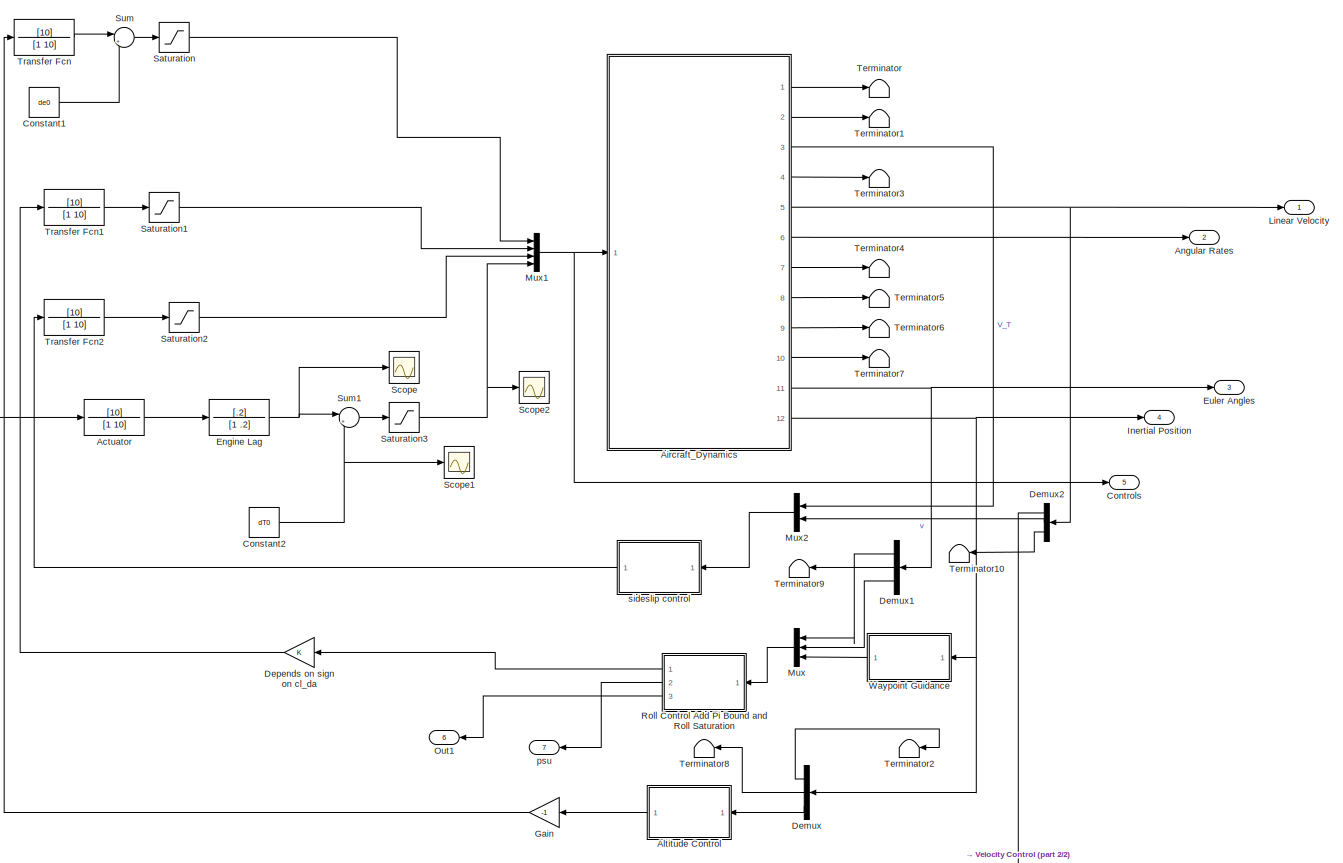
[diagram: root canvas - part 1/2, most of the canvas]
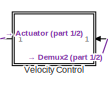
[diagram: root canvas - part 2/2, bottom center region]
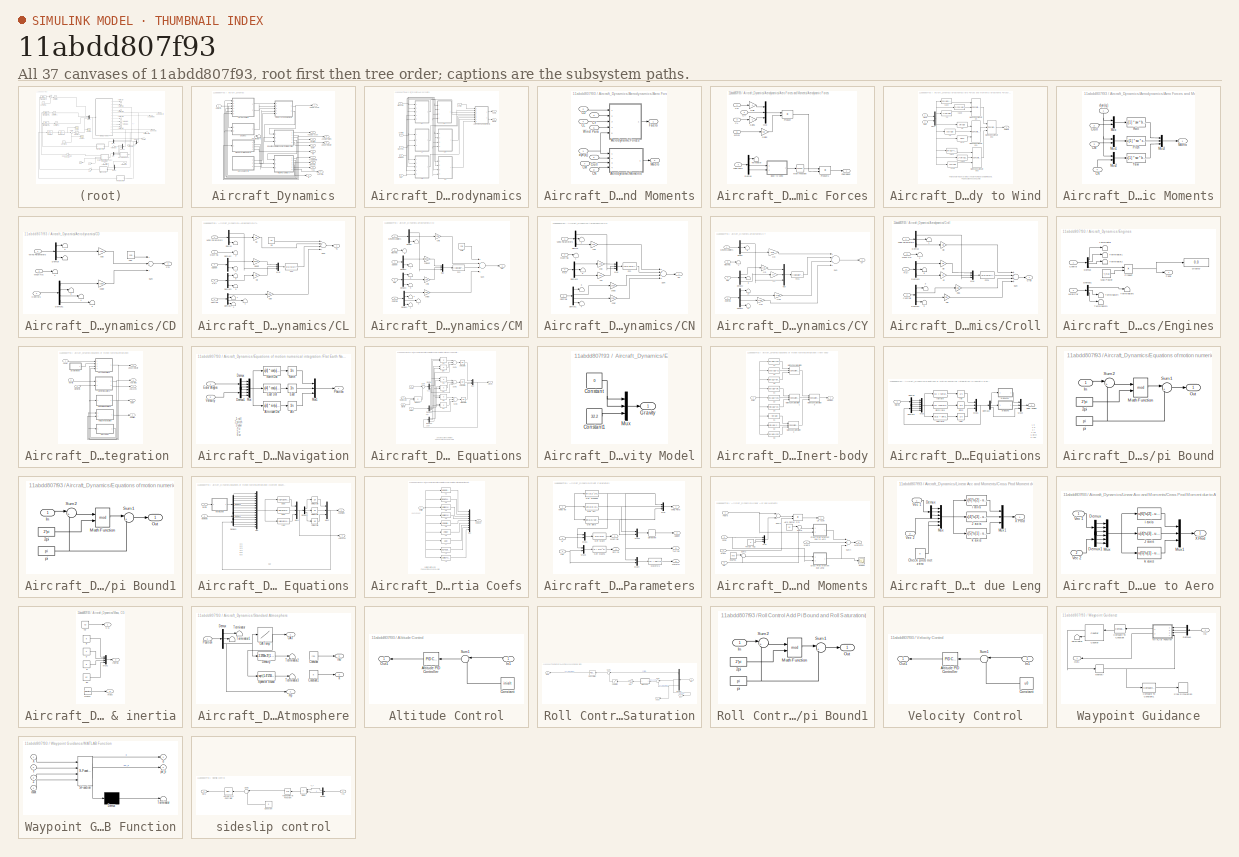
[diagram: thumbnail index - all 37 canvases of the model, root first then tree order]
MODEL slx_11abdd807f93
KIND model
BLOCK [TransferFcn] Actuator
  Denominator = [1 10]
  Numerator = [10]
BLOCK [SubSystem] Aircraft_Dynamics
  FunctionWithSeparateData = off
  MaskHideContents = off
  MinAlgLoopOccurrences = off
  Opaque = off
  Ports = [1, 12]
  PropExecContextOutsideSubsystem = off
  RTWSystemCode = Auto
  RequestExecContextInheritance = off
BLOCK [SubSystem] Aircraft_Dynamics/Aerodynamics
  FunctionWithSeparateData = off
  MaskHideContents = off
  MinAlgLoopOccurrences = off
  Opaque = off
  Ports = [6, 2]
  PropExecContextOutsideSubsystem = off
  RTWSystemCode = Auto
  RequestExecContextInheritance = off
BLOCK [SubSystem] Aircraft_Dynamics/Aerodynamics/Aero Forces and Moments
  FunctionWithSeparateData = off
  MaskHideContents = off
  MinAlgLoopOccurrences = off
  Opaque = off
  Ports = [8, 2]
  PropExecContextOutsideSubsystem = off
  RTWSystemCode = Auto
  RequestExecContextInheritance = off
BLOCK [SubSystem] Aircraft_Dynamics/Aerodynamics/Aero Forces and Moments/Aerodynamic Forces
  FunctionWithSeparateData = off
  MaskHideContents = off
  MinAlgLoopOccurrences = off
  Opaque = off
  Ports = [5, 1]
  PropExecContextOutsideSubsystem = off
  RTWSystemCode = Auto
  RequestExecContextInheritance = off
BLOCK [SubSystem] Aircraft_Dynamics/Aerodynamics/Aero Forces and Moments/Aerodynamic Forces/Body to Wind
  FunctionWithSeparateData = off
  MaskHideContents = off
  MinAlgLoopOccurrences = off
  Opaque = off
  Ports = [2, 1]
  PropExecContextOutsideSubsystem = off
  RTWSystemCode = Auto
  RequestExecContextInheritance = off
BLOCK [Fcn] Aircraft_Dynamics/Aerodynamics/Aero Forces and Moments/Aerodynamic Forces/Body to Wind/-ca sb
  Expr = -1 * cos(u[1]) * sin(u[2])
BLOCK [Fcn] Aircraft_Dynamics/Aerodynamics/Aero Forces and Moments/Aerodynamic Forces/Body to Wind/-sa
  Expr = -1 * sin(u[1])
BLOCK [Fcn] Aircraft_Dynamics/Aerodynamics/Aero Forces and Moments/Aerodynamic Forces/Body to Wind/-sa sb
  Expr = -1 * sin(u[1])  * sin(u[2])
BLOCK [Inport] Aircraft_Dynamics/Aerodynamics/Aero Forces and Moments/Aerodynamic Forces/Body to Wind/Alpha
  IconDisplay = Port number
BLOCK [Inport] Aircraft_Dynamics/Aerodynamics/Aero Forces and Moments/Aerodynamic Forces/Body to Wind/Beta
  IconDisplay = Port number
  Port = 2
BLOCK [Fcn] Aircraft_Dynamics/Aerodynamics/Aero Forces and Moments/Aerodynamic Forces/Body to Wind/Fcn8
  Expr = cos(u[1])
BLOCK [Concatenate] Aircraft_Dynamics/Aerodynamics/Aero Forces and Moments/Aerodynamic Forces/Body to Wind/Matrix Concatenation
  Mode = Multidimensional array
  NumInputs = 3
  Ports = [3, 1]
BLOCK [Concatenate] Aircraft_Dynamics/Aerodynamics/Aero Forces and Moments/Aerodynamic Forces/Body to Wind/Matrix Concatenation1
  Mode = Multidimensional array
  NumInputs = 3
  Ports = [3, 1]
BLOCK [Concatenate] Aircraft_Dynamics/Aerodynamics/Aero Forces and Moments/Aerodynamic Forces/Body to Wind/Matrix Concatenation2
  ConcatenateDimension = 2
  Mode = Multidimensional array
  NumInputs = 3
  Ports = [3, 1]
BLOCK [Concatenate] Aircraft_Dynamics/Aerodynamics/Aero Forces and Moments/Aerodynamic Forces/Body to Wind/Matrix Concatenation3
  Mode = Multidimensional array
  NumInputs = 3
  Ports = [3, 1]
BLOCK [Mux] Aircraft_Dynamics/Aerodynamics/Aero Forces and Moments/Aerodynamic Forces/Body to Wind/Mux1
  DisplayOption = bar
  Inputs = 2
  Ports = [2, 1]
BLOCK [Outport] Aircraft_Dynamics/Aerodynamics/Aero Forces and Moments/Aerodynamic Forces/Body to Wind/Smatrix
  IconDisplay = Port number
BLOCK [Fcn] Aircraft_Dynamics/Aerodynamics/Aero Forces and Moments/Aerodynamic Forces/Body to Wind/ca cb
  Expr = cos(u[1]) *  cos(u[2])
BLOCK [Fcn] Aircraft_Dynamics/Aerodynamics/Aero Forces and Moments/Aerodynamic Forces/Body to Wind/cb
  Expr = cos(u[2])
BLOCK [Fcn] Aircraft_Dynamics/Aerodynamics/Aero Forces and Moments/Aerodynamic Forces/Body to Wind/sa cb
  Expr = sin(u[1]) * cos(u[2])
BLOCK [Fcn] Aircraft_Dynamics/Aerodynamics/Aero Forces and Moments/Aerodynamic Forces/Body to Wind/sb
  Expr = sin(u[2])
BLOCK [Fcn] Aircraft_Dynamics/Aerodynamics/Aero Forces and Moments/Aerodynamic Forces/Body to Wind/zero
  Expr = u[1] * 0
BLOCK [Inport] Aircraft_Dynamics/Aerodynamics/Aero Forces and Moments/Aerodynamic Forces/CD
  IconDisplay = Port number
BLOCK [Inport] Aircraft_Dynamics/Aerodynamics/Aero Forces and Moments/Aerodynamic Forces/CL
  IconDisplay = Port number
  Port = 3
BLOCK [Inport] Aircraft_Dynamics/Aerodynamics/Aero Forces and Moments/Aerodynamic Forces/CY
  IconDisplay = Port number
  Port = 2
BLOCK [Demux] Aircraft_Dynamics/Aerodynamics/Aero Forces and Moments/Aerodynamic Forces/Demux
  Outputs = 3
  Ports = [1, 3]
BLOCK [Outport] Aircraft_Dynamics/Aerodynamics/Aero Forces and Moments/Aerodynamic Forces/FaeroBody
  IconDisplay = Port number
BLOCK [Gain] Aircraft_Dynamics/Aerodynamics/Aero Forces and Moments/Aerodynamic Forces/Gain
  Gain = -1
BLOCK [Gain] Aircraft_Dynamics/Aerodynamics/Aero Forces and Moments/Aerodynamic Forces/Gain1
  Gain = -1
BLOCK [Gain] Aircraft_Dynamics/Aerodynamics/Aero Forces and Moments/Aerodynamic Forces/Gain2
  Gain = sw
BLOCK [Math] Aircraft_Dynamics/Aerodynamics/Aero Forces and Moments/Aerodynamic Forces/Math Function
  Operator = transpose
  Ports = [1, 1]
BLOCK [Mux] Aircraft_Dynamics/Aerodynamics/Aero Forces and Moments/Aerodynamic Forces/Mux
  DisplayOption = bar
  Inputs = 3
  Ports = [3, 1]
BLOCK [Product] Aircraft_Dynamics/Aerodynamics/Aero Forces and Moments/Aerodynamic Forces/Product
  InputSameDT = off
  Ports = [2, 1]
  RndMeth = Floor
BLOCK [Product] Aircraft_Dynamics/Aerodynamics/Aero Forces and Moments/Aerodynamic Forces/Product1
  InputSameDT = off
  Multiplication = Matrix(*)
  Ports = [2, 1]
  RndMeth = Floor
BLOCK [Terminator] Aircraft_Dynamics/Aerodynamics/Aero Forces and Moments/Aerodynamic Forces/Terminator
BLOCK [Inport] Aircraft_Dynamics/Aerodynamics/Aero Forces and Moments/Aerodynamic Forces/Wind Para
  IconDisplay = Port number
  Port = 4
BLOCK [Inport] Aircraft_Dynamics/Aerodynamics/Aero Forces and Moments/Aerodynamic Forces/dyn(q)
  IconDisplay = Port number
  Port = 5
BLOCK [SubSystem] Aircraft_Dynamics/Aerodynamics/Aero Forces and Moments/Aerodynamic Moments
  FunctionWithSeparateData = off
  MaskHideContents = off
  MinAlgLoopOccurrences = off
  Opaque = off
  Ports = [4, 1]
  PropExecContextOutsideSubsystem = off
  RTWSystemCode = Auto
  RequestExecContextInheritance = off
BLOCK [Inport] Aircraft_Dynamics/Aerodynamics/Aero Forces and Moments/Aerodynamic Moments/CM
  IconDisplay = Port number
  Port = 3
BLOCK [Inport] Aircraft_Dynamics/Aerodynamics/Aero Forces and Moments/Aerodynamic Moments/CN
  IconDisplay = Port number
  Port = 4
BLOCK [Inport] Aircraft_Dynamics/Aerodynamics/Aero Forces and Moments/Aerodynamic Moments/Croll
  IconDisplay = Port number
  Port = 2
BLOCK [Outport] Aircraft_Dynamics/Aerodynamics/Aero Forces and Moments/Aerodynamic Moments/Maero
  IconDisplay = Port number
BLOCK [Mux] Aircraft_Dynamics/Aerodynamics/Aero Forces and Moments/Aerodynamic Moments/Mux
  DisplayOption = bar
  Inputs = 2
  Ports = [2, 1]
BLOCK [Mux] Aircraft_Dynamics/Aerodynamics/Aero Forces and Moments/Aerodynamic Moments/Mux1
  DisplayOption = bar
  Inputs = 2
  Ports = [2, 1]
BLOCK [Mux] Aircraft_Dynamics/Aerodynamics/Aero Forces and Moments/Aerodynamic Moments/Mux2
  DisplayOption = bar
  Inputs = 2
  Ports = [2, 1]
BLOCK [Mux] Aircraft_Dynamics/Aerodynamics/Aero Forces and Moments/Aerodynamic Moments/Mux3
  DisplayOption = bar
  Inputs = 3
  Ports = [3, 1]
BLOCK [Fcn] Aircraft_Dynamics/Aerodynamics/Aero Forces and Moments/Aerodynamic Moments/Pitch
  Expr = u[1] * sw * cbar * u[2]
BLOCK [Fcn] Aircraft_Dynamics/Aerodynamics/Aero Forces and Moments/Aerodynamic Moments/Roll
  Expr = u[1] * sw * b * u[2]
BLOCK [Fcn] Aircraft_Dynamics/Aerodynamics/Aero Forces and Moments/Aerodynamic Moments/Yaw
  Expr = u[1] * sw * b * u[2]
BLOCK [Inport] Aircraft_Dynamics/Aerodynamics/Aero Forces and Moments/Aerodynamic Moments/dyn(q)
  IconDisplay = Port number
BLOCK [Inport] Aircraft_Dynamics/Aerodynamics/Aero Forces and Moments/CD
  IconDisplay = Port number
  Port = 2
BLOCK [Inport] Aircraft_Dynamics/Aerodynamics/Aero Forces and Moments/CL
  IconDisplay = Port number
  Port = 4
BLOCK [Inport] Aircraft_Dynamics/Aerodynamics/Aero Forces and Moments/CM
  IconDisplay = Port number
  Port = 7
BLOCK [Inport] Aircraft_Dynamics/Aerodynamics/Aero Forces and Moments/CN
  IconDisplay = Port number
  Port = 8
BLOCK [Inport] Aircraft_Dynamics/Aerodynamics/Aero Forces and Moments/CY
  IconDisplay = Port number
  Port = 3
BLOCK [Inport] Aircraft_Dynamics/Aerodynamics/Aero Forces and Moments/Croll
  IconDisplay = Port number
  Port = 6
BLOCK [Outport] Aircraft_Dynamics/Aerodynamics/Aero Forces and Moments/Faero
  IconDisplay = Port number
BLOCK [Outport] Aircraft_Dynamics/Aerodynamics/Aero Forces and Moments/Maero
  IconDisplay = Port number
  Port = 2
BLOCK [Inport] Aircraft_Dynamics/Aerodynamics/Aero Forces and Moments/Wind Para
  IconDisplay = Port number
  Port = 5
BLOCK [Inport] Aircraft_Dynamics/Aerodynamics/Aero Forces and Moments/dyn(q)
  IconDisplay = Port number
BLOCK [SubSystem] Aircraft_Dynamics/Aerodynamics/CD
  FunctionWithSeparateData = off
  MaskHideContents = off
  MinAlgLoopOccurrences = off
  Opaque = off
  Ports = [3, 1]
  PropExecContextOutsideSubsystem = off
  RTWSystemCode = Auto
  RequestExecContextInheritance = off
BLOCK [Terminator] Aircraft_Dynamics/Aerodynamics/CD/   
BLOCK [Terminator] Aircraft_Dynamics/Aerodynamics/CD/   1
BLOCK [Terminator] Aircraft_Dynamics/Aerodynamics/CD/   2
BLOCK [Terminator] Aircraft_Dynamics/Aerodynamics/CD/   3
BLOCK [Terminator] Aircraft_Dynamics/Aerodynamics/CD/   4
BLOCK [Terminator] Aircraft_Dynamics/Aerodynamics/CD/   5
BLOCK [Outport] Aircraft_Dynamics/Aerodynamics/CD/CD
  IconDisplay = Port number
BLOCK [Inport] Aircraft_Dynamics/Aerodynamics/CD/Controls
  IconDisplay = Port number
  Port = 2
BLOCK [Demux] Aircraft_Dynamics/Aerodynamics/CD/Demux
  Outputs = 3
  Ports = [1, 3]
BLOCK [Demux] Aircraft_Dynamics/Aerodynamics/CD/Demux1
  Ports = [1, 4]
BLOCK [Inport] Aircraft_Dynamics/Aerodynamics/CD/Mach No.
  IconDisplay = Port number
  Port = 3
BLOCK [Sum] Aircraft_Dynamics/Aerodynamics/CD/Sum
  InputSameDT = off
  Inputs = +++
  OutDataTypeStr = Inherit: Inherit via internal rule
  Ports = [3, 1]
BLOCK [Inport] Aircraft_Dynamics/Aerodynamics/CD/Wind Parameters
  IconDisplay = Port number
BLOCK [Gain] Aircraft_Dynamics/Aerodynamics/CD/cda
  Gain = cda
BLOCK [Gain] Aircraft_Dynamics/Aerodynamics/CD/cdde
  Gain = cdde
BLOCK [Constant] Aircraft_Dynamics/Aerodynamics/CD/cdo
  Value = cdo
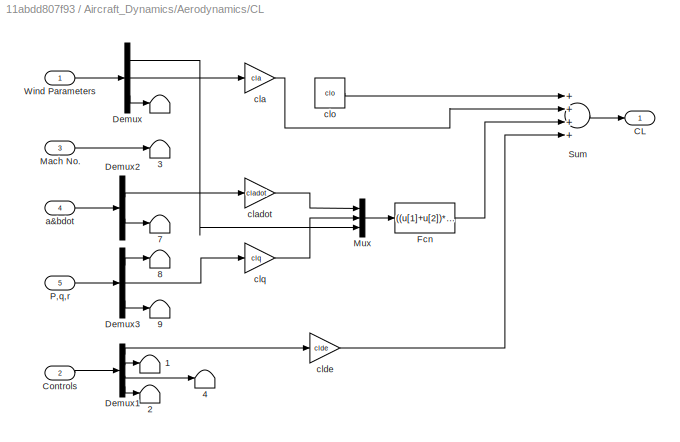
BLOCK [SubSystem] Aircraft_Dynamics/Aerodynamics/CL
  FunctionWithSeparateData = off
  MaskHideContents = off
  MinAlgLoopOccurrences = off
  Opaque = off
  Ports = [5, 1]
  PropExecContextOutsideSubsystem = off
  RTWSystemCode = Auto
  RequestExecContextInheritance = off
BLOCK [Terminator] Aircraft_Dynamics/Aerodynamics/CL/   
BLOCK [Terminator] Aircraft_Dynamics/Aerodynamics/CL/   1
BLOCK [Terminator] Aircraft_Dynamics/Aerodynamics/CL/   2
BLOCK [Terminator] Aircraft_Dynamics/Aerodynamics/CL/   3
BLOCK [Terminator] Aircraft_Dynamics/Aerodynamics/CL/   4
BLOCK [Terminator] Aircraft_Dynamics/Aerodynamics/CL/   7
BLOCK [Terminator] Aircraft_Dynamics/Aerodynamics/CL/   8
BLOCK [Terminator] Aircraft_Dynamics/Aerodynamics/CL/   9
BLOCK [Outport] Aircraft_Dynamics/Aerodynamics/CL/CL
  IconDisplay = Port number
BLOCK [Inport] Aircraft_Dynamics/Aerodynamics/CL/Controls
  IconDisplay = Port number
  Port = 2
BLOCK [Demux] Aircraft_Dynamics/Aerodynamics/CL/Demux
  Outputs = 3
  Ports = [1, 3]
BLOCK [Demux] Aircraft_Dynamics/Aerodynamics/CL/Demux1
  Ports = [1, 4]
BLOCK [Demux] Aircraft_Dynamics/Aerodynamics/CL/Demux2
  Outputs = 2
  Ports = [1, 2]
BLOCK [Demux] Aircraft_Dynamics/Aerodynamics/CL/Demux3
  Outputs = 3
  Ports = [1, 3]
BLOCK [Fcn] Aircraft_Dynamics/Aerodynamics/CL/Fcn
  Expr = ((u[1]+u[2])*cbar)/(2*u[3])
BLOCK [Inport] Aircraft_Dynamics/Aerodynamics/CL/Mach No.
  IconDisplay = Port number
  Port = 3
BLOCK [Mux] Aircraft_Dynamics/Aerodynamics/CL/Mux
  DisplayOption = bar
  Inputs = 3
  Ports = [3, 1]
BLOCK [Inport] Aircraft_Dynamics/Aerodynamics/CL/P,q,r
  IconDisplay = Port number
  Port = 5
BLOCK [Sum] Aircraft_Dynamics/Aerodynamics/CL/Sum
  InputSameDT = off
  Inputs = ++++
  OutDataTypeStr = Inherit: Inherit via internal rule
  Ports = [4, 1]
BLOCK [Inport] Aircraft_Dynamics/Aerodynamics/CL/Wind Parameters
  IconDisplay = Port number
BLOCK [Inport] Aircraft_Dynamics/Aerodynamics/CL/a&bdot
  IconDisplay = Port number
  Port = 4
BLOCK [Gain] Aircraft_Dynamics/Aerodynamics/CL/cla
  Gain = cla
BLOCK [Gain] Aircraft_Dynamics/Aerodynamics/CL/cladot
  Gain = cladot
BLOCK [Gain] Aircraft_Dynamics/Aerodynamics/CL/clde
  Gain = clde
BLOCK [Constant] Aircraft_Dynamics/Aerodynamics/CL/clo
  Value = clo
BLOCK [Gain] Aircraft_Dynamics/Aerodynamics/CL/clq
  Gain = clq
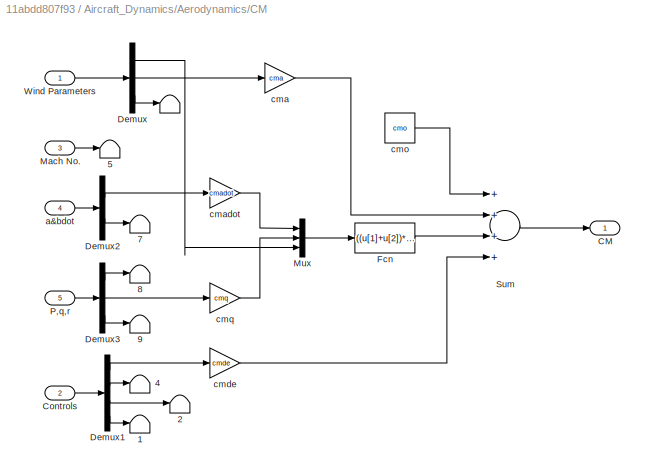
BLOCK [SubSystem] Aircraft_Dynamics/Aerodynamics/CM
  FunctionWithSeparateData = off
  MaskHideContents = off
  MinAlgLoopOccurrences = off
  Opaque = off
  Ports = [5, 1]
  PropExecContextOutsideSubsystem = off
  RTWSystemCode = Auto
  RequestExecContextInheritance = off
BLOCK [Terminator] Aircraft_Dynamics/Aerodynamics/CM/   
BLOCK [Terminator] Aircraft_Dynamics/Aerodynamics/CM/   1
BLOCK [Terminator] Aircraft_Dynamics/Aerodynamics/CM/   2
BLOCK [Terminator] Aircraft_Dynamics/Aerodynamics/CM/   4
BLOCK [Terminator] Aircraft_Dynamics/Aerodynamics/CM/   5
BLOCK [Terminator] Aircraft_Dynamics/Aerodynamics/CM/   7
BLOCK [Terminator] Aircraft_Dynamics/Aerodynamics/CM/   8
BLOCK [Terminator] Aircraft_Dynamics/Aerodynamics/CM/   9
BLOCK [Outport] Aircraft_Dynamics/Aerodynamics/CM/CM
  IconDisplay = Port number
BLOCK [Inport] Aircraft_Dynamics/Aerodynamics/CM/Controls
  IconDisplay = Port number
  Port = 2
BLOCK [Demux] Aircraft_Dynamics/Aerodynamics/CM/Demux
  Outputs = 3
  Ports = [1, 3]
BLOCK [Demux] Aircraft_Dynamics/Aerodynamics/CM/Demux1
  Ports = [1, 4]
BLOCK [Demux] Aircraft_Dynamics/Aerodynamics/CM/Demux2
  Outputs = 2
  Ports = [1, 2]
BLOCK [Demux] Aircraft_Dynamics/Aerodynamics/CM/Demux3
  Outputs = 3
  Ports = [1, 3]
BLOCK [Fcn] Aircraft_Dynamics/Aerodynamics/CM/Fcn
  Expr = ((u[1]+u[2])*cbar)/(2*u[3])
BLOCK [Inport] Aircraft_Dynamics/Aerodynamics/CM/Mach No.
  IconDisplay = Port number
  Port = 3
BLOCK [Mux] Aircraft_Dynamics/Aerodynamics/CM/Mux
  DisplayOption = bar
  Inputs = 3
  Ports = [3, 1]
BLOCK [Inport] Aircraft_Dynamics/Aerodynamics/CM/P,q,r
  IconDisplay = Port number
  Port = 5
BLOCK [Sum] Aircraft_Dynamics/Aerodynamics/CM/Sum
  InputSameDT = off
  Inputs = ++++
  OutDataTypeStr = Inherit: Inherit via internal rule
  Ports = [4, 1]
BLOCK [Inport] Aircraft_Dynamics/Aerodynamics/CM/Wind Parameters
  IconDisplay = Port number
BLOCK [Inport] Aircraft_Dynamics/Aerodynamics/CM/a&bdot
  IconDisplay = Port number
  Port = 4
BLOCK [Gain] Aircraft_Dynamics/Aerodynamics/CM/cma
  Gain = cma
BLOCK [Gain] Aircraft_Dynamics/Aerodynamics/CM/cmadot
  Gain = cmadot
BLOCK [Gain] Aircraft_Dynamics/Aerodynamics/CM/cmde
  Gain = cmde
BLOCK [Constant] Aircraft_Dynamics/Aerodynamics/CM/cmo
  Value = cmo
BLOCK [Gain] Aircraft_Dynamics/Aerodynamics/CM/cmq
  Gain = cmq
BLOCK [SubSystem] Aircraft_Dynamics/Aerodynamics/CN
  FunctionWithSeparateData = off
  MaskHideContents = off
  MinAlgLoopOccurrences = off
  Opaque = off
  Ports = [4, 1]
  PropExecContextOutsideSubsystem = off
  RTWSystemCode = Auto
  RequestExecContextInheritance = off
BLOCK [Terminator] Aircraft_Dynamics/Aerodynamics/CN/   1
BLOCK [Terminator] Aircraft_Dynamics/Aerodynamics/CN/   2
BLOCK [Terminator] Aircraft_Dynamics/Aerodynamics/CN/   3
BLOCK [Terminator] Aircraft_Dynamics/Aerodynamics/CN/   4
BLOCK [Terminator] Aircraft_Dynamics/Aerodynamics/CN/   8
BLOCK [Outport] Aircraft_Dynamics/Aerodynamics/CN/CN
  IconDisplay = Port number
BLOCK [Inport] Aircraft_Dynamics/Aerodynamics/CN/Controls
  IconDisplay = Port number
  Port = 2
BLOCK [Demux] Aircraft_Dynamics/Aerodynamics/CN/Demux
  Outputs = 3
  Ports = [1, 3]
BLOCK [Demux] Aircraft_Dynamics/Aerodynamics/CN/Demux1
  Ports = [1, 4]
BLOCK [Demux] Aircraft_Dynamics/Aerodynamics/CN/Demux3
  Outputs = 3
  Ports = [1, 3]
BLOCK [Fcn] Aircraft_Dynamics/Aerodynamics/CN/Fcn
  Expr = ((u[1]+u[2])*b)/(2*u[3])
BLOCK [Inport] Aircraft_Dynamics/Aerodynamics/CN/Mach No.
  IconDisplay = Port number
  Port = 3
BLOCK [Mux] Aircraft_Dynamics/Aerodynamics/CN/Mux
  DisplayOption = bar
  Inputs = 3
  Ports = [3, 1]
BLOCK [Inport] Aircraft_Dynamics/Aerodynamics/CN/P,q,r
  IconDisplay = Port number
  Port = 4
BLOCK [Sum] Aircraft_Dynamics/Aerodynamics/CN/Sum
  InputSameDT = off
  Inputs = ++++
  OutDataTypeStr = Inherit: Inherit via internal rule
  Ports = [4, 1]
BLOCK [Inport] Aircraft_Dynamics/Aerodynamics/CN/Wind Parameters
  IconDisplay = Port number
BLOCK [Gain] Aircraft_Dynamics/Aerodynamics/CN/cnb
  Gain = cnb
BLOCK [Gain] Aircraft_Dynamics/Aerodynamics/CN/cnda
  Gain = cnda
BLOCK [Gain] Aircraft_Dynamics/Aerodynamics/CN/cndr
  Gain = cndr
BLOCK [Gain] Aircraft_Dynamics/Aerodynamics/CN/cnp
  Gain = cnp
BLOCK [Gain] Aircraft_Dynamics/Aerodynamics/CN/cnr
  Gain = cnr
BLOCK [SubSystem] Aircraft_Dynamics/Aerodynamics/CY
  FunctionWithSeparateData = off
  MaskHideContents = off
  MinAlgLoopOccurrences = off
  Opaque = off
  Ports = [4, 1]
  PropExecContextOutsideSubsystem = off
  RTWSystemCode = Auto
  RequestExecContextInheritance = off
BLOCK [Terminator] Aircraft_Dynamics/Aerodynamics/CY/   10
BLOCK [Terminator] Aircraft_Dynamics/Aerodynamics/CY/   11
BLOCK [Terminator] Aircraft_Dynamics/Aerodynamics/CY/   2
BLOCK [Terminator] Aircraft_Dynamics/Aerodynamics/CY/   8
BLOCK [Terminator] Aircraft_Dynamics/Aerodynamics/CY/   9
BLOCK [Outport] Aircraft_Dynamics/Aerodynamics/CY/CY
  IconDisplay = Port number
BLOCK [Inport] Aircraft_Dynamics/Aerodynamics/CY/Controls
  IconDisplay = Port number
  Port = 2
BLOCK [Demux] Aircraft_Dynamics/Aerodynamics/CY/Demux
  Outputs = 3
  Ports = [1, 3]
BLOCK [Demux] Aircraft_Dynamics/Aerodynamics/CY/Demux1
  Ports = [1, 4]
BLOCK [Demux] Aircraft_Dynamics/Aerodynamics/CY/Demux2
  Outputs = 3
  Ports = [1, 3]
BLOCK [Fcn] Aircraft_Dynamics/Aerodynamics/CY/Fcn1
  Expr = ((u[1]+u[2])*b)/(2*u[3])
BLOCK [Inport] Aircraft_Dynamics/Aerodynamics/CY/Mach No.
  IconDisplay = Port number
  Port = 3
BLOCK [Mux] Aircraft_Dynamics/Aerodynamics/CY/Mux
  DisplayOption = bar
  Inputs = 3
  Ports = [3, 1]
BLOCK [Inport] Aircraft_Dynamics/Aerodynamics/CY/P,q,r
  IconDisplay = Port number
  Port = 4
BLOCK [Sum] Aircraft_Dynamics/Aerodynamics/CY/Sum
  InputSameDT = off
  Inputs = ++++
  OutDataTypeStr = Inherit: Inherit via internal rule
  Ports = [4, 1]
BLOCK [Inport] Aircraft_Dynamics/Aerodynamics/CY/Wind Parameters
  IconDisplay = Port number
BLOCK [Gain] Aircraft_Dynamics/Aerodynamics/CY/cyb
  Gain = cyb
BLOCK [Gain] Aircraft_Dynamics/Aerodynamics/CY/cyda
  Gain = cyda
BLOCK [Gain] Aircraft_Dynamics/Aerodynamics/CY/cydr
  Gain = cydr
BLOCK [Gain] Aircraft_Dynamics/Aerodynamics/CY/cyp
  Gain = cyp
BLOCK [Gain] Aircraft_Dynamics/Aerodynamics/CY/cyr
  Gain = cyr
BLOCK [Inport] Aircraft_Dynamics/Aerodynamics/Controls
  IconDisplay = Port number
  Port = 3
BLOCK [SubSystem] Aircraft_Dynamics/Aerodynamics/Croll
  FunctionWithSeparateData = off
  MaskHideContents = off
  MinAlgLoopOccurrences = off
  Opaque = off
  Ports = [4, 1]
  PropExecContextOutsideSubsystem = off
  RTWSystemCode = Auto
  RequestExecContextInheritance = off
BLOCK [Terminator] Aircraft_Dynamics/Aerodynamics/Croll/   1
BLOCK [Terminator] Aircraft_Dynamics/Aerodynamics/Croll/   2
BLOCK [Terminator] Aircraft_Dynamics/Aerodynamics/Croll/   3
BLOCK [Terminator] Aircraft_Dynamics/Aerodynamics/Croll/   6
BLOCK [Terminator] Aircraft_Dynamics/Aerodynamics/Croll/   8
BLOCK [Inport] Aircraft_Dynamics/Aerodynamics/Croll/Controls
  IconDisplay = Port number
  Port = 2
BLOCK [Outport] Aircraft_Dynamics/Aerodynamics/Croll/Croll
  IconDisplay = Port number
BLOCK [Demux] Aircraft_Dynamics/Aerodynamics/Croll/Demux
  Outputs = 3
  Ports = [1, 3]
BLOCK [Demux] Aircraft_Dynamics/Aerodynamics/Croll/Demux1
  Ports = [1, 4]
BLOCK [Demux] Aircraft_Dynamics/Aerodynamics/Croll/Demux3
  Outputs = 3
  Ports = [1, 3]
BLOCK [Fcn] Aircraft_Dynamics/Aerodynamics/Croll/Fcn1
  Expr = ((u[1]+u[2])*b)/(2*u[3])
BLOCK [Inport] Aircraft_Dynamics/Aerodynamics/Croll/Mach No.
  IconDisplay = Port number
  Port = 3
BLOCK [Mux] Aircraft_Dynamics/Aerodynamics/Croll/Mux
  DisplayOption = bar
  Inputs = 3
  Ports = [3, 1]
BLOCK [Inport] Aircraft_Dynamics/Aerodynamics/Croll/P,q,r
  IconDisplay = Port number
  Port = 4
BLOCK [Sum] Aircraft_Dynamics/Aerodynamics/Croll/Sum
  InputSameDT = off
  Inputs = ++++
  OutDataTypeStr = Inherit: Inherit via internal rule
  Ports = [4, 1]
BLOCK [Inport] Aircraft_Dynamics/Aerodynamics/Croll/Wind Parameters
  IconDisplay = Port number
BLOCK [Gain] Aircraft_Dynamics/Aerodynamics/Croll/clb
  Gain = clb
BLOCK [Gain] Aircraft_Dynamics/Aerodynamics/Croll/clda
  Gain = clda
BLOCK [Gain] Aircraft_Dynamics/Aerodynamics/Croll/cldr
  Gain = cldr
BLOCK [Gain] Aircraft_Dynamics/Aerodynamics/Croll/clp
  Gain = clp
BLOCK [Gain] Aircraft_Dynamics/Aerodynamics/Croll/clr
  Gain = clr
BLOCK [Outport] Aircraft_Dynamics/Aerodynamics/Faero
  IconDisplay = Port number
BLOCK [Inport] Aircraft_Dynamics/Aerodynamics/Mach No.
  IconDisplay = Port number
  Port = 4
BLOCK [Outport] Aircraft_Dynamics/Aerodynamics/Maero
  IconDisplay = Port number
  Port = 2
BLOCK [Inport] Aircraft_Dynamics/Aerodynamics/Wind Para
  IconDisplay = Port number
BLOCK [Inport] Aircraft_Dynamics/Aerodynamics/a&bdot
  IconDisplay = Port number
  Port = 5
BLOCK [Inport] Aircraft_Dynamics/Aerodynamics/dyn(q)
  IconDisplay = Port number
  Port = 2
BLOCK [Inport] Aircraft_Dynamics/Aerodynamics/p,q,r
  IconDisplay = Port number
  Port = 6
BLOCK [Outport] Aircraft_Dynamics/Angular Accel
  IconDisplay = Port number
BLOCK [Outport] Aircraft_Dynamics/Angular Rates
  IconDisplay = Port number
  Port = 6
BLOCK [Outport] Aircraft_Dynamics/CAS (Kts)
  IconDisplay = Port number
  Port = 10
BLOCK [Inport] Aircraft_Dynamics/Control
  IconDisplay = Port number
BLOCK [SubSystem] Aircraft_Dynamics/Engines
  FunctionWithSeparateData = off
  MaskHideContents = off
  MinAlgLoopOccurrences = off
  Opaque = off
  Ports = [2, 1]
  PropExecContextOutsideSubsystem = off
  RTWSystemCode = Auto
  RequestExecContextInheritance = off
BLOCK [Inport] Aircraft_Dynamics/Engines/Control
  IconDisplay = Port number
BLOCK [Demux] Aircraft_Dynamics/Engines/Demux
  DisplayOption = bar
  Ports = [1, 4]
BLOCK [Demux] Aircraft_Dynamics/Engines/Demux1
  DisplayOption = bar
  Outputs = 3
  Ports = [1, 3]
BLOCK [Display] Aircraft_Dynamics/Engines/Display
  Decimation = 1
  Ports = [1]
BLOCK [Outport] Aircraft_Dynamics/Engines/Feng
  IconDisplay = Port number
BLOCK [Constant] Aircraft_Dynamics/Engines/Max Power
  Value = T_max
BLOCK [Product] Aircraft_Dynamics/Engines/Product
  InputSameDT = off
  OutDataTypeStr = Inherit: Inherit via internal rule
  Ports = [2, 1]
  SaturateOnIntegerOverflow = off
BLOCK [Terminator] Aircraft_Dynamics/Engines/Terminator
BLOCK [Terminator] Aircraft_Dynamics/Engines/Terminator1
BLOCK [Terminator] Aircraft_Dynamics/Engines/Terminator2
BLOCK [Terminator] Aircraft_Dynamics/Engines/Terminator3
BLOCK [Terminator] Aircraft_Dynamics/Engines/Terminator4
BLOCK [Terminator] Aircraft_Dynamics/Engines/Terminator5
BLOCK [Inport] Aircraft_Dynamics/Engines/Wind Par
  IconDisplay = Port number
  Port = 2
BLOCK [SubSystem] Aircraft_Dynamics/Equations of motion numerical integration 
  FunctionWithSeparateData = off
  MaskHideContents = off
  MinAlgLoopOccurrences = off
  Opaque = off
  Ports = [3, 5]
  PropExecContextOutsideSubsystem = off
  RTWSystemCode = Auto
  RequestExecContextInheritance = off
BLOCK [Inport] Aircraft_Dynamics/Equations of motion numerical integration /Accel
  IconDisplay = Port number
BLOCK [Outport] Aircraft_Dynamics/Equations of motion numerical integration /Ang Accel
  IconDisplay = Port number
BLOCK [Outport] Aircraft_Dynamics/Equations of motion numerical integration /Ang rates
  IconDisplay = Port number
  Port = 3
BLOCK [Outport] Aircraft_Dynamics/Equations of motion numerical integration /Euler
  IconDisplay = Port number
  Port = 5
BLOCK [SubSystem] Aircraft_Dynamics/Equations of motion numerical integration /Flat Earth Navigation
  FunctionWithSeparateData = off
  MaskHideContents = off
  MinAlgLoopOccurrences = off
  Opaque = off
  Ports = [2, 1]
  PropExecContextOutsideSubsystem = off
  RTWSystemCode = Auto
  RequestExecContextInheritance = off
BLOCK [Integrator] Aircraft_Dynamics/Equations of motion numerical integration /Flat Earth Navigation/Alt
  InitialCondition = initalt
  Ports = [1, 1]
BLOCK [Fcn] Aircraft_Dynamics/Equations of motion numerical integration /Flat Earth Navigation/Alttitude Dot
  Expr = u[4] * sin(u[2]) - u[5] * sin(u[1]) * cos(u[2]) - u[6] * cos(u[1]) * cos(u[2])
BLOCK [Demux] Aircraft_Dynamics/Equations of motion numerical integration /Flat Earth Navigation/Demux
  Outputs = 3
  Ports = [1, 3]
BLOCK [Demux] Aircraft_Dynamics/Equations of motion numerical integration /Flat Earth Navigation/Demux1
  Outputs = 3
  Ports = [1, 3]
BLOCK [Integrator] Aircraft_Dynamics/Equations of motion numerical integration /Flat Earth Navigation/East
  InitialCondition = initeast
  Ports = [1, 1]
BLOCK [Fcn] Aircraft_Dynamics/Equations of motion numerical integration /Flat Earth Navigation/East Dot
  Expr = u[4] * cos(u[2])* sin(u[3]) + u[5] * (cos(u[1])*cos(u[3]) + sin(u[1])*sin(u[2])*sin(u[3])) + u[6] * (-sin(u[1])*cos(u[3])+cos(u[1])*sin(u[2])*sin(u[3]))
BLOCK [Inport] Aircraft_Dynamics/Equations of motion numerical integration /Flat Earth Navigation/Euler Angles
  IconDisplay = Port number
BLOCK [Mux] Aircraft_Dynamics/Equations of motion numerical integration /Flat Earth Navigation/Mux
  DisplayOption = bar
  Inputs = 6
  Ports = [6, 1]
BLOCK [Mux] Aircraft_Dynamics/Equations of motion numerical integration /Flat Earth Navigation/Mux1
  DisplayOption = bar
  Inputs = 3
  Ports = [3, 1]
BLOCK [Integrator] Aircraft_Dynamics/Equations of motion numerical integration /Flat Earth Navigation/North
  InitialCondition = initnorth
  Ports = [1, 1]
BLOCK [Fcn] Aircraft_Dynamics/Equations of motion numerical integration /Flat Earth Navigation/North Dot
  Expr = u[4] * cos(u[2]) * cos(u[3]) + u[5]*(-cos(u[1])*sin(u[3])+sin(u[1])*sin(u[2])*sin(u[3]))+u[6]*(sin(u[1])*sin(u[3])+cos(u[1])*sin(u[2])*cos(u[3]))
BLOCK [Outport] Aircraft_Dynamics/Equations of motion numerical integration /Flat Earth Navigation/Position
  IconDisplay = Port number
BLOCK [Inport] Aircraft_Dynamics/Equations of motion numerical integration /Flat Earth Navigation/Velocity
  IconDisplay = Port number
  Port = 2
BLOCK [SubSystem] Aircraft_Dynamics/Equations of motion numerical integration /Force Equations
  FunctionWithSeparateData = off
  MaskHideContents = off
  MinAlgLoopOccurrences = off
  Opaque = off
  Ports = [4, 1]
  PropExecContextOutsideSubsystem = off
  RTWSystemCode = Auto
  RequestExecContextInheritance = off
BLOCK [Inport] Aircraft_Dynamics/Equations of motion numerical integration /Force Equations/Accel
  IconDisplay = Port number
BLOCK [Demux] Aircraft_Dynamics/Equations of motion numerical integration /Force Equations/Demux
  Outputs = 3
  Ports = [1, 3]
BLOCK [Demux] Aircraft_Dynamics/Equations of motion numerical integration /Force Equations/Demux1
  Outputs = 3
  Ports = [1, 3]
BLOCK [Demux] Aircraft_Dynamics/Equations of motion numerical integration /Force Equations/Demux2
  Outputs = 3
  Ports = [1, 3]
BLOCK [Inport] Aircraft_Dynamics/Equations of motion numerical integration /Force Equations/Gravity
  IconDisplay = Port number
  Port = 2
BLOCK [Outport] Aircraft_Dynamics/Equations of motion numerical integration /Force Equations/Lin Vel
  IconDisplay = Port number
BLOCK [Mux] Aircraft_Dynamics/Equations of motion numerical integration /Force Equations/Mux
  DisplayOption = bar
  Inputs = 3
  Ports = [3, 1]
BLOCK [Inport] Aircraft_Dynamics/Equations of motion numerical integration /Force Equations/NEDtoABC
  IconDisplay = Port number
  Port = 4
BLOCK [Product] Aircraft_Dynamics/Equations of motion numerical integration /Force Equations/PV
  InputSameDT = off
  Ports = [2, 1]
  RndMeth = Floor
BLOCK [Product] Aircraft_Dynamics/Equations of motion numerical integration /Force Equations/PW
  InputSameDT = off
  Ports = [2, 1]
  RndMeth = Floor
BLOCK [Product] Aircraft_Dynamics/Equations of motion numerical integration /Force Equations/Product
  InputSameDT = off
  Multiplication = Matrix(*)
  Ports = [2, 1]
  RndMeth = Floor
BLOCK [Product] Aircraft_Dynamics/Equations of motion numerical integration /Force Equations/QU
  InputSameDT = off
  Ports = [2, 1]
  RndMeth = Floor
BLOCK [Product] Aircraft_Dynamics/Equations of motion numerical integration /Force Equations/QW
  InputSameDT = off
  Ports = [2, 1]
  RndMeth = Floor
BLOCK [Product] Aircraft_Dynamics/Equations of motion numerical integration /Force Equations/RU
  InputSameDT = off
  Ports = [2, 1]
  RndMeth = Floor
BLOCK [Product] Aircraft_Dynamics/Equations of motion numerical integration /Force Equations/RV
  InputSameDT = off
  Ports = [2, 1]
  RndMeth = Floor
BLOCK [Inport] Aircraft_Dynamics/Equations of motion numerical integration /Force Equations/Rates
  IconDisplay = Port number
  Port = 3
BLOCK [Sum] Aircraft_Dynamics/Equations of motion numerical integration /Force Equations/Sum
  IconShape = round
  InputSameDT = off
  Inputs = |++
  OutDataTypeStr = Inherit: Inherit via internal rule
  Ports = [2, 1]
BLOCK [Sum] Aircraft_Dynamics/Equations of motion numerical integration /Force Equations/Sum1
  InputSameDT = off
  Inputs = +-+
  OutDataTypeStr = Inherit: Inherit via internal rule
  Ports = [3, 1]
BLOCK [Sum] Aircraft_Dynamics/Equations of motion numerical integration /Force Equations/Sum2
  InputSameDT = off
  Inputs = -++
  OutDataTypeStr = Inherit: Inherit via internal rule
  Ports = [3, 1]
BLOCK [Sum] Aircraft_Dynamics/Equations of motion numerical integration /Force Equations/Sum3
  InputSameDT = off
  Inputs = +-+
  OutDataTypeStr = Inherit: Inherit via internal rule
  Ports = [3, 1]
BLOCK [Integrator] Aircraft_Dynamics/Equations of motion numerical integration /Force Equations/u integrate
  InitialCondition = initu
  Ports = [1, 1]
BLOCK [Integrator] Aircraft_Dynamics/Equations of motion numerical integration /Force Equations/v integrate
  InitialCondition = initv
  Ports = [1, 1]
BLOCK [Integrator] Aircraft_Dynamics/Equations of motion numerical integration /Force Equations/w integrate
  InitialCondition = initw
  Ports = [1, 1]
BLOCK [SubSystem] Aircraft_Dynamics/Equations of motion numerical integration /Gravity Model
  FunctionWithSeparateData = off
  MaskHideContents = off
  MinAlgLoopOccurrences = off
  Opaque = off
  Ports = [0, 1]
  PropExecContextOutsideSubsystem = off
  RTWSystemCode = Auto
  RequestExecContextInheritance = off
BLOCK [Constant] Aircraft_Dynamics/Equations of motion numerical integration /Gravity Model/Constant
  Value = 0
BLOCK [Constant] Aircraft_Dynamics/Equations of motion numerical integration /Gravity Model/Constant1
  Value = 32.2
BLOCK [Outport] Aircraft_Dynamics/Equations of motion numerical integration /Gravity Model/Gravity
  IconDisplay = Port number
BLOCK [Mux] Aircraft_Dynamics/Equations of motion numerical integration /Gravity Model/Mux
  DisplayOption = bar
  Inputs = 3
  Ports = [3, 1]
BLOCK [SubSystem] Aircraft_Dynamics/Equations of motion numerical integration /Inert-body
  FunctionWithSeparateData = off
  MaskHideContents = off
  MinAlgLoopOccurrences = off
  Opaque = off
  Ports = [1, 1]
  PropExecContextOutsideSubsystem = off
  RTWSystemCode = Auto
  RequestExecContextInheritance = off
BLOCK [Fcn] Aircraft_Dynamics/Equations of motion numerical integration /Inert-body/11
  Expr = cos(u[2])*cos(u[3])
BLOCK [Fcn] Aircraft_Dynamics/Equations of motion numerical integration /Inert-body/12
  Expr = -cos(u[1])*sin(u[3])+sin(u[1])*sin(u[2])*cos(u[3])
BLOCK [Fcn] Aircraft_Dynamics/Equations of motion numerical integration /Inert-body/13
  Expr = sin(u[1])*sin(u[3])+cos(u[1])*sin(u[2])*cos(u[3])
BLOCK [Fcn] Aircraft_Dynamics/Equations of motion numerical integration /Inert-body/21
  Expr = cos(u[2])*sin(u[3])
BLOCK [Fcn] Aircraft_Dynamics/Equations of motion numerical integration /Inert-body/22
  Expr = cos(u[1])*cos(u[3]) + sin(u[1])*sin(u[2])*sin(u[3])
BLOCK [Fcn] Aircraft_Dynamics/Equations of motion numerical integration /Inert-body/23
  Expr = -sin(u[1])*cos(u[3])+cos(u[1])*sin(u[2])*sin(u[3])
BLOCK [Fcn] Aircraft_Dynamics/Equations of motion numerical integration /Inert-body/31
  Expr = -sin(u[2])
BLOCK [Fcn] Aircraft_Dynamics/Equations of motion numerical integration /Inert-body/32
  Expr = sin(u[1]) * cos(u[2])
BLOCK [Fcn] Aircraft_Dynamics/Equations of motion numerical integration /Inert-body/33
  Expr = cos(u[1])*cos(u[2])
BLOCK [Inport] Aircraft_Dynamics/Equations of motion numerical integration /Inert-body/Euler
  IconDisplay = Port number
BLOCK [Concatenate] Aircraft_Dynamics/Equations of motion numerical integration /Inert-body/Matrix Concatenation
  Mode = Multidimensional array
  NumInputs = 3
  Ports = [3, 1]
BLOCK [Concatenate] Aircraft_Dynamics/Equations of motion numerical integration /Inert-body/Matrix Concatenation1
  Mode = Multidimensional array
  NumInputs = 3
  Ports = [3, 1]
BLOCK [Concatenate] Aircraft_Dynamics/Equations of motion numerical integration /Inert-body/Matrix Concatenation2
  Mode = Multidimensional array
  NumInputs = 3
  Ports = [3, 1]
BLOCK [Concatenate] Aircraft_Dynamics/Equations of motion numerical integration /Inert-body/Matrix Concatenation3
  ConcatenateDimension = 2
  Mode = Multidimensional array
  NumInputs = 3
  Ports = [3, 1]
BLOCK [Outport] Aircraft_Dynamics/Equations of motion numerical integration /Inert-body/NEDtoBC
  IconDisplay = Port number
BLOCK [Inport] Aircraft_Dynamics/Equations of motion numerical integration /Inertia
  IconDisplay = Port number
  Port = 2
BLOCK [SubSystem] Aircraft_Dynamics/Equations of motion numerical integration /Kinematic Equiations
  FunctionWithSeparateData = off
  MaskHideContents = off
  MinAlgLoopOccurrences = off
  Opaque = off
  Ports = [1, 1]
  PropExecContextOutsideSubsystem = off
  RTWSystemCode = Auto
  RequestExecContextInheritance = off
BLOCK [Demux] Aircraft_Dynamics/Equations of motion numerical integration /Kinematic Equiations/Demux
  Outputs = 3
  Ports = [1, 3]
BLOCK [Demux] Aircraft_Dynamics/Equations of motion numerical integration /Kinematic Equiations/Demux1
  Outputs = 3
  Ports = [1, 3]
BLOCK [Demux] Aircraft_Dynamics/Equations of motion numerical integration /Kinematic Equiations/Demux2
  Outputs = 3
  Ports = [1, 3]
BLOCK [Outport] Aircraft_Dynamics/Equations of motion numerical integration /Kinematic Equiations/Euler angles
  IconDisplay = Port number
BLOCK [Mux] Aircraft_Dynamics/Equations of motion numerical integration /Kinematic Equiations/Mux
  DisplayOption = bar
  Inputs = 6
  Ports = [6, 1]
BLOCK [Mux] Aircraft_Dynamics/Equations of motion numerical integration /Kinematic Equiations/Mux1
  DisplayOption = bar
  Inputs = 3
  Ports = [3, 1]
BLOCK [Mux] Aircraft_Dynamics/Equations of motion numerical integration /Kinematic Equiations/Mux2
  DisplayOption = bar
  Inputs = 3
  Ports = [3, 1]
BLOCK [Inport] Aircraft_Dynamics/Equations of motion numerical integration /Kinematic Equiations/Rates
  IconDisplay = Port number
BLOCK [Fcn] Aircraft_Dynamics/Equations of motion numerical integration /Kinematic Equiations/Yaw rate
  Expr = (u[2] * sin(u[4]) + u[3] * cos(u[4]))/cos(u[5])
BLOCK [SubSystem] Aircraft_Dynamics/Equations of motion numerical integration /Kinematic Equiations/pi Bound
  FunctionWithSeparateData = off
  MaskHideContents = off
  MinAlgLoopOccurrences = off
  Opaque = off
  Ports = [1, 1]
  PropExecContextOutsideSubsystem = off
  RTWSystemCode = Auto
  RequestExecContextInheritance = off
BLOCK [Constant] Aircraft_Dynamics/Equations of motion numerical integration /Kinematic Equiations/pi Bound/2pi
  Value = 2*pi
BLOCK [Inport] Aircraft_Dynamics/Equations of motion numerical integration /Kinematic Equiations/pi Bound/In
  IconDisplay = Port number
BLOCK [Math] Aircraft_Dynamics/Equations of motion numerical integration /Kinematic Equiations/pi Bound/Math Function
  Operator = mod
  Ports = [2, 1]
BLOCK [Outport] Aircraft_Dynamics/Equations of motion numerical integration /Kinematic Equiations/pi Bound/Out
  IconDisplay = Port number
BLOCK [Sum] Aircraft_Dynamics/Equations of motion numerical integration /Kinematic Equiations/pi Bound/Sum1
  IconShape = round
  Inputs = |+-
  Ports = [2, 1]
BLOCK [Sum] Aircraft_Dynamics/Equations of motion numerical integration /Kinematic Equiations/pi Bound/Sum2
  IconShape = round
  Inputs = |++
  Ports = [2, 1]
BLOCK [Constant] Aircraft_Dynamics/Equations of motion numerical integration /Kinematic Equiations/pi Bound/pi
  Value = pi
BLOCK [SubSystem] Aircraft_Dynamics/Equations of motion numerical integration /Kinematic Equiations/pi Bound1
  FunctionWithSeparateData = off
  MaskHideContents = off
  MinAlgLoopOccurrences = off
  Opaque = off
  Ports = [1, 1]
  PropExecContextOutsideSubsystem = off
  RTWSystemCode = Auto
  RequestExecContextInheritance = off
BLOCK [Constant] Aircraft_Dynamics/Equations of motion numerical integration /Kinematic Equiations/pi Bound1/2pi
  Value = 2*pi
BLOCK [Inport] Aircraft_Dynamics/Equations of motion numerical integration /Kinematic Equiations/pi Bound1/In
  IconDisplay = Port number
BLOCK [Math] Aircraft_Dynamics/Equations of motion numerical integration /Kinematic Equiations/pi Bound1/Math Function
  Operator = mod
  Ports = [2, 1]
BLOCK [Outport] Aircraft_Dynamics/Equations of motion numerical integration /Kinematic Equiations/pi Bound1/Out
  IconDisplay = Port number
BLOCK [Sum] Aircraft_Dynamics/Equations of motion numerical integration /Kinematic Equiations/pi Bound1/Sum1
  IconShape = round
  Inputs = |+-
  Ports = [2, 1]
BLOCK [Sum] Aircraft_Dynamics/Equations of motion numerical integration /Kinematic Equiations/pi Bound1/Sum2
  IconShape = round
  Inputs = |++
  Ports = [2, 1]
BLOCK [Constant] Aircraft_Dynamics/Equations of motion numerical integration /Kinematic Equiations/pi Bound1/pi
  Value = pi
BLOCK [Integrator] Aircraft_Dynamics/Equations of motion numerical integration /Kinematic Equiations/pitch
  InitialCondition = initpitch
  Ports = [1, 1]
BLOCK [Fcn] Aircraft_Dynamics/Equations of motion numerical integration /Kinematic Equiations/pitch rate
  Expr = u[2] *cos(u[4]) - u[3] * sin(u[4])
BLOCK [Integrator] Aircraft_Dynamics/Equations of motion numerical integration /Kinematic Equiations/roll
  InitialCondition = initroll
  Ports = [1, 1]
BLOCK [Fcn] Aircraft_Dynamics/Equations of motion numerical integration /Kinematic Equiations/roll rate
  Expr = u[1] + tan(u[5])*(u[2]*sin(u[4])+u[3]*cos(u[4]))
BLOCK [Integrator] Aircraft_Dynamics/Equations of motion numerical integration /Kinematic Equiations/yaw
  InitialCondition = inityaw
  Ports = [1, 1]
BLOCK [Outport] Aircraft_Dynamics/Equations of motion numerical integration /Linear Velocity
  IconDisplay = Port number
  Port = 4
BLOCK [SubSystem] Aircraft_Dynamics/Equations of motion numerical integration /Moment Equations
  FunctionWithSeparateData = off
  MaskHideContents = off
  MinAlgLoopOccurrences = off
  Opaque = off
  Ports = [2, 2]
  PropExecContextOutsideSubsystem = off
  RTWSystemCode = Auto
  RequestExecContextInheritance = off
BLOCK [Outport] Aircraft_Dynamics/Equations of motion numerical integration /Moment Equations/Ang Accel
  IconDisplay = Port number
  Port = 2
BLOCK [Outport] Aircraft_Dynamics/Equations of motion numerical integration /Moment Equations/Ang Rates
  IconDisplay = Port number
BLOCK [Demux] Aircraft_Dynamics/Equations of motion numerical integration /Moment Equations/Demux1
  Outputs = 3
  Ports = [1, 3]
BLOCK [Demux] Aircraft_Dynamics/Equations of motion numerical integration /Moment Equations/Demux2
  Outputs = 9
  Ports = [1, 9]
BLOCK [Demux] Aircraft_Dynamics/Equations of motion numerical integration /Moment Equations/Demux3
  Outputs = 3
  Ports = [1, 3]
BLOCK [Demux] Aircraft_Dynamics/Equations of motion numerical integration /Moment Equations/Demux4
  Outputs = 3
  Ports = [1, 3]
BLOCK [Inport] Aircraft_Dynamics/Equations of motion numerical integration /Moment Equations/Inertia
  IconDisplay = Port number
BLOCK [SubSystem] Aircraft_Dynamics/Equations of motion numerical integration /Moment Equations/Inertia Coefs
  FunctionWithSeparateData = off
  MaskHideContents = off
  MinAlgLoopOccurrences = off
  Opaque = off
  Ports = [1, 1]
  PropExecContextOutsideSubsystem = off
  RTWSystemCode = Auto
  RequestExecContextInheritance = off
BLOCK [Outport] Aircraft_Dynamics/Equations of motion numerical integration /Moment Equations/Inertia Coefs/Iner Coef
  IconDisplay = Port number
BLOCK [Inport] Aircraft_Dynamics/Equations of motion numerical integration /Moment Equations/Inertia Coefs/Inertia
  IconDisplay = Port number
BLOCK [Mux] Aircraft_Dynamics/Equations of motion numerical integration /Moment Equations/Inertia Coefs/Mux
  DisplayOption = bar
  Inputs = 9
  Ports = [9, 1]
BLOCK [Fcn] Aircraft_Dynamics/Equations of motion numerical integration /Moment Equations/Inertia Coefs/c1
  Expr = ((u[2]-u[3])*u[3] - u[4]^2)/(u[1]*u[3]-u[4]^2)
BLOCK [Fcn] Aircraft_Dynamics/Equations of motion numerical integration /Moment Equations/Inertia Coefs/c2
  Expr = ((u[1]-u[2]+u[3])*u[4])/(u[1]*u[3]-u[4]^2)
BLOCK [Fcn] Aircraft_Dynamics/Equations of motion numerical integration /Moment Equations/Inertia Coefs/c3
  Expr = u[3]/(u[1]*u[3]-u[4]^2)
BLOCK [Fcn] Aircraft_Dynamics/Equations of motion numerical integration /Moment Equations/Inertia Coefs/c4
  Expr = u[4]/(u[1]*u[3]-u[4]^2)
BLOCK [Fcn] Aircraft_Dynamics/Equations of motion numerical integration /Moment Equations/Inertia Coefs/c5
  Expr = (u[3]-u[1])/u[2]
BLOCK [Fcn] Aircraft_Dynamics/Equations of motion numerical integration /Moment Equations/Inertia Coefs/c6
  Expr = u[4]/u[2]
BLOCK [Fcn] Aircraft_Dynamics/Equations of motion numerical integration /Moment Equations/Inertia Coefs/c7
  Expr = 1/u[2]
BLOCK [Fcn] Aircraft_Dynamics/Equations of motion numerical integration /Moment Equations/Inertia Coefs/c8
  Expr = (u[1]*(u[1]-u[2])+u[4]^2)/(u[1]*u[3]-u[4]^2)
BLOCK [Fcn] Aircraft_Dynamics/Equations of motion numerical integration /Moment Equations/Inertia Coefs/c9
  Expr = u[1]/(u[1]*u[3]-u[4]^2)
BLOCK [Inport] Aircraft_Dynamics/Equations of motion numerical integration /Moment Equations/Moments
  IconDisplay = Port number
  Port = 2
BLOCK [Mux] Aircraft_Dynamics/Equations of motion numerical integration /Moment Equations/Mux
  DisplayOption = bar
  Inputs = 15
  Ports = [15, 1]
BLOCK [Mux] Aircraft_Dynamics/Equations of motion numerical integration /Moment Equations/Mux1
  DisplayOption = bar
  Inputs = 3
  Ports = [3, 1]
BLOCK [Mux] Aircraft_Dynamics/Equations of motion numerical integration /Moment Equations/Mux2
  DisplayOption = bar
  Inputs = 3
  Ports = [3, 1]
BLOCK [Integrator] Aircraft_Dynamics/Equations of motion numerical integration /Moment Equations/p integrate
  InitialCondition = initp
  Ports = [1, 1]
BLOCK [Fcn] Aircraft_Dynamics/Equations of motion numerical integration /Moment Equations/pdot
  Expr = (u[1]*u[15]+u[2]*u[13])*u[14] + u[3]*u[10] + u[4]*u[12]
BLOCK [Integrator] Aircraft_Dynamics/Equations of motion numerical integration /Moment Equations/q integrate
  InitialCondition = initq
  Ports = [1, 1]
BLOCK [Fcn] Aircraft_Dynamics/Equations of motion numerical integration /Moment Equations/qdot
  Expr = u[5]*u[13]*u[15] - u[6]*(u[13]^2-u[15]^2) + u[7] * u[11]
BLOCK [Integrator] Aircraft_Dynamics/Equations of motion numerical integration /Moment Equations/r integrate
  InitialCondition = initr
  Ports = [1, 1]
BLOCK [Fcn] Aircraft_Dynamics/Equations of motion numerical integration /Moment Equations/rdot
  Expr = (u[8]*u[13]-u[2]*u[15]) * u[14] + u[4] * u[10] + u[9] * u[12]
BLOCK [Inport] Aircraft_Dynamics/Equations of motion numerical integration /Moments
  IconDisplay = Port number
  Port = 3
BLOCK [Outport] Aircraft_Dynamics/Equations of motion numerical integration /Position
  IconDisplay = Port number
  Port = 2
BLOCK [Outport] Aircraft_Dynamics/Euler
  IconDisplay = Port number
  Port = 11
BLOCK [SubSystem] Aircraft_Dynamics/Flight Parameters
  FunctionWithSeparateData = off
  MaskHideContents = off
  MinAlgLoopOccurrences = off
  Opaque = off
  Ports = [3, 6]
  PropExecContextOutsideSubsystem = off
  RTWSystemCode = Auto
  RequestExecContextInheritance = off
BLOCK [Outport] Aircraft_Dynamics/Flight Parameters/A&Bdot
  IconDisplay = Port number
  Port = 2
BLOCK [Outport] Aircraft_Dynamics/Flight Parameters/CAS(kts)
  IconDisplay = Port number
  Port = 6
BLOCK [Fcn] Aircraft_Dynamics/Flight Parameters/CAS(kts)1
  Expr = u[1] * sqrt(u[2]/2.3769e-3) /1.69
BLOCK [Derivative] Aircraft_Dynamics/Flight Parameters/Derivative
BLOCK [Outport] Aircraft_Dynamics/Flight Parameters/Dyn (q)
  IconDisplay = Port number
  Port = 4
BLOCK [Fcn] Aircraft_Dynamics/Flight Parameters/Get Airspeed
  Expr = sqrt(u[1]^2+u[2]^2+u[3]^2)
BLOCK [Fcn] Aircraft_Dynamics/Flight Parameters/Get AoA
  Expr = atan(u[3]/u[1])
BLOCK [Fcn] Aircraft_Dynamics/Flight Parameters/Get Beta
  Expr = asin(u[2]/sqrt(u[1]^2+u[2]^2+u[3]^2))
BLOCK [Fcn] Aircraft_Dynamics/Flight Parameters/Get Mach
  Expr = u[1]/u[2]
BLOCK [Fcn] Aircraft_Dynamics/Flight Parameters/Get Mach1
  Expr = 0.5 * u[1]^2* u[2]
BLOCK [Outport] Aircraft_Dynamics/Flight Parameters/Mach No.
  IconDisplay = Port number
  Port = 3
BLOCK [Mux] Aircraft_Dynamics/Flight Parameters/Mux
  DisplayOption = bar
  Inputs = 3
  Ports = [3, 1]
BLOCK [Mux] Aircraft_Dynamics/Flight Parameters/Mux1
  DisplayOption = bar
  Inputs = 2
  Ports = [2, 1]
BLOCK [Mux] Aircraft_Dynamics/Flight Parameters/Mux2
  DisplayOption = bar
  Inputs = 2
  Ports = [2, 1]
BLOCK [Mux] Aircraft_Dynamics/Flight Parameters/Mux3
  DisplayOption = bar
  Inputs = 2
  Ports = [2, 1]
BLOCK [Mux] Aircraft_Dynamics/Flight Parameters/Mux4
  DisplayOption = bar
  Inputs = 2
  Ports = [2, 1]
BLOCK [Outport] Aircraft_Dynamics/Flight Parameters/TAS fps
  IconDisplay = Port number
  Port = 5
BLOCK [Inport] Aircraft_Dynamics/Flight Parameters/Wind Vel
  IconDisplay = Port number
BLOCK [Outport] Aircraft_Dynamics/Flight Parameters/Wing Para
  IconDisplay = Port number
BLOCK [Inport] Aircraft_Dynamics/Flight Parameters/a
  IconDisplay = Port number
  Port = 2
BLOCK [Inport] Aircraft_Dynamics/Flight Parameters/rho
  IconDisplay = Port number
  Port = 3
BLOCK [Outport] Aircraft_Dynamics/Hp
  IconDisplay = Port number
  Port = 2
BLOCK [SubSystem] Aircraft_Dynamics/Linear Acc and Moments
  FunctionWithSeparateData = off
  MaskHideContents = off
  MinAlgLoopOccurrences = off
  Opaque = off
  Ports = [5, 2]
  PropExecContextOutsideSubsystem = off
  RTWSystemCode = Auto
  RequestExecContextInheritance = off
BLOCK [Constant] Aircraft_Dynamics/Linear Acc and Moments/Aero Center
  Value = ac
BLOCK [Inport] Aircraft_Dynamics/Linear Acc and Moments/CG
  IconDisplay = Port number
  Port = 5
BLOCK [SubSystem] Aircraft_Dynamics/Linear Acc and Moments/Cross Prod Moment due Leng
  FunctionWithSeparateData = off
  MaskHideContents = off
  MinAlgLoopOccurrences = off
  Opaque = off
  Ports = [2, 1]
  PropExecContextOutsideSubsystem = off
  RTWSystemCode = Auto
  RequestExecContextInheritance = off
BLOCK [Constant] Aircraft_Dynamics/Linear Acc and Moments/Cross Prod Moment due Leng/Check prob not zero
  Value = 0
BLOCK [Demux] Aircraft_Dynamics/Linear Acc and Moments/Cross Prod Moment due Leng/Demux
  Outputs = 3
  Ports = [1, 3]
BLOCK [Fcn] Aircraft_Dynamics/Linear Acc and Moments/Cross Prod Moment due Leng/J axis
  Expr = u[4]*u[3] - u[6]*u[1]
BLOCK [Mux] Aircraft_Dynamics/Linear Acc and Moments/Cross Prod Moment due Leng/Mux
  DisplayOption = bar
  Inputs = 6
  Ports = [6, 1]
BLOCK [Mux] Aircraft_Dynamics/Linear Acc and Moments/Cross Prod Moment due Leng/Mux1
  DisplayOption = bar
  Inputs = 3
  Ports = [3, 1]
BLOCK [Inport] Aircraft_Dynamics/Linear Acc and Moments/Cross Prod Moment due Leng/Vec 1
  IconDisplay = Port number
BLOCK [Inport] Aircraft_Dynamics/Linear Acc and Moments/Cross Prod Moment due Leng/Vec 2
  IconDisplay = Port number
  Port = 2
BLOCK [Outport] Aircraft_Dynamics/Linear Acc and Moments/Cross Prod Moment due Leng/X Prod
  IconDisplay = Port number
BLOCK [Fcn] Aircraft_Dynamics/Linear Acc and Moments/Cross Prod Moment due Leng/i axis
  Expr = u[6]*u[2] - u[5]*u[3]
BLOCK [Fcn] Aircraft_Dynamics/Linear Acc and Moments/Cross Prod Moment due Leng/k axis
  Expr = u[5]*u[1] - u[4]*u[2]
BLOCK [SubSystem] Aircraft_Dynamics/Linear Acc and Moments/Cross Prod Moment due to Aero
  FunctionWithSeparateData = off
  MaskHideContents = off
  MinAlgLoopOccurrences = off
  Opaque = off
  Ports = [2, 1]
  PropExecContextOutsideSubsystem = off
  RTWSystemCode = Auto
  RequestExecContextInheritance = off
BLOCK [Demux] Aircraft_Dynamics/Linear Acc and Moments/Cross Prod Moment due to Aero/Demux
  Outputs = 3
  Ports = [1, 3]
BLOCK [Demux] Aircraft_Dynamics/Linear Acc and Moments/Cross Prod Moment due to Aero/Demux1
  Outputs = 3
  Ports = [1, 3]
BLOCK [Fcn] Aircraft_Dynamics/Linear Acc and Moments/Cross Prod Moment due to Aero/J axis
  Expr = u[4]*u[3] - u[6]*u[1]
BLOCK [Mux] Aircraft_Dynamics/Linear Acc and Moments/Cross Prod Moment due to Aero/Mux
  DisplayOption = bar
  Inputs = 6
  Ports = [6, 1]
BLOCK [Mux] Aircraft_Dynamics/Linear Acc and Moments/Cross Prod Moment due to Aero/Mux1
  DisplayOption = bar
  Inputs = 3
  Ports = [3, 1]
BLOCK [Inport] Aircraft_Dynamics/Linear Acc and Moments/Cross Prod Moment due to Aero/Vec 1
  IconDisplay = Port number
BLOCK [Inport] Aircraft_Dynamics/Linear Acc and Moments/Cross Prod Moment due to Aero/Vec 2
  IconDisplay = Port number
  Port = 2
BLOCK [Outport] Aircraft_Dynamics/Linear Acc and Moments/Cross Prod Moment due to Aero/X Prod
  IconDisplay = Port number
BLOCK [Fcn] Aircraft_Dynamics/Linear Acc and Moments/Cross Prod Moment due to Aero/i axis
  Expr = u[6]*u[2] - u[5]*u[3]
BLOCK [Fcn] Aircraft_Dynamics/Linear Acc and Moments/Cross Prod Moment due to Aero/k axis
  Expr = u[5]*u[1] - u[4]*u[2]
BLOCK [Constant] Aircraft_Dynamics/Linear Acc and Moments/DngPOS
  Value = eng
BLOCK [Product] Aircraft_Dynamics/Linear Acc and Moments/F//m
  InputSameDT = off
  Inputs = */
  Ports = [2, 1]
  RndMeth = Floor
BLOCK [Inport] Aircraft_Dynamics/Linear Acc and Moments/Faero
  IconDisplay = Port number
BLOCK [Inport] Aircraft_Dynamics/Linear Acc and Moments/Feng
  IconDisplay = Port number
  Port = 3
BLOCK [Outport] Aircraft_Dynamics/Linear Acc and Moments/Lin Accel
  IconDisplay = Port number
BLOCK [Inport] Aircraft_Dynamics/Linear Acc and Moments/Maero
  IconDisplay = Port number
  Port = 2
BLOCK [Inport] Aircraft_Dynamics/Linear Acc and Moments/Mass
  IconDisplay = Port number
  Port = 4
BLOCK [Outport] Aircraft_Dynamics/Linear Acc and Moments/Moments
  IconDisplay = Port number
  Port = 2
BLOCK [Mux] Aircraft_Dynamics/Linear Acc and Moments/Mux
  DisplayOption = bar
  Inputs = 3
  Ports = [3, 1]
BLOCK [Scope] Aircraft_Dynamics/Linear Acc and Moments/Scope1
  DataFormat = StructureWithTime
  Floating = off
  LimitDataPoints = off
  NumInputPorts = 1
  Ports = [1]
  SampleTime = 0
  SaveName = ScopeData3
  ShowLegends = off
  YMax = 0.8
  YMin = -0.2
BLOCK [Sum] Aircraft_Dynamics/Linear Acc and Moments/Sum1
  InputSameDT = off
  OutDataTypeStr = Inherit: Inherit via internal rule
  Ports = [2, 1]
BLOCK [Sum] Aircraft_Dynamics/Linear Acc and Moments/Sum2
  IconShape = round
  InputSameDT = off
  Inputs = |+-
  OutDataTypeStr = Inherit: Inherit via internal rule
  Ports = [2, 1]
BLOCK [Sum] Aircraft_Dynamics/Linear Acc and Moments/Sum4
  InputSameDT = off
  Inputs = +++
  OutDataTypeStr = Inherit: Inherit via internal rule
  Ports = [3, 1]
BLOCK [Sum] Aircraft_Dynamics/Linear Acc and Moments/Sum5
  IconShape = round
  InputSameDT = off
  Inputs = |+-
  OutDataTypeStr = Inherit: Inherit via internal rule
  Ports = [2, 1]
BLOCK [Constant] Aircraft_Dynamics/Linear Acc and Moments/Thrust Y&Z
  Value = 0
BLOCK [Outport] Aircraft_Dynamics/Linear Accel
  IconDisplay = Port number
  Port = 4
BLOCK [Outport] Aircraft_Dynamics/Linear Velocity
  IconDisplay = Port number
  Port = 5
BLOCK [Outport] Aircraft_Dynamics/Mach No.
  IconDisplay = Port number
  Port = 8
BLOCK [SubSystem] Aircraft_Dynamics/Mass, CG & inertia
  FunctionWithSeparateData = off
  MaskHideContents = off
  MinAlgLoopOccurrences = off
  Opaque = off
  Ports = [0, 3]
  PropExecContextOutsideSubsystem = off
  RTWSystemCode = Auto
  RequestExecContextInheritance = off
BLOCK [Outport] Aircraft_Dynamics/Mass, CG & inertia/CG
  IconDisplay = Port number
BLOCK [Outport] Aircraft_Dynamics/Mass, CG & inertia/Inertia
  IconDisplay = Port number
  Port = 2
BLOCK [Mux] Aircraft_Dynamics/Mass, CG & inertia/Mux1
  DisplayOption = bar
  Ports = [4, 1]
BLOCK [Constant] Aircraft_Dynamics/Mass, CG & inertia/cg
  Value = cg
BLOCK [Constant] Aircraft_Dynamics/Mass, CG & inertia/jx
  Value = Ix
BLOCK [Constant] Aircraft_Dynamics/Mass, CG & inertia/jxz
  Value = Ixz
BLOCK [Constant] Aircraft_Dynamics/Mass, CG & inertia/jy
  Value = Iy
BLOCK [Constant] Aircraft_Dynamics/Mass, CG & inertia/jz
  Value = Iz
BLOCK [Outport] Aircraft_Dynamics/Mass, CG & inertia/mass
  IconDisplay = Port number
  Port = 3
BLOCK [Constant] Aircraft_Dynamics/Mass, CG & inertia/mass2
  Value = weight/32.2
BLOCK [Outport] Aircraft_Dynamics/Postion
  IconDisplay = Port number
  Port = 12
BLOCK [SubSystem] Aircraft_Dynamics/Standard Atmosphere
  FunctionWithSeparateData = off
  MaskHideContents = off
  MinAlgLoopOccurrences = off
  Opaque = off
  Ports = [1, 4]
  PropExecContextOutsideSubsystem = off
  RTWSystemCode = Auto
  RequestExecContextInheritance = off
BLOCK [Constant] Aircraft_Dynamics/Standard Atmosphere/Constant
  Value = rho
BLOCK [Constant] Aircraft_Dynamics/Standard Atmosphere/Constant1
  Value = a
BLOCK [Demux] Aircraft_Dynamics/Standard Atmosphere/Demux
  Outputs = 3
  Ports = [1, 3]
BLOCK [Fcn] Aircraft_Dynamics/Standard Atmosphere/Density
  Expr = 2.3769e-3*(1 - 0.703e-5 * u[1])^4.14
BLOCK [Outport] Aircraft_Dynamics/Standard Atmosphere/Hp
  IconDisplay = Port number
  Port = 4
BLOCK [Outport] Aircraft_Dynamics/Standard Atmosphere/OAT
  IconDisplay = Port number
BLOCK [Lookup] Aircraft_Dynamics/Standard Atmosphere/OATemp
  InputValues = [0 35000 60000]
  Table = [519 390 390]
BLOCK [Inport] Aircraft_Dynamics/Standard Atmosphere/Position
  IconDisplay = Port number
BLOCK [Fcn] Aircraft_Dynamics/Standard Atmosphere/Speed of Sound
  Expr = sqrt(1.4*1716.3*u[1])
BLOCK [Terminator] Aircraft_Dynamics/Standard Atmosphere/Terminator
BLOCK [Terminator] Aircraft_Dynamics/Standard Atmosphere/Terminator1
BLOCK [Terminator] Aircraft_Dynamics/Standard Atmosphere/Terminator2
BLOCK [Terminator] Aircraft_Dynamics/Standard Atmosphere/Terminator3
BLOCK [Outport] Aircraft_Dynamics/Standard Atmosphere/a
  IconDisplay = Port number
  Port = 3
BLOCK [Outport] Aircraft_Dynamics/Standard Atmosphere/rho
  IconDisplay = Port number
  Port = 2
BLOCK [Outport] Aircraft_Dynamics/TAS
  IconDisplay = Port number
  Port = 3
BLOCK [Outport] Aircraft_Dynamics/TAS,alp,beta
  IconDisplay = Port number
  Port = 7
BLOCK [Terminator] Aircraft_Dynamics/Terminator5
BLOCK [Outport] Aircraft_Dynamics/q
  IconDisplay = Port number
  Port = 9
BLOCK [SubSystem] Altitude Control
  FunctionWithSeparateData = off
  MaskHideContents = off
  MinAlgLoopOccurrences = off
  Opaque = off
  Ports = [1, 1]
  PropExecContextOutsideSubsystem = off
  RTWSystemCode = Auto
  RequestExecContextInheritance = off
BLOCK [Reference] Altitude Control/Altitude PID Controller  REF=simulink/Continuous/PID Controller
  AntiWindupMode = none
  Controller = PID
  D = 0.00194166371372168
  DOutDataTypeStr = Inherit: Inherit via internal rule
  DOutMax = []
  DOutMin = []
  DParamDataTypeStr = Inherit: Inherit via internal rule
  DParamMax = []
  DParamMin = []
  ExternalReset = none
  FilterContinuousStateAttributes = ''
  FilterMethod = Forward Euler
  FilterOutDataTypeStr = Inherit: Inherit via internal rule
  FilterOutMax = []
  FilterOutMin = []
  FilterRTWStateStorageClass = Auto
  FilterStateMustResolveToSignalObject = off
  Form = Parallel
  I = 1.87875420337088e-07
  IOutDataTypeStr = Inherit: Inherit via internal rule
  IOutMax = []
  IOutMin = []
  IParamDataTypeStr = Inherit: Inherit via internal rule
  IParamMax = []
  IParamMin = []
  IgnoreLimit = off
  InitialConditionForFilter = 0
  InitialConditionForIntegrator = 0
  InitialConditionSource = internal
  IntegratorContinuousStateAttributes = ''
  IntegratorMethod = Forward Euler
  IntegratorOutDataTypeStr = Inherit: Inherit via internal rule
  IntegratorOutMax = []
  IntegratorOutMin = []
  IntegratorRTWStateStorageClass = Auto
  IntegratorStateMustResolveToSignalObject = off
  Kb = 1
  KbOutDataTypeStr = Inherit: Inherit via internal rule
  KbOutMax = []
  KbOutMin = []
  KbParamDataTypeStr = Inherit: Inherit via internal rule
  KbParamMax = []
  KbParamMin = []
  Kt = 1
  KtOutDataTypeStr = Inherit: Inherit via internal rule
  KtOutMax = []
  KtOutMin = []
  KtParamDataTypeStr = Inherit: Inherit via internal rule
  KtParamMax = []
  KtParamMin = []
  LimitOutput = off
  LinearizeAsGain = on
  LockScale = off
  LowerSaturationLimit = -inf
  N = 0.684337429388764
  NOutDataTypeStr = Inherit: Inherit via internal rule
  NOutMax = []
  NOutMin = []
  NParamDataTypeStr = Inherit: Inherit via internal rule
  NParamMax = []
  NParamMin = []
  P = 5.28484698542776e-05
  POutDataTypeStr = Inherit: Inherit via internal rule
  POutMax = []
  POutMin = []
  PParamDataTypeStr = Inherit: Inherit via internal rule
  PParamMax = []
  PParamMin = []
  Ports = [1, 1]
  RndMeth = Floor
  SampleTime = 1
  SaturateOnIntegerOverflow = off
  SaturationOutDataTypeStr = Inherit: Same as input
  SaturationOutMax = []
  SaturationOutMin = []
  SourceBlock = simulink/Continuous/PID Controller
  SourceType = PID 1dof
  SumAccumDataTypeStr = Inherit: Inherit via internal rule
  SumDAccumDataTypeStr = Inherit: Inherit via internal rule
  SumDOutDataTypeStr = Inherit: Inherit via internal rule
  SumDOutMax = []
  SumDOutMin = []
  SumI1AccumDataTypeStr = Inherit: Inherit via internal rule
  SumI1OutDataTypeStr = Inherit: Inherit via internal rule
  SumI1OutMax = []
  SumI1OutMin = []
  SumI2AccumDataTypeStr = Inherit: Inherit via internal rule
  SumI2OutDataTypeStr = Inherit: Inherit via internal rule
  SumI2OutMax = []
  SumI2OutMin = []
  SumI3AccumDataTypeStr = Inherit: Inherit via internal rule
  SumI3OutDataTypeStr = Inherit: Inherit via internal rule
  SumI3OutMax = []
  SumI3OutMin = []
  SumOutDataTypeStr = Inherit: Inherit via internal rule
  SumOutMax = []
  SumOutMin = []
  TimeDomain = Continuous-time
  TrackingMode = off
  UpperSaturationLimit = inf
  ZeroCross = on
BLOCK [Constant] Altitude Control/Constant
  Value = inialt
BLOCK [Inport] Altitude Control/In1
  IconDisplay = Port number
BLOCK [Outport] Altitude Control/Out1
  IconDisplay = Port number
BLOCK [Sum] Altitude Control/Sum1
  IconShape = round
  InputSameDT = off
  Inputs = |-+
  OutDataTypeStr = Inherit: Inherit via internal rule
  Ports = [2, 1]
  SaturateOnIntegerOverflow = off
BLOCK [Outport] Angular Rates
  IconDisplay = Port number
  Port = 2
BLOCK [Constant] Constant1
  Value = de0
BLOCK [Constant] Constant2
  Value = dT0
BLOCK [Outport] Controls
  IconDisplay = Port number
  Port = 5
BLOCK [Demux] Demux
  DisplayOption = bar
  Outputs = 3
  Ports = [1, 3]
BLOCK [Demux] Demux1
  DisplayOption = bar
  Outputs = 3
  Ports = [1, 3]
BLOCK [Demux] Demux2
  DisplayOption = bar
  Outputs = 3
  Ports = [1, 3]
BLOCK [Gain] Depends on sign on cl_da
  OutDataTypeStr = Inherit: Inherit via internal rule
  ParamDataTypeStr = Inherit: Inherit via internal rule
  SaturateOnIntegerOverflow = off
BLOCK [TransferFcn] Engine Lag
  Denominator = [1 .2]
  Numerator = [.2]
BLOCK [Outport] Euler Angles
  IconDisplay = Port number
  Port = 3
BLOCK [Gain] Gain
  Gain = -1
  OutDataTypeStr = Inherit: Inherit via internal rule
  ParamDataTypeStr = Inherit: Inherit via internal rule
  SaturateOnIntegerOverflow = off
BLOCK [Outport] Inertial Position
  IconDisplay = Port number
  Port = 4
BLOCK [Outport] Linear Velocity
  IconDisplay = Port number
BLOCK [Mux] Mux
  DisplayOption = bar
  Inputs = 3
  Ports = [3, 1]
BLOCK [Mux] Mux1
  DisplayOption = bar
  Ports = [4, 1]
BLOCK [Mux] Mux2
  DisplayOption = bar
  Inputs = 2
  Ports = [2, 1]
BLOCK [Outport] Out1
  IconDisplay = Port number
  Port = 6
BLOCK [SubSystem] Roll Control Add Pi Bound and Roll Saturation
  FunctionWithSeparateData = off
  MaskHideContents = off
  MinAlgLoopOccurrences = off
  Opaque = off
  Ports = [1, 3]
  PropExecContextOutsideSubsystem = off
  RTWSystemCode = Auto
  RequestExecContextInheritance = off
BLOCK [Demux] Roll Control Add Pi Bound and Roll Saturation/Demux
  DisplayOption = bar
  Outputs = 3
  Ports = [1, 3]
BLOCK [Gain] Roll Control Add Pi Bound and Roll Saturation/Gain
  Gain = K_phi
  OutDataTypeStr = Inherit: Inherit via internal rule
  ParamDataTypeStr = Inherit: Inherit via internal rule
  SaturateOnIntegerOverflow = off
BLOCK [Inport] Roll Control Add Pi Bound and Roll Saturation/In1
  IconDisplay = Port number
BLOCK [Outport] Roll Control Add Pi Bound and Roll Saturation/Out1
  IconDisplay = Port number
BLOCK [Reference] Roll Control Add Pi Bound and Roll Saturation/PID Controller  REF=simulink/Continuous/PID Controller
  AntiWindupMode = none
  Controller = PID
  D = 0.0522613184684565
  DOutDataTypeStr = Inherit: Inherit via internal rule
  DOutMax = []
  DOutMin = []
  DParamDataTypeStr = Inherit: Inherit via internal rule
  DParamMax = []
  DParamMin = []
  ExternalReset = none
  FilterContinuousStateAttributes = ''
  FilterMethod = Forward Euler
  FilterOutDataTypeStr = Inherit: Inherit via internal rule
  FilterOutMax = []
  FilterOutMin = []
  FilterRTWStateStorageClass = Auto
  FilterStateMustResolveToSignalObject = off
  Form = Parallel
  I = 0.000453455739705604
  IOutDataTypeStr = Inherit: Inherit via internal rule
  IOutMax = []
  IOutMin = []
  IParamDataTypeStr = Inherit: Inherit via internal rule
  IParamMax = []
  IParamMin = []
  IgnoreLimit = off
  InitialConditionForFilter = 0
  InitialConditionForIntegrator = 0
  InitialConditionSource = internal
  IntegratorContinuousStateAttributes = ''
  IntegratorMethod = Forward Euler
  IntegratorOutDataTypeStr = Inherit: Inherit via internal rule
  IntegratorOutMax = []
  IntegratorOutMin = []
  IntegratorRTWStateStorageClass = Auto
  IntegratorStateMustResolveToSignalObject = off
  Kb = 1
  KbOutDataTypeStr = Inherit: Inherit via internal rule
  KbOutMax = []
  KbOutMin = []
  KbParamDataTypeStr = Inherit: Inherit via internal rule
  KbParamMax = []
  KbParamMin = []
  Kt = 1
  KtOutDataTypeStr = Inherit: Inherit via internal rule
  KtOutMax = []
  KtOutMin = []
  KtParamDataTypeStr = Inherit: Inherit via internal rule
  KtParamMax = []
  KtParamMin = []
  LimitOutput = off
  LinearizeAsGain = on
  LockScale = off
  LowerSaturationLimit = -inf
  N = 1.14124341327547
  NOutDataTypeStr = Inherit: Inherit via internal rule
  NOutMax = []
  NOutMin = []
  NParamDataTypeStr = Inherit: Inherit via internal rule
  NParamMax = []
  NParamMin = []
  P = 0.0237928230779275
  POutDataTypeStr = Inherit: Inherit via internal rule
  POutMax = []
  POutMin = []
  PParamDataTypeStr = Inherit: Inherit via internal rule
  PParamMax = []
  PParamMin = []
  Ports = [1, 1]
  RndMeth = Floor
  SampleTime = 1
  SaturateOnIntegerOverflow = off
  SaturationOutDataTypeStr = Inherit: Same as input
  SaturationOutMax = []
  SaturationOutMin = []
  SourceBlock = simulink/Continuous/PID Controller
  SourceType = PID 1dof
  SumAccumDataTypeStr = Inherit: Inherit via internal rule
  SumDAccumDataTypeStr = Inherit: Inherit via internal rule
  SumDOutDataTypeStr = Inherit: Inherit via internal rule
  SumDOutMax = []
  SumDOutMin = []
  SumI1AccumDataTypeStr = Inherit: Inherit via internal rule
  SumI1OutDataTypeStr = Inherit: Inherit via internal rule
  SumI1OutMax = []
  SumI1OutMin = []
  SumI2AccumDataTypeStr = Inherit: Inherit via internal rule
  SumI2OutDataTypeStr = Inherit: Inherit via internal rule
  SumI2OutMax = []
  SumI2OutMin = []
  SumI3AccumDataTypeStr = Inherit: Inherit via internal rule
  SumI3OutDataTypeStr = Inherit: Inherit via internal rule
  SumI3OutMax = []
  SumI3OutMin = []
  SumOutDataTypeStr = Inherit: Inherit via internal rule
  SumOutMax = []
  SumOutMin = []
  TimeDomain = Continuous-time
  TrackingMode = off
  UpperSaturationLimit = inf
  ZeroCross = on
BLOCK [Saturate] Roll Control Add Pi Bound and Roll Saturation/Saturation
  InputPortMap = u0
  LowerLimit = -40*(pi/180)
  Ports = [1, 1]
  UpperLimit = 40*(pi/180)
BLOCK [Sum] Roll Control Add Pi Bound and Roll Saturation/Sum
  IconShape = round
  InputSameDT = off
  Inputs = |-+
  OutDataTypeStr = Inherit: Inherit via internal rule
  Ports = [2, 1]
  SaturateOnIntegerOverflow = off
BLOCK [Sum] Roll Control Add Pi Bound and Roll Saturation/Sum1
  IconShape = round
  InputSameDT = off
  Inputs = |-+
  OutDataTypeStr = Inherit: Inherit via internal rule
  Ports = [2, 1]
  SaturateOnIntegerOverflow = off
BLOCK [SubSystem] Roll Control Add Pi Bound and Roll Saturation/pi Bound1
  FunctionWithSeparateData = off
  MaskHideContents = off
  MinAlgLoopOccurrences = off
  Opaque = off
  Ports = [1, 1]
  PropExecContextOutsideSubsystem = off
  RTWSystemCode = Auto
  RequestExecContextInheritance = off
BLOCK [Constant] Roll Control Add Pi Bound and Roll Saturation/pi Bound1/2pi
  Value = 2*pi
BLOCK [Inport] Roll Control Add Pi Bound and Roll Saturation/pi Bound1/In
  IconDisplay = Port number
BLOCK [Math] Roll Control Add Pi Bound and Roll Saturation/pi Bound1/Math Function
  Operator = mod
  Ports = [2, 1]
BLOCK [Outport] Roll Control Add Pi Bound and Roll Saturation/pi Bound1/Out
  IconDisplay = Port number
BLOCK [Sum] Roll Control Add Pi Bound and Roll Saturation/pi Bound1/Sum1
  IconShape = round
  Inputs = |+-
  Ports = [2, 1]
BLOCK [Sum] Roll Control Add Pi Bound and Roll Saturation/pi Bound1/Sum2
  IconShape = round
  Inputs = |++
  Ports = [2, 1]
BLOCK [Constant] Roll Control Add Pi Bound and Roll Saturation/pi Bound1/pi
  Value = pi
BLOCK [Outport] Roll Control Add Pi Bound and Roll Saturation/psi
  IconDisplay = Port number
  Port = 2
BLOCK [Outport] Roll Control Add Pi Bound and Roll Saturation/psi_b
  IconDisplay = Port number
  Port = 3
BLOCK [Saturate] Saturation
  InputPortMap = u0
  LowerLimit = -30*pi/180
  Ports = [1, 1]
  UpperLimit = 30*pi/180
BLOCK [Saturate] Saturation1
  InputPortMap = u0
  LowerLimit = -40*pi/180
  Ports = [1, 1]
  UpperLimit = 40*pi/180
BLOCK [Saturate] Saturation2
  InputPortMap = u0
  LowerLimit = -30*pi/180
  Ports = [1, 1]
  UpperLimit = 30*pi/180
BLOCK [Saturate] Saturation3
  InputPortMap = u0
  LowerLimit = 0
  Ports = [1, 1]
  UpperLimit = 1
BLOCK [Scope] Scope
  DataFormat = StructureWithTime
  Floating = off
  NumInputPorts = 1
  Ports = [1]
  SampleTime = 0
  ShowLegends = off
  YMax = 0.025
  YMin = 0
BLOCK [Scope] Scope1
  DataFormat = StructureWithTime
  Floating = off
  NumInputPorts = 1
  Ports = [1]
  SampleTime = 0
  SaveName = ScopeData1
  ShowLegends = off
  YMax = 0.4868
  YMin = 0.4868
BLOCK [Scope] Scope2
  DataFormat = StructureWithTime
  Floating = off
  NumInputPorts = 1
  Ports = [1]
  SampleTime = 0
  SaveName = ScopeData2
  ShowLegends = off
  YMax = 0.5125
  YMin = 0.485
BLOCK [Sum] Sum
  IconShape = round
  InputSameDT = off
  Inputs = |++
  OutDataTypeStr = Inherit: Inherit via internal rule
  Ports = [2, 1]
  SaturateOnIntegerOverflow = off
BLOCK [Sum] Sum1
  IconShape = round
  InputSameDT = off
  Inputs = |++
  OutDataTypeStr = Inherit: Inherit via internal rule
  Ports = [2, 1]
  SaturateOnIntegerOverflow = off
BLOCK [Terminator] Terminator
BLOCK [Terminator] Terminator1
BLOCK [Terminator] Terminator10
BLOCK [Terminator] Terminator2
BLOCK [Terminator] Terminator3
BLOCK [Terminator] Terminator4
BLOCK [Terminator] Terminator5
BLOCK [Terminator] Terminator6
BLOCK [Terminator] Terminator7
BLOCK [Terminator] Terminator8
BLOCK [Terminator] Terminator9
BLOCK [TransferFcn] Transfer Fcn
  Denominator = [1 10]
  Numerator = [10]
BLOCK [TransferFcn] Transfer Fcn1
  Denominator = [1 10]
  Numerator = [10]
BLOCK [TransferFcn] Transfer Fcn2
  Denominator = [1 10]
  Numerator = [10]
BLOCK [SubSystem] Velocity Control
  FunctionWithSeparateData = off
  MaskHideContents = off
  MinAlgLoopOccurrences = off
  Opaque = off
  Ports = [1, 1]
  PropExecContextOutsideSubsystem = off
  RTWSystemCode = Auto
  RequestExecContextInheritance = off
BLOCK [Reference] Velocity Control/Altitude PID Controller  REF=simulink/Continuous/PID Controller
  AntiWindupMode = none
  Controller = PID
  D = 0
  DOutDataTypeStr = Inherit: Inherit via internal rule
  DOutMax = []
  DOutMin = []
  DParamDataTypeStr = Inherit: Inherit via internal rule
  DParamMax = []
  DParamMin = []
  ExternalReset = none
  FilterContinuousStateAttributes = ''
  FilterMethod = Forward Euler
  FilterOutDataTypeStr = Inherit: Inherit via internal rule
  FilterOutMax = []
  FilterOutMin = []
  FilterRTWStateStorageClass = Auto
  FilterStateMustResolveToSignalObject = off
  Form = Parallel
  I = 6.07478695378791e-07
  IOutDataTypeStr = Inherit: Inherit via internal rule
  IOutMax = []
  IOutMin = []
  IParamDataTypeStr = Inherit: Inherit via internal rule
  IParamMax = []
  IParamMin = []
  IgnoreLimit = off
  InitialConditionForFilter = 0
  InitialConditionForIntegrator = 0
  InitialConditionSource = internal
  IntegratorContinuousStateAttributes = ''
  IntegratorMethod = Forward Euler
  IntegratorOutDataTypeStr = Inherit: Inherit via internal rule
  IntegratorOutMax = []
  IntegratorOutMin = []
  IntegratorRTWStateStorageClass = Auto
  IntegratorStateMustResolveToSignalObject = off
  Kb = 1
  KbOutDataTypeStr = Inherit: Inherit via internal rule
  KbOutMax = []
  KbOutMin = []
  KbParamDataTypeStr = Inherit: Inherit via internal rule
  KbParamMax = []
  KbParamMin = []
  Kt = 1
  KtOutDataTypeStr = Inherit: Inherit via internal rule
  KtOutMax = []
  KtOutMin = []
  KtParamDataTypeStr = Inherit: Inherit via internal rule
  KtParamMax = []
  KtParamMin = []
  LimitOutput = off
  LinearizeAsGain = on
  LockScale = off
  LowerSaturationLimit = -inf
  N = 100
  NOutDataTypeStr = Inherit: Inherit via internal rule
  NOutMax = []
  NOutMin = []
  NParamDataTypeStr = Inherit: Inherit via internal rule
  NParamMax = []
  NParamMin = []
  P = 6.68504925199233e-05
  POutDataTypeStr = Inherit: Inherit via internal rule
  POutMax = []
  POutMin = []
  PParamDataTypeStr = Inherit: Inherit via internal rule
  PParamMax = []
  PParamMin = []
  Ports = [1, 1]
  RndMeth = Floor
  SampleTime = 1
  SaturateOnIntegerOverflow = off
  SaturationOutDataTypeStr = Inherit: Same as input
  SaturationOutMax = []
  SaturationOutMin = []
  SourceBlock = simulink/Continuous/PID Controller
  SourceType = PID 1dof
  SumAccumDataTypeStr = Inherit: Inherit via internal rule
  SumDAccumDataTypeStr = Inherit: Inherit via internal rule
  SumDOutDataTypeStr = Inherit: Inherit via internal rule
  SumDOutMax = []
  SumDOutMin = []
  SumI1AccumDataTypeStr = Inherit: Inherit via internal rule
  SumI1OutDataTypeStr = Inherit: Inherit via internal rule
  SumI1OutMax = []
  SumI1OutMin = []
  SumI2AccumDataTypeStr = Inherit: Inherit via internal rule
  SumI2OutDataTypeStr = Inherit: Inherit via internal rule
  SumI2OutMax = []
  SumI2OutMin = []
  SumI3AccumDataTypeStr = Inherit: Inherit via internal rule
  SumI3OutDataTypeStr = Inherit: Inherit via internal rule
  SumI3OutMax = []
  SumI3OutMin = []
  SumOutDataTypeStr = Inherit: Inherit via internal rule
  SumOutMax = []
  SumOutMin = []
  TimeDomain = Continuous-time
  TrackingMode = off
  UpperSaturationLimit = inf
  ZeroCross = on
BLOCK [Constant] Velocity Control/Constant
  Value = u0
BLOCK [Inport] Velocity Control/In1
  IconDisplay = Port number
BLOCK [Outport] Velocity Control/Out1
  IconDisplay = Port number
BLOCK [Sum] Velocity Control/Sum1
  IconShape = round
  InputSameDT = off
  Inputs = |-+
  OutDataTypeStr = Inherit: Inherit via internal rule
  Ports = [2, 1]
  SaturateOnIntegerOverflow = off
BLOCK [SubSystem] Waypoint Guidance
  FunctionWithSeparateData = off
  MaskHideContents = off
  MinAlgLoopOccurrences = off
  Opaque = off
  Ports = [1, 1]
  PropExecContextOutsideSubsystem = off
  RTWSystemCode = Auto
  RequestExecContextInheritance = off
BLOCK [Reference] Waypoint Guidance/Compare To Constant  REF=simulink/Logic and Bit
Operations/Compare
To Constant
  OutDataTypeStr = boolean
  Ports = [1, 1]
  SourceBlock = simulink/Logic and Bit\nOperations/Compare\nTo Constant
  SourceType = Compare To Constant
  ZeroCross = on
  const = 3*Vt0
  relop = <=
BLOCK [Reference] Waypoint Guidance/Compare To Constant1  REF=simulink/Logic and Bit
Operations/Compare
To Constant
  OutDataTypeStr = boolean
  Ports = [1, 1]
  SourceBlock = simulink/Logic and Bit\nOperations/Compare\nTo Constant
  SourceType = Compare To Constant
  ZeroCross = on
  const = length(Xw)
  relop = >
BLOCK [Reference] Waypoint Guidance/Counter  REF=dspswit3/Counter
  CntDtype = double
  CountEvent = Rising edge
  CounterSize = User defined
  Direction = Up
  HitDtype = Logical
  HitValue = 32
  InitialCount = 1
  MaxCount = 6
  Output = Count and Hit
  Ports = [2, 2]
  ResetInput = on
  SamplesPerFrame = 1
  SourceBlock = dspswit3/Counter
  SourceType = Counter
  Ts = 1
BLOCK [Demux] Waypoint Guidance/Demux1
  DisplayOption = bar
  Outputs = 3
  Ports = [1, 3]
BLOCK [Inport] Waypoint Guidance/In1
  IconDisplay = Port number
BLOCK [SubSystem] Waypoint Guidance/MATLAB Function
  ErrorFcn = Stateflow.Translate.translate
  FunctionWithSeparateData = off
  MaskHideContents = off
  MinAlgLoopOccurrences = off
  Opaque = off
  PermitHierarchicalResolution = ExplicitOnly
  Ports = [4, 2]
  PropExecContextOutsideSubsystem = off
  RTWSystemCode = Auto
  RequestExecContextInheritance = off
  SFBlockType = MATLAB Function
  TreatAsAtomicUnit = on
BLOCK [Demux] Waypoint Guidance/MATLAB Function/ Demux 
  Outputs = 1
  Ports = [1, 1]
BLOCK [S-Function] Waypoint Guidance/MATLAB Function/ SFunction 
  EnableBusSupport = on
  FunctionName = sf_sfun
  PortCounts = [4 3]
  Ports = [4, 3]
  Tag = Stateflow S-Function Starfighter_6DoF_runsim_waypoint 2
BLOCK [Terminator] Waypoint Guidance/MATLAB Function/ Terminator 
BLOCK [Inport] Waypoint Guidance/MATLAB Function/X
  IconDisplay = Port number
BLOCK [Inport] Waypoint Guidance/MATLAB Function/Y
  IconDisplay = Port number
  Port = 2
BLOCK [Inport] Waypoint Guidance/MATLAB Function/Z
  IconDisplay = Port number
  Port = 3
BLOCK [Inport] Waypoint Guidance/MATLAB Function/count
  IconDisplay = Port number
  Port = 4
BLOCK [Outport] Waypoint Guidance/MATLAB Function/d
  IconDisplay = Port number
BLOCK [Outport] Waypoint Guidance/MATLAB Function/psi_b
  IconDisplay = Port number
  Port = 2
BLOCK [Memory] Waypoint Guidance/Memory
  X0 = 1
BLOCK [Outport] Waypoint Guidance/Out1
  IconDisplay = Port number
BLOCK [Stop] Waypoint Guidance/Stop Simulation
BLOCK [Terminator] Waypoint Guidance/Terminator
BLOCK [Outport] psu
  IconDisplay = Port number
  Port = 7
BLOCK [SubSystem] sideslip control
  FunctionWithSeparateData = off
  MaskHideContents = off
  MinAlgLoopOccurrences = off
  Opaque = off
  Ports = [1, 1]
  PropExecContextOutsideSubsystem = off
  RTWSystemCode = Auto
  RequestExecContextInheritance = off
BLOCK [Reference] sideslip control/Altitude PID Controller  REF=simulink/Continuous/PID Controller
  AntiWindupMode = none
  Controller = PID
  D = 0
  DOutDataTypeStr = Inherit: Inherit via internal rule
  DOutMax = []
  DOutMin = []
  DParamDataTypeStr = Inherit: Inherit via internal rule
  DParamMax = []
  DParamMin = []
  ExternalReset = none
  FilterContinuousStateAttributes = ''
  FilterMethod = Forward Euler
  FilterOutDataTypeStr = Inherit: Inherit via internal rule
  FilterOutMax = []
  FilterOutMin = []
  FilterRTWStateStorageClass = Auto
  FilterStateMustResolveToSignalObject = off
  Form = Parallel
  I = 0.130392267161925
  IOutDataTypeStr = Inherit: Inherit via internal rule
  IOutMax = []
  IOutMin = []
  IParamDataTypeStr = Inherit: Inherit via internal rule
  IParamMax = []
  IParamMin = []
  IgnoreLimit = off
  InitialConditionForFilter = 0
  InitialConditionForIntegrator = 0
  InitialConditionSource = internal
  IntegratorContinuousStateAttributes = ''
  IntegratorMethod = Forward Euler
  IntegratorOutDataTypeStr = Inherit: Inherit via internal rule
  IntegratorOutMax = []
  IntegratorOutMin = []
  IntegratorRTWStateStorageClass = Auto
  IntegratorStateMustResolveToSignalObject = off
  Kb = 1
  KbOutDataTypeStr = Inherit: Inherit via internal rule
  KbOutMax = []
  KbOutMin = []
  KbParamDataTypeStr = Inherit: Inherit via internal rule
  KbParamMax = []
  KbParamMin = []
  Kt = 1
  KtOutDataTypeStr = Inherit: Inherit via internal rule
  KtOutMax = []
  KtOutMin = []
  KtParamDataTypeStr = Inherit: Inherit via internal rule
  KtParamMax = []
  KtParamMin = []
  LimitOutput = off
  LinearizeAsGain = on
  LockScale = off
  LowerSaturationLimit = -inf
  N = 100
  NOutDataTypeStr = Inherit: Inherit via internal rule
  NOutMax = []
  NOutMin = []
  NParamDataTypeStr = Inherit: Inherit via internal rule
  NParamMax = []
  NParamMin = []
  P = 0
  POutDataTypeStr = Inherit: Inherit via internal rule
  POutMax = []
  POutMin = []
  PParamDataTypeStr = Inherit: Inherit via internal rule
  PParamMax = []
  PParamMin = []
  Ports = [1, 1]
  RndMeth = Floor
  SampleTime = 1
  SaturateOnIntegerOverflow = off
  SaturationOutDataTypeStr = Inherit: Same as input
  SaturationOutMax = []
  SaturationOutMin = []
  SourceBlock = simulink/Continuous/PID Controller
  SourceType = PID 1dof
  SumAccumDataTypeStr = Inherit: Inherit via internal rule
  SumDAccumDataTypeStr = Inherit: Inherit via internal rule
  SumDOutDataTypeStr = Inherit: Inherit via internal rule
  SumDOutMax = []
  SumDOutMin = []
  SumI1AccumDataTypeStr = Inherit: Inherit via internal rule
  SumI1OutDataTypeStr = Inherit: Inherit via internal rule
  SumI1OutMax = []
  SumI1OutMin = []
  SumI2AccumDataTypeStr = Inherit: Inherit via internal rule
  SumI2OutDataTypeStr = Inherit: Inherit via internal rule
  SumI2OutMax = []
  SumI2OutMin = []
  SumI3AccumDataTypeStr = Inherit: Inherit via internal rule
  SumI3OutDataTypeStr = Inherit: Inherit via internal rule
  SumI3OutMax = []
  SumI3OutMin = []
  SumOutDataTypeStr = Inherit: Inherit via internal rule
  SumOutMax = []
  SumOutMin = []
  TimeDomain = Continuous-time
  TrackingMode = off
  UpperSaturationLimit = inf
  ZeroCross = on
BLOCK [Constant] sideslip control/Constant
  Value = 0
BLOCK [Demux] sideslip control/Demux
  DisplayOption = bar
  Outputs = 2
  Ports = [1, 2]
BLOCK [Product] sideslip control/Divide
  InputSameDT = off
  Inputs = /*
  OutDataTypeStr = Inherit: Inherit via internal rule
  Ports = [2, 1]
  RndMeth = Floor
  SaturateOnIntegerOverflow = off
BLOCK [Inport] sideslip control/In1
  IconDisplay = Port number
BLOCK [Outport] sideslip control/Out1
  IconDisplay = Port number
BLOCK [Sum] sideslip control/Sum1
  IconShape = round
  InputSameDT = off
  Inputs = |-+
  OutDataTypeStr = Inherit: Inherit via internal rule
  Ports = [2, 1]
  SaturateOnIntegerOverflow = off
BLOCK [Trigonometry] sideslip control/Trigonometric Function
  Operator = asin
  Ports = [1, 1]
ANNOTATION Aircraft_Dynamics/Aerodynamics/Aero Forces and Moments/Aerodynamic Forces/Body to Wind: This transforms any arbitrary vector from body axis to wind axis. Page 63 Stevens and Lewis
ANNOTATION Aircraft_Dynamics/Equations of motion numerical integration /Flat Earth Navigation: 1 roll 2 pitch 3 yaw 4 u 5 v 6 w
ANNOTATION Aircraft_Dynamics/Equations of motion numerical integration /Force Equations: Linear equations of motion Page 81 Stevens and Lewis
ANNOTATION Aircraft_Dynamics/Equations of motion numerical integration /Force Equations: U,V,W
ANNOTATION Aircraft_Dynamics/Equations of motion numerical integration /Force Equations: p,q,r
ANNOTATION Aircraft_Dynamics/Equations of motion numerical integration /Force Equations: x,y,z
ANNOTATION Aircraft_Dynamics/Equations of motion numerical integration /Kinematic Equiations: 1 p 2 q 3 r 4 roll 5 pitch 6 yaw
ANNOTATION Aircraft_Dynamics/Equations of motion numerical integration /Moment Equations: 1 c1 2 c2 3 c3 4 c4 5 c5 6 c6 7 c7 8 c8 9 c9 10 Croll 11 M 12 N 13 p 14 q 15 r
ANNOTATION Aircraft_Dynamics/Equations of motion numerical integration /Moment Equations: p,q.r
ANNOTATION Aircraft_Dynamics/Equations of motion numerical integration /Moment Equations/Inertia Coefs: Inertia Coefficeents Page 80 Stevens and Lewis
ANNOTATION Aircraft_Dynamics/Equations of motion numerical integration /Moment Equations/Inertia Coefs: Jx,Jy,Jz,Jxz
ANNOTATION sideslip control: V_T
LINE Actuator:1 -> Engine Lag:1
LINE Aircraft_Dynamics/Aerodynamics/Aero Forces and Moments/Aerodynamic Forces/Body to Wind/-ca sb:1 -> Aircraft_Dynamics/Aerodynamics/Aero Forces and Moments/Aerodynamic Forces/Body to Wind/Matrix Concatenation:2
LINE Aircraft_Dynamics/Aerodynamics/Aero Forces and Moments/Aerodynamic Forces/Body to Wind/-sa sb:1 -> Aircraft_Dynamics/Aerodynamics/Aero Forces and Moments/Aerodynamic Forces/Body to Wind/Matrix Concatenation3:2
LINE Aircraft_Dynamics/Aerodynamics/Aero Forces and Moments/Aerodynamic Forces/Body to Wind/-sa:1 -> Aircraft_Dynamics/Aerodynamics/Aero Forces and Moments/Aerodynamic Forces/Body to Wind/Matrix Concatenation:3
LINE Aircraft_Dynamics/Aerodynamics/Aero Forces and Moments/Aerodynamic Forces/Body to Wind/Alpha:1 -> Aircraft_Dynamics/Aerodynamics/Aero Forces and Moments/Aerodynamic Forces/Body to Wind/Mux1:1
LINE Aircraft_Dynamics/Aerodynamics/Aero Forces and Moments/Aerodynamic Forces/Body to Wind/Beta:1 -> Aircraft_Dynamics/Aerodynamics/Aero Forces and Moments/Aerodynamic Forces/Body to Wind/Mux1:2
LINE Aircraft_Dynamics/Aerodynamics/Aero Forces and Moments/Aerodynamic Forces/Body to Wind/Fcn8:1 -> Aircraft_Dynamics/Aerodynamics/Aero Forces and Moments/Aerodynamic Forces/Body to Wind/Matrix Concatenation3:3
LINE Aircraft_Dynamics/Aerodynamics/Aero Forces and Moments/Aerodynamic Forces/Body to Wind/Matrix Concatenation1:1 -> Aircraft_Dynamics/Aerodynamics/Aero Forces and Moments/Aerodynamic Forces/Body to Wind/Matrix Concatenation2:2
LINE Aircraft_Dynamics/Aerodynamics/Aero Forces and Moments/Aerodynamic Forces/Body to Wind/Matrix Concatenation2:1 -> Aircraft_Dynamics/Aerodynamics/Aero Forces and Moments/Aerodynamic Forces/Body to Wind/Smatrix:1
LINE Aircraft_Dynamics/Aerodynamics/Aero Forces and Moments/Aerodynamic Forces/Body to Wind/Matrix Concatenation3:1 -> Aircraft_Dynamics/Aerodynamics/Aero Forces and Moments/Aerodynamic Forces/Body to Wind/Matrix Concatenation2:3
LINE Aircraft_Dynamics/Aerodynamics/Aero Forces and Moments/Aerodynamic Forces/Body to Wind/Matrix Concatenation:1 -> Aircraft_Dynamics/Aerodynamics/Aero Forces and Moments/Aerodynamic Forces/Body to Wind/Matrix Concatenation2:1
NET Aircraft_Dynamics/Aerodynamics/Aero Forces and Moments/Aerodynamic Forces/Body to Wind/Mux1:1 -> Aircraft_Dynamics/Aerodynamics/Aero Forces and Moments/Aerodynamic Forces/Body to Wind/-ca sb:1, Aircraft_Dynamics/Aerodynamics/Aero Forces and Moments/Aerodynamic Forces/Body to Wind/-sa sb:1, Aircraft_Dynamics/Aerodynamics/Aero Forces and Moments/Aerodynamic Forces/Body to Wind/-sa:1, Aircraft_Dynamics/Aerodynamics/Aero Forces and Moments/Aerodynamic Forces/Body to Wind/Fcn8:1, Aircraft_Dynamics/Aerodynamics/Aero Forces and Moments/Aerodynamic Forces/Body to Wind/ca cb:1, Aircraft_Dynamics/Aerodynamics/Aero Forces and Moments/Aerodynamic Forces/Body to Wind/cb:1, Aircraft_Dynamics/Aerodynamics/Aero Forces and Moments/Aerodynamic Forces/Body to Wind/sa cb:1, Aircraft_Dynamics/Aerodynamics/Aero Forces and Moments/Aerodynamic Forces/Body to Wind/sb:1, Aircraft_Dynamics/Aerodynamics/Aero Forces and Moments/Aerodynamic Forces/Body to Wind/zero:1
LINE Aircraft_Dynamics/Aerodynamics/Aero Forces and Moments/Aerodynamic Forces/Body to Wind/ca cb:1 -> Aircraft_Dynamics/Aerodynamics/Aero Forces and Moments/Aerodynamic Forces/Body to Wind/Matrix Concatenation:1
LINE Aircraft_Dynamics/Aerodynamics/Aero Forces and Moments/Aerodynamic Forces/Body to Wind/cb:1 -> Aircraft_Dynamics/Aerodynamics/Aero Forces and Moments/Aerodynamic Forces/Body to Wind/Matrix Concatenation1:2
LINE Aircraft_Dynamics/Aerodynamics/Aero Forces and Moments/Aerodynamic Forces/Body to Wind/sa cb:1 -> Aircraft_Dynamics/Aerodynamics/Aero Forces and Moments/Aerodynamic Forces/Body to Wind/Matrix Concatenation3:1
LINE Aircraft_Dynamics/Aerodynamics/Aero Forces and Moments/Aerodynamic Forces/Body to Wind/sb:1 -> Aircraft_Dynamics/Aerodynamics/Aero Forces and Moments/Aerodynamic Forces/Body to Wind/Matrix Concatenation1:1
LINE Aircraft_Dynamics/Aerodynamics/Aero Forces and Moments/Aerodynamic Forces/Body to Wind/zero:1 -> Aircraft_Dynamics/Aerodynamics/Aero Forces and Moments/Aerodynamic Forces/Body to Wind/Matrix Concatenation1:3
LINE Aircraft_Dynamics/Aerodynamics/Aero Forces and Moments/Aerodynamic Forces/Body to Wind:1 -> Aircraft_Dynamics/Aerodynamics/Aero Forces and Moments/Aerodynamic Forces/Math Function:1
LINE Aircraft_Dynamics/Aerodynamics/Aero Forces and Moments/Aerodynamic Forces/CD:1 -> Aircraft_Dynamics/Aerodynamics/Aero Forces and Moments/Aerodynamic Forces/Gain:1
LINE Aircraft_Dynamics/Aerodynamics/Aero Forces and Moments/Aerodynamic Forces/CL:1 -> Aircraft_Dynamics/Aerodynamics/Aero Forces and Moments/Aerodynamic Forces/Gain1:1
LINE Aircraft_Dynamics/Aerodynamics/Aero Forces and Moments/Aerodynamic Forces/CY:1 -> Aircraft_Dynamics/Aerodynamics/Aero Forces and Moments/Aerodynamic Forces/Mux:2
LINE Aircraft_Dynamics/Aerodynamics/Aero Forces and Moments/Aerodynamic Forces/Demux:1 -> Aircraft_Dynamics/Aerodynamics/Aero Forces and Moments/Aerodynamic Forces/Terminator:1
LINE Aircraft_Dynamics/Aerodynamics/Aero Forces and Moments/Aerodynamic Forces/Demux:2 -> Aircraft_Dynamics/Aerodynamics/Aero Forces and Moments/Aerodynamic Forces/Body to Wind:1
LINE Aircraft_Dynamics/Aerodynamics/Aero Forces and Moments/Aerodynamic Forces/Demux:3 -> Aircraft_Dynamics/Aerodynamics/Aero Forces and Moments/Aerodynamic Forces/Body to Wind:2
LINE Aircraft_Dynamics/Aerodynamics/Aero Forces and Moments/Aerodynamic Forces/Gain1:1 -> Aircraft_Dynamics/Aerodynamics/Aero Forces and Moments/Aerodynamic Forces/Mux:3
LINE Aircraft_Dynamics/Aerodynamics/Aero Forces and Moments/Aerodynamic Forces/Gain2:1 -> Aircraft_Dynamics/Aerodynamics/Aero Forces and Moments/Aerodynamic Forces/Product:2
LINE Aircraft_Dynamics/Aerodynamics/Aero Forces and Moments/Aerodynamic Forces/Gain:1 -> Aircraft_Dynamics/Aerodynamics/Aero Forces and Moments/Aerodynamic Forces/Mux:1
LINE Aircraft_Dynamics/Aerodynamics/Aero Forces and Moments/Aerodynamic Forces/Math Function:1 -> Aircraft_Dynamics/Aerodynamics/Aero Forces and Moments/Aerodynamic Forces/Product1:1
LINE Aircraft_Dynamics/Aerodynamics/Aero Forces and Moments/Aerodynamic Forces/Mux:1 -> Aircraft_Dynamics/Aerodynamics/Aero Forces and Moments/Aerodynamic Forces/Product:1
LINE Aircraft_Dynamics/Aerodynamics/Aero Forces and Moments/Aerodynamic Forces/Product1:1 -> Aircraft_Dynamics/Aerodynamics/Aero Forces and Moments/Aerodynamic Forces/FaeroBody:1
LINE Aircraft_Dynamics/Aerodynamics/Aero Forces and Moments/Aerodynamic Forces/Product:1 -> Aircraft_Dynamics/Aerodynamics/Aero Forces and Moments/Aerodynamic Forces/Product1:2
LINE Aircraft_Dynamics/Aerodynamics/Aero Forces and Moments/Aerodynamic Forces/Wind Para:1 -> Aircraft_Dynamics/Aerodynamics/Aero Forces and Moments/Aerodynamic Forces/Demux:1
LINE Aircraft_Dynamics/Aerodynamics/Aero Forces and Moments/Aerodynamic Forces/dyn(q):1 -> Aircraft_Dynamics/Aerodynamics/Aero Forces and Moments/Aerodynamic Forces/Gain2:1
LINE Aircraft_Dynamics/Aerodynamics/Aero Forces and Moments/Aerodynamic Forces:1 -> Aircraft_Dynamics/Aerodynamics/Aero Forces and Moments/Faero:1
LINE Aircraft_Dynamics/Aerodynamics/Aero Forces and Moments/Aerodynamic Moments/CM:1 -> Aircraft_Dynamics/Aerodynamics/Aero Forces and Moments/Aerodynamic Moments/Mux1:2
LINE Aircraft_Dynamics/Aerodynamics/Aero Forces and Moments/Aerodynamic Moments/CN:1 -> Aircraft_Dynamics/Aerodynamics/Aero Forces and Moments/Aerodynamic Moments/Mux2:2
LINE Aircraft_Dynamics/Aerodynamics/Aero Forces and Moments/Aerodynamic Moments/Croll:1 -> Aircraft_Dynamics/Aerodynamics/Aero Forces and Moments/Aerodynamic Moments/Mux:2
LINE Aircraft_Dynamics/Aerodynamics/Aero Forces and Moments/Aerodynamic Moments/Mux1:1 -> Aircraft_Dynamics/Aerodynamics/Aero Forces and Moments/Aerodynamic Moments/Pitch:1
LINE Aircraft_Dynamics/Aerodynamics/Aero Forces and Moments/Aerodynamic Moments/Mux2:1 -> Aircraft_Dynamics/Aerodynamics/Aero Forces and Moments/Aerodynamic Moments/Yaw:1
LINE Aircraft_Dynamics/Aerodynamics/Aero Forces and Moments/Aerodynamic Moments/Mux3:1 -> Aircraft_Dynamics/Aerodynamics/Aero Forces and Moments/Aerodynamic Moments/Maero:1
LINE Aircraft_Dynamics/Aerodynamics/Aero Forces and Moments/Aerodynamic Moments/Mux:1 -> Aircraft_Dynamics/Aerodynamics/Aero Forces and Moments/Aerodynamic Moments/Roll:1
LINE Aircraft_Dynamics/Aerodynamics/Aero Forces and Moments/Aerodynamic Moments/Pitch:1 -> Aircraft_Dynamics/Aerodynamics/Aero Forces and Moments/Aerodynamic Moments/Mux3:2
LINE Aircraft_Dynamics/Aerodynamics/Aero Forces and Moments/Aerodynamic Moments/Roll:1 -> Aircraft_Dynamics/Aerodynamics/Aero Forces and Moments/Aerodynamic Moments/Mux3:1
LINE Aircraft_Dynamics/Aerodynamics/Aero Forces and Moments/Aerodynamic Moments/Yaw:1 -> Aircraft_Dynamics/Aerodynamics/Aero Forces and Moments/Aerodynamic Moments/Mux3:3
NET Aircraft_Dynamics/Aerodynamics/Aero Forces and Moments/Aerodynamic Moments/dyn(q):1 -> Aircraft_Dynamics/Aerodynamics/Aero Forces and Moments/Aerodynamic Moments/Mux1:1, Aircraft_Dynamics/Aerodynamics/Aero Forces and Moments/Aerodynamic Moments/Mux2:1, Aircraft_Dynamics/Aerodynamics/Aero Forces and Moments/Aerodynamic Moments/Mux:1
LINE Aircraft_Dynamics/Aerodynamics/Aero Forces and Moments/Aerodynamic Moments:1 -> Aircraft_Dynamics/Aerodynamics/Aero Forces and Moments/Maero:1
LINE Aircraft_Dynamics/Aerodynamics/Aero Forces and Moments/CD:1 -> Aircraft_Dynamics/Aerodynamics/Aero Forces and Moments/Aerodynamic Forces:1
LINE Aircraft_Dynamics/Aerodynamics/Aero Forces and Moments/CL:1 -> Aircraft_Dynamics/Aerodynamics/Aero Forces and Moments/Aerodynamic Forces:3
LINE Aircraft_Dynamics/Aerodynamics/Aero Forces and Moments/CM:1 -> Aircraft_Dynamics/Aerodynamics/Aero Forces and Moments/Aerodynamic Moments:3
LINE Aircraft_Dynamics/Aerodynamics/Aero Forces and Moments/CN:1 -> Aircraft_Dynamics/Aerodynamics/Aero Forces and Moments/Aerodynamic Moments:4
LINE Aircraft_Dynamics/Aerodynamics/Aero Forces and Moments/CY:1 -> Aircraft_Dynamics/Aerodynamics/Aero Forces and Moments/Aerodynamic Forces:2
LINE Aircraft_Dynamics/Aerodynamics/Aero Forces and Moments/Croll:1 -> Aircraft_Dynamics/Aerodynamics/Aero Forces and Moments/Aerodynamic Moments:2
LINE Aircraft_Dynamics/Aerodynamics/Aero Forces and Moments/Wind Para:1 -> Aircraft_Dynamics/Aerodynamics/Aero Forces and Moments/Aerodynamic Forces:4
NET Aircraft_Dynamics/Aerodynamics/Aero Forces and Moments/dyn(q):1 -> Aircraft_Dynamics/Aerodynamics/Aero Forces and Moments/Aerodynamic Forces:5, Aircraft_Dynamics/Aerodynamics/Aero Forces and Moments/Aerodynamic Moments:1
LINE Aircraft_Dynamics/Aerodynamics/Aero Forces and Moments:1 -> Aircraft_Dynamics/Aerodynamics/Faero:1
LINE Aircraft_Dynamics/Aerodynamics/Aero Forces and Moments:2 -> Aircraft_Dynamics/Aerodynamics/Maero:1
LINE Aircraft_Dynamics/Aerodynamics/CD/Controls:1 -> Aircraft_Dynamics/Aerodynamics/CD/Demux1:1
LINE Aircraft_Dynamics/Aerodynamics/CD/Demux1:1 -> Aircraft_Dynamics/Aerodynamics/CD/cdde:1
LINE Aircraft_Dynamics/Aerodynamics/CD/Demux1:2 -> Aircraft_Dynamics/Aerodynamics/CD/   3:1
LINE Aircraft_Dynamics/Aerodynamics/CD/Demux1:3 -> Aircraft_Dynamics/Aerodynamics/CD/   4:1
LINE Aircraft_Dynamics/Aerodynamics/CD/Demux1:4 -> Aircraft_Dynamics/Aerodynamics/CD/   5:1
LINE Aircraft_Dynamics/Aerodynamics/CD/Demux:1 -> Aircraft_Dynamics/Aerodynamics/CD/   2:1
LINE Aircraft_Dynamics/Aerodynamics/CD/Demux:2 -> Aircraft_Dynamics/Aerodynamics/CD/cda:1
LINE Aircraft_Dynamics/Aerodynamics/CD/Demux:3 -> Aircraft_Dynamics/Aerodynamics/CD/   :1
LINE Aircraft_Dynamics/Aerodynamics/CD/Mach No.:1 -> Aircraft_Dynamics/Aerodynamics/CD/   1:1
LINE Aircraft_Dynamics/Aerodynamics/CD/Sum:1 -> Aircraft_Dynamics/Aerodynamics/CD/CD:1
LINE Aircraft_Dynamics/Aerodynamics/CD/Wind Parameters:1 -> Aircraft_Dynamics/Aerodynamics/CD/Demux:1
LINE Aircraft_Dynamics/Aerodynamics/CD/cda:1 -> Aircraft_Dynamics/Aerodynamics/CD/Sum:2
LINE Aircraft_Dynamics/Aerodynamics/CD/cdde:1 -> Aircraft_Dynamics/Aerodynamics/CD/Sum:3
LINE Aircraft_Dynamics/Aerodynamics/CD/cdo:1 -> Aircraft_Dynamics/Aerodynamics/CD/Sum:1
LINE Aircraft_Dynamics/Aerodynamics/CD:1 -> Aircraft_Dynamics/Aerodynamics/Aero Forces and Moments:2
LINE Aircraft_Dynamics/Aerodynamics/CL/Controls:1 -> Aircraft_Dynamics/Aerodynamics/CL/Demux1:1
LINE Aircraft_Dynamics/Aerodynamics/CL/Demux1:1 -> Aircraft_Dynamics/Aerodynamics/CL/clde:1
LINE Aircraft_Dynamics/Aerodynamics/CL/Demux1:2 -> Aircraft_Dynamics/Aerodynamics/CL/   1:1
LINE Aircraft_Dynamics/Aerodynamics/CL/Demux1:3 -> Aircraft_Dynamics/Aerodynamics/CL/   4:1
LINE Aircraft_Dynamics/Aerodynamics/CL/Demux1:4 -> Aircraft_Dynamics/Aerodynamics/CL/   2:1
LINE Aircraft_Dynamics/Aerodynamics/CL/Demux2:1 -> Aircraft_Dynamics/Aerodynamics/CL/cladot:1
LINE Aircraft_Dynamics/Aerodynamics/CL/Demux2:2 -> Aircraft_Dynamics/Aerodynamics/CL/   7:1
LINE Aircraft_Dynamics/Aerodynamics/CL/Demux3:1 -> Aircraft_Dynamics/Aerodynamics/CL/   8:1
LINE Aircraft_Dynamics/Aerodynamics/CL/Demux3:2 -> Aircraft_Dynamics/Aerodynamics/CL/clq:1
LINE Aircraft_Dynamics/Aerodynamics/CL/Demux3:3 -> Aircraft_Dynamics/Aerodynamics/CL/   9:1
LINE Aircraft_Dynamics/Aerodynamics/CL/Demux:1 -> Aircraft_Dynamics/Aerodynamics/CL/Mux:3
LINE Aircraft_Dynamics/Aerodynamics/CL/Demux:2 -> Aircraft_Dynamics/Aerodynamics/CL/cla:1
LINE Aircraft_Dynamics/Aerodynamics/CL/Demux:3 -> Aircraft_Dynamics/Aerodynamics/CL/   :1
LINE Aircraft_Dynamics/Aerodynamics/CL/Fcn:1 -> Aircraft_Dynamics/Aerodynamics/CL/Sum:3
LINE Aircraft_Dynamics/Aerodynamics/CL/Mach No.:1 -> Aircraft_Dynamics/Aerodynamics/CL/   3:1
LINE Aircraft_Dynamics/Aerodynamics/CL/Mux:1 -> Aircraft_Dynamics/Aerodynamics/CL/Fcn:1
LINE Aircraft_Dynamics/Aerodynamics/CL/P,q,r:1 -> Aircraft_Dynamics/Aerodynamics/CL/Demux3:1
LINE Aircraft_Dynamics/Aerodynamics/CL/Sum:1 -> Aircraft_Dynamics/Aerodynamics/CL/CL:1
LINE Aircraft_Dynamics/Aerodynamics/CL/Wind Parameters:1 -> Aircraft_Dynamics/Aerodynamics/CL/Demux:1
LINE Aircraft_Dynamics/Aerodynamics/CL/a&bdot:1 -> Aircraft_Dynamics/Aerodynamics/CL/Demux2:1
LINE Aircraft_Dynamics/Aerodynamics/CL/cla:1 -> Aircraft_Dynamics/Aerodynamics/CL/Sum:2
LINE Aircraft_Dynamics/Aerodynamics/CL/cladot:1 -> Aircraft_Dynamics/Aerodynamics/CL/Mux:1
LINE Aircraft_Dynamics/Aerodynamics/CL/clde:1 -> Aircraft_Dynamics/Aerodynamics/CL/Sum:4
LINE Aircraft_Dynamics/Aerodynamics/CL/clo:1 -> Aircraft_Dynamics/Aerodynamics/CL/Sum:1
LINE Aircraft_Dynamics/Aerodynamics/CL/clq:1 -> Aircraft_Dynamics/Aerodynamics/CL/Mux:2
LINE Aircraft_Dynamics/Aerodynamics/CL:1 -> Aircraft_Dynamics/Aerodynamics/Aero Forces and Moments:4
LINE Aircraft_Dynamics/Aerodynamics/CM/Controls:1 -> Aircraft_Dynamics/Aerodynamics/CM/Demux1:1
LINE Aircraft_Dynamics/Aerodynamics/CM/Demux1:1 -> Aircraft_Dynamics/Aerodynamics/CM/cmde:1
LINE Aircraft_Dynamics/Aerodynamics/CM/Demux1:2 -> Aircraft_Dynamics/Aerodynamics/CM/   4:1
LINE Aircraft_Dynamics/Aerodynamics/CM/Demux1:3 -> Aircraft_Dynamics/Aerodynamics/CM/   2:1
LINE Aircraft_Dynamics/Aerodynamics/CM/Demux1:4 -> Aircraft_Dynamics/Aerodynamics/CM/   1:1
LINE Aircraft_Dynamics/Aerodynamics/CM/Demux2:1 -> Aircraft_Dynamics/Aerodynamics/CM/cmadot:1
LINE Aircraft_Dynamics/Aerodynamics/CM/Demux2:2 -> Aircraft_Dynamics/Aerodynamics/CM/   7:1
LINE Aircraft_Dynamics/Aerodynamics/CM/Demux3:1 -> Aircraft_Dynamics/Aerodynamics/CM/   8:1
LINE Aircraft_Dynamics/Aerodynamics/CM/Demux3:2 -> Aircraft_Dynamics/Aerodynamics/CM/cmq:1
LINE Aircraft_Dynamics/Aerodynamics/CM/Demux3:3 -> Aircraft_Dynamics/Aerodynamics/CM/   9:1
LINE Aircraft_Dynamics/Aerodynamics/CM/Demux:1 -> Aircraft_Dynamics/Aerodynamics/CM/Mux:3
LINE Aircraft_Dynamics/Aerodynamics/CM/Demux:2 -> Aircraft_Dynamics/Aerodynamics/CM/cma:1
LINE Aircraft_Dynamics/Aerodynamics/CM/Demux:3 -> Aircraft_Dynamics/Aerodynamics/CM/   :1
LINE Aircraft_Dynamics/Aerodynamics/CM/Fcn:1 -> Aircraft_Dynamics/Aerodynamics/CM/Sum:3
LINE Aircraft_Dynamics/Aerodynamics/CM/Mach No.:1 -> Aircraft_Dynamics/Aerodynamics/CM/   5:1
LINE Aircraft_Dynamics/Aerodynamics/CM/Mux:1 -> Aircraft_Dynamics/Aerodynamics/CM/Fcn:1
LINE Aircraft_Dynamics/Aerodynamics/CM/P,q,r:1 -> Aircraft_Dynamics/Aerodynamics/CM/Demux3:1
LINE Aircraft_Dynamics/Aerodynamics/CM/Sum:1 -> Aircraft_Dynamics/Aerodynamics/CM/CM:1
LINE Aircraft_Dynamics/Aerodynamics/CM/Wind Parameters:1 -> Aircraft_Dynamics/Aerodynamics/CM/Demux:1
LINE Aircraft_Dynamics/Aerodynamics/CM/a&bdot:1 -> Aircraft_Dynamics/Aerodynamics/CM/Demux2:1
LINE Aircraft_Dynamics/Aerodynamics/CM/cma:1 -> Aircraft_Dynamics/Aerodynamics/CM/Sum:2
LINE Aircraft_Dynamics/Aerodynamics/CM/cmadot:1 -> Aircraft_Dynamics/Aerodynamics/CM/Mux:1
LINE Aircraft_Dynamics/Aerodynamics/CM/cmde:1 -> Aircraft_Dynamics/Aerodynamics/CM/Sum:4
LINE Aircraft_Dynamics/Aerodynamics/CM/cmo:1 -> Aircraft_Dynamics/Aerodynamics/CM/Sum:1
LINE Aircraft_Dynamics/Aerodynamics/CM/cmq:1 -> Aircraft_Dynamics/Aerodynamics/CM/Mux:2
LINE Aircraft_Dynamics/Aerodynamics/CM:1 -> Aircraft_Dynamics/Aerodynamics/Aero Forces and Moments:7
LINE Aircraft_Dynamics/Aerodynamics/CN/Controls:1 -> Aircraft_Dynamics/Aerodynamics/CN/Demux1:1
LINE Aircraft_Dynamics/Aerodynamics/CN/Demux1:1 -> Aircraft_Dynamics/Aerodynamics/CN/   3:1
LINE Aircraft_Dynamics/Aerodynamics/CN/Demux1:2 -> Aircraft_Dynamics/Aerodynamics/CN/cnda:1
LINE Aircraft_Dynamics/Aerodynamics/CN/Demux1:3 -> Aircraft_Dynamics/Aerodynamics/CN/cndr:1
LINE Aircraft_Dynamics/Aerodynamics/CN/Demux1:4 -> Aircraft_Dynamics/Aerodynamics/CN/   4:1
LINE Aircraft_Dynamics/Aerodynamics/CN/Demux3:1 -> Aircraft_Dynamics/Aerodynamics/CN/cnp:1
LINE Aircraft_Dynamics/Aerodynamics/CN/Demux3:2 -> Aircraft_Dynamics/Aerodynamics/CN/   8:1
LINE Aircraft_Dynamics/Aerodynamics/CN/Demux3:3 -> Aircraft_Dynamics/Aerodynamics/CN/cnr:1
LINE Aircraft_Dynamics/Aerodynamics/CN/Demux:1 -> Aircraft_Dynamics/Aerodynamics/CN/Mux:3
LINE Aircraft_Dynamics/Aerodynamics/CN/Demux:2 -> Aircraft_Dynamics/Aerodynamics/CN/   2:1
LINE Aircraft_Dynamics/Aerodynamics/CN/Demux:3 -> Aircraft_Dynamics/Aerodynamics/CN/cnb:1
LINE Aircraft_Dynamics/Aerodynamics/CN/Fcn:1 -> Aircraft_Dynamics/Aerodynamics/CN/Sum:2
LINE Aircraft_Dynamics/Aerodynamics/CN/Mach No.:1 -> Aircraft_Dynamics/Aerodynamics/CN/   1:1
LINE Aircraft_Dynamics/Aerodynamics/CN/Mux:1 -> Aircraft_Dynamics/Aerodynamics/CN/Fcn:1
LINE Aircraft_Dynamics/Aerodynamics/CN/P,q,r:1 -> Aircraft_Dynamics/Aerodynamics/CN/Demux3:1
LINE Aircraft_Dynamics/Aerodynamics/CN/Sum:1 -> Aircraft_Dynamics/Aerodynamics/CN/CN:1
LINE Aircraft_Dynamics/Aerodynamics/CN/Wind Parameters:1 -> Aircraft_Dynamics/Aerodynamics/CN/Demux:1
LINE Aircraft_Dynamics/Aerodynamics/CN/cnb:1 -> Aircraft_Dynamics/Aerodynamics/CN/Sum:1
LINE Aircraft_Dynamics/Aerodynamics/CN/cnda:1 -> Aircraft_Dynamics/Aerodynamics/CN/Sum:3
LINE Aircraft_Dynamics/Aerodynamics/CN/cndr:1 -> Aircraft_Dynamics/Aerodynamics/CN/Sum:4
LINE Aircraft_Dynamics/Aerodynamics/CN/cnp:1 -> Aircraft_Dynamics/Aerodynamics/CN/Mux:1
LINE Aircraft_Dynamics/Aerodynamics/CN/cnr:1 -> Aircraft_Dynamics/Aerodynamics/CN/Mux:2
LINE Aircraft_Dynamics/Aerodynamics/CN:1 -> Aircraft_Dynamics/Aerodynamics/Aero Forces and Moments:8
LINE Aircraft_Dynamics/Aerodynamics/CY/Controls:1 -> Aircraft_Dynamics/Aerodynamics/CY/Demux1:1
LINE Aircraft_Dynamics/Aerodynamics/CY/Demux1:1 -> Aircraft_Dynamics/Aerodynamics/CY/   10:1
LINE Aircraft_Dynamics/Aerodynamics/CY/Demux1:2 -> Aircraft_Dynamics/Aerodynamics/CY/cyda:1
LINE Aircraft_Dynamics/Aerodynamics/CY/Demux1:3 -> Aircraft_Dynamics/Aerodynamics/CY/cydr:1
LINE Aircraft_Dynamics/Aerodynamics/CY/Demux1:4 -> Aircraft_Dynamics/Aerodynamics/CY/   11:1
LINE Aircraft_Dynamics/Aerodynamics/CY/Demux2:1 -> Aircraft_Dynamics/Aerodynamics/CY/cyp:1
LINE Aircraft_Dynamics/Aerodynamics/CY/Demux2:2 -> Aircraft_Dynamics/Aerodynamics/CY/   8:1
LINE Aircraft_Dynamics/Aerodynamics/CY/Demux2:3 -> Aircraft_Dynamics/Aerodynamics/CY/cyr:1
LINE Aircraft_Dynamics/Aerodynamics/CY/Demux:1 -> Aircraft_Dynamics/Aerodynamics/CY/Mux:3
LINE Aircraft_Dynamics/Aerodynamics/CY/Demux:2 -> Aircraft_Dynamics/Aerodynamics/CY/   9:1
LINE Aircraft_Dynamics/Aerodynamics/CY/Demux:3 -> Aircraft_Dynamics/Aerodynamics/CY/cyb:1
LINE Aircraft_Dynamics/Aerodynamics/CY/Fcn1:1 -> Aircraft_Dynamics/Aerodynamics/CY/Sum:2
LINE Aircraft_Dynamics/Aerodynamics/CY/Mach No.:1 -> Aircraft_Dynamics/Aerodynamics/CY/   2:1
LINE Aircraft_Dynamics/Aerodynamics/CY/Mux:1 -> Aircraft_Dynamics/Aerodynamics/CY/Fcn1:1
LINE Aircraft_Dynamics/Aerodynamics/CY/P,q,r:1 -> Aircraft_Dynamics/Aerodynamics/CY/Demux2:1
LINE Aircraft_Dynamics/Aerodynamics/CY/Sum:1 -> Aircraft_Dynamics/Aerodynamics/CY/CY:1
LINE Aircraft_Dynamics/Aerodynamics/CY/Wind Parameters:1 -> Aircraft_Dynamics/Aerodynamics/CY/Demux:1
LINE Aircraft_Dynamics/Aerodynamics/CY/cyb:1 -> Aircraft_Dynamics/Aerodynamics/CY/Sum:1
LINE Aircraft_Dynamics/Aerodynamics/CY/cyda:1 -> Aircraft_Dynamics/Aerodynamics/CY/Sum:3
LINE Aircraft_Dynamics/Aerodynamics/CY/cydr:1 -> Aircraft_Dynamics/Aerodynamics/CY/Sum:4
LINE Aircraft_Dynamics/Aerodynamics/CY/cyp:1 -> Aircraft_Dynamics/Aerodynamics/CY/Mux:1
LINE Aircraft_Dynamics/Aerodynamics/CY/cyr:1 -> Aircraft_Dynamics/Aerodynamics/CY/Mux:2
LINE Aircraft_Dynamics/Aerodynamics/CY:1 -> Aircraft_Dynamics/Aerodynamics/Aero Forces and Moments:3
NET Aircraft_Dynamics/Aerodynamics/Controls:1 -> Aircraft_Dynamics/Aerodynamics/CD:2, Aircraft_Dynamics/Aerodynamics/CL:2, Aircraft_Dynamics/Aerodynamics/CM:2, Aircraft_Dynamics/Aerodynamics/CN:2, Aircraft_Dynamics/Aerodynamics/CY:2, Aircraft_Dynamics/Aerodynamics/Croll:2
LINE Aircraft_Dynamics/Aerodynamics/Croll/Controls:1 -> Aircraft_Dynamics/Aerodynamics/Croll/Demux1:1
LINE Aircraft_Dynamics/Aerodynamics/Croll/Demux1:1 -> Aircraft_Dynamics/Aerodynamics/Croll/   3:1
LINE Aircraft_Dynamics/Aerodynamics/Croll/Demux1:2 -> Aircraft_Dynamics/Aerodynamics/Croll/clda:1
LINE Aircraft_Dynamics/Aerodynamics/Croll/Demux1:3 -> Aircraft_Dynamics/Aerodynamics/Croll/cldr:1
LINE Aircraft_Dynamics/Aerodynamics/Croll/Demux1:4 -> Aircraft_Dynamics/Aerodynamics/Croll/   6:1
LINE Aircraft_Dynamics/Aerodynamics/Croll/Demux3:1 -> Aircraft_Dynamics/Aerodynamics/Croll/clp:1
LINE Aircraft_Dynamics/Aerodynamics/Croll/Demux3:2 -> Aircraft_Dynamics/Aerodynamics/Croll/   8:1
LINE Aircraft_Dynamics/Aerodynamics/Croll/Demux3:3 -> Aircraft_Dynamics/Aerodynamics/Croll/clr:1
LINE Aircraft_Dynamics/Aerodynamics/Croll/Demux:1 -> Aircraft_Dynamics/Aerodynamics/Croll/Mux:3
LINE Aircraft_Dynamics/Aerodynamics/Croll/Demux:2 -> Aircraft_Dynamics/Aerodynamics/Croll/   1:1
LINE Aircraft_Dynamics/Aerodynamics/Croll/Demux:3 -> Aircraft_Dynamics/Aerodynamics/Croll/clb:1
LINE Aircraft_Dynamics/Aerodynamics/Croll/Fcn1:1 -> Aircraft_Dynamics/Aerodynamics/Croll/Sum:2
LINE Aircraft_Dynamics/Aerodynamics/Croll/Mach No.:1 -> Aircraft_Dynamics/Aerodynamics/Croll/   2:1
LINE Aircraft_Dynamics/Aerodynamics/Croll/Mux:1 -> Aircraft_Dynamics/Aerodynamics/Croll/Fcn1:1
LINE Aircraft_Dynamics/Aerodynamics/Croll/P,q,r:1 -> Aircraft_Dynamics/Aerodynamics/Croll/Demux3:1
LINE Aircraft_Dynamics/Aerodynamics/Croll/Sum:1 -> Aircraft_Dynamics/Aerodynamics/Croll/Croll:1
LINE Aircraft_Dynamics/Aerodynamics/Croll/Wind Parameters:1 -> Aircraft_Dynamics/Aerodynamics/Croll/Demux:1
LINE Aircraft_Dynamics/Aerodynamics/Croll/clb:1 -> Aircraft_Dynamics/Aerodynamics/Croll/Sum:1
LINE Aircraft_Dynamics/Aerodynamics/Croll/clda:1 -> Aircraft_Dynamics/Aerodynamics/Croll/Sum:3
LINE Aircraft_Dynamics/Aerodynamics/Croll/cldr:1 -> Aircraft_Dynamics/Aerodynamics/Croll/Sum:4
LINE Aircraft_Dynamics/Aerodynamics/Croll/clp:1 -> Aircraft_Dynamics/Aerodynamics/Croll/Mux:1
LINE Aircraft_Dynamics/Aerodynamics/Croll/clr:1 -> Aircraft_Dynamics/Aerodynamics/Croll/Mux:2
LINE Aircraft_Dynamics/Aerodynamics/Croll:1 -> Aircraft_Dynamics/Aerodynamics/Aero Forces and Moments:6
NET Aircraft_Dynamics/Aerodynamics/Mach No.:1 -> Aircraft_Dynamics/Aerodynamics/CD:3, Aircraft_Dynamics/Aerodynamics/CL:3, Aircraft_Dynamics/Aerodynamics/CM:3, Aircraft_Dynamics/Aerodynamics/CN:3, Aircraft_Dynamics/Aerodynamics/CY:3, Aircraft_Dynamics/Aerodynamics/Croll:3
NET Aircraft_Dynamics/Aerodynamics/Wind Para:1 -> Aircraft_Dynamics/Aerodynamics/Aero Forces and Moments:5, Aircraft_Dynamics/Aerodynamics/CD:1, Aircraft_Dynamics/Aerodynamics/CL:1, Aircraft_Dynamics/Aerodynamics/CM:1, Aircraft_Dynamics/Aerodynamics/CN:1, Aircraft_Dynamics/Aerodynamics/CY:1, Aircraft_Dynamics/Aerodynamics/Croll:1
NET Aircraft_Dynamics/Aerodynamics/a&bdot:1 -> Aircraft_Dynamics/Aerodynamics/CL:4, Aircraft_Dynamics/Aerodynamics/CM:4
LINE Aircraft_Dynamics/Aerodynamics/dyn(q):1 -> Aircraft_Dynamics/Aerodynamics/Aero Forces and Moments:1
NET Aircraft_Dynamics/Aerodynamics/p,q,r:1 -> Aircraft_Dynamics/Aerodynamics/CL:5, Aircraft_Dynamics/Aerodynamics/CM:5, Aircraft_Dynamics/Aerodynamics/CN:4, Aircraft_Dynamics/Aerodynamics/CY:4, Aircraft_Dynamics/Aerodynamics/Croll:4
LINE Aircraft_Dynamics/Aerodynamics:1 -> Aircraft_Dynamics/Linear Acc and Moments:1
LINE Aircraft_Dynamics/Aerodynamics:2 -> Aircraft_Dynamics/Linear Acc and Moments:2
NET Aircraft_Dynamics/Control:1 -> Aircraft_Dynamics/Aerodynamics:3, Aircraft_Dynamics/Engines:1
LINE Aircraft_Dynamics/Engines/Control:1 -> Aircraft_Dynamics/Engines/Demux:1
LINE Aircraft_Dynamics/Engines/Demux1:1 -> Aircraft_Dynamics/Engines/Terminator5:1
LINE Aircraft_Dynamics/Engines/Demux1:2 -> Aircraft_Dynamics/Engines/Terminator4:1
LINE Aircraft_Dynamics/Engines/Demux1:3 -> Aircraft_Dynamics/Engines/Terminator3:1
LINE Aircraft_Dynamics/Engines/Demux:1 -> Aircraft_Dynamics/Engines/Terminator:1
LINE Aircraft_Dynamics/Engines/Demux:2 -> Aircraft_Dynamics/Engines/Terminator1:1
LINE Aircraft_Dynamics/Engines/Demux:3 -> Aircraft_Dynamics/Engines/Terminator2:1
LINE Aircraft_Dynamics/Engines/Demux:4 -> Aircraft_Dynamics/Engines/Product:1
LINE Aircraft_Dynamics/Engines/Max Power:1 -> Aircraft_Dynamics/Engines/Product:2
NET Aircraft_Dynamics/Engines/Product:1 -> Aircraft_Dynamics/Engines/Display:1, Aircraft_Dynamics/Engines/Feng:1
LINE Aircraft_Dynamics/Engines/Wind Par:1 -> Aircraft_Dynamics/Engines/Demux1:1
LINE Aircraft_Dynamics/Engines:1 -> Aircraft_Dynamics/Linear Acc and Moments:3
LINE Aircraft_Dynamics/Equations of motion numerical integration /Accel:1 -> Aircraft_Dynamics/Equations of motion numerical integration /Force Equations:1
LINE Aircraft_Dynamics/Equations of motion numerical integration /Flat Earth Navigation/Alt:1 -> Aircraft_Dynamics/Equations of motion numerical integration /Flat Earth Navigation/Mux1:3
LINE Aircraft_Dynamics/Equations of motion numerical integration /Flat Earth Navigation/Alttitude Dot:1 -> Aircraft_Dynamics/Equations of motion numerical integration /Flat Earth Navigation/Alt:1
LINE Aircraft_Dynamics/Equations of motion numerical integration /Flat Earth Navigation/Demux1:1 -> Aircraft_Dynamics/Equations of motion numerical integration /Flat Earth Navigation/Mux:4
LINE Aircraft_Dynamics/Equations of motion numerical integration /Flat Earth Navigation/Demux1:2 -> Aircraft_Dynamics/Equations of motion numerical integration /Flat Earth Navigation/Mux:5
LINE Aircraft_Dynamics/Equations of motion numerical integration /Flat Earth Navigation/Demux1:3 -> Aircraft_Dynamics/Equations of motion numerical integration /Flat Earth Navigation/Mux:6
LINE Aircraft_Dynamics/Equations of motion numerical integration /Flat Earth Navigation/Demux:1 -> Aircraft_Dynamics/Equations of motion numerical integration /Flat Earth Navigation/Mux:1
LINE Aircraft_Dynamics/Equations of motion numerical integration /Flat Earth Navigation/Demux:2 -> Aircraft_Dynamics/Equations of motion numerical integration /Flat Earth Navigation/Mux:2
LINE Aircraft_Dynamics/Equations of motion numerical integration /Flat Earth Navigation/Demux:3 -> Aircraft_Dynamics/Equations of motion numerical integration /Flat Earth Navigation/Mux:3
LINE Aircraft_Dynamics/Equations of motion numerical integration /Flat Earth Navigation/East Dot:1 -> Aircraft_Dynamics/Equations of motion numerical integration /Flat Earth Navigation/East:1
LINE Aircraft_Dynamics/Equations of motion numerical integration /Flat Earth Navigation/East:1 -> Aircraft_Dynamics/Equations of motion numerical integration /Flat Earth Navigation/Mux1:2
LINE Aircraft_Dynamics/Equations of motion numerical integration /Flat Earth Navigation/Euler Angles:1 -> Aircraft_Dynamics/Equations of motion numerical integration /Flat Earth Navigation/Demux:1
LINE Aircraft_Dynamics/Equations of motion numerical integration /Flat Earth Navigation/Mux1:1 -> Aircraft_Dynamics/Equations of motion numerical integration /Flat Earth Navigation/Position:1
NET Aircraft_Dynamics/Equations of motion numerical integration /Flat Earth Navigation/Mux:1 -> Aircraft_Dynamics/Equations of motion numerical integration /Flat Earth Navigation/Alttitude Dot:1, Aircraft_Dynamics/Equations of motion numerical integration /Flat Earth Navigation/East Dot:1, Aircraft_Dynamics/Equations of motion numerical integration /Flat Earth Navigation/North Dot:1
LINE Aircraft_Dynamics/Equations of motion numerical integration /Flat Earth Navigation/North Dot:1 -> Aircraft_Dynamics/Equations of motion numerical integration /Flat Earth Navigation/North:1
LINE Aircraft_Dynamics/Equations of motion numerical integration /Flat Earth Navigation/North:1 -> Aircraft_Dynamics/Equations of motion numerical integration /Flat Earth Navigation/Mux1:1
LINE Aircraft_Dynamics/Equations of motion numerical integration /Flat Earth Navigation/Velocity:1 -> Aircraft_Dynamics/Equations of motion numerical integration /Flat Earth Navigation/Demux1:1
LINE Aircraft_Dynamics/Equations of motion numerical integration /Flat Earth Navigation:1 -> Aircraft_Dynamics/Equations of motion numerical integration /Position:1
LINE Aircraft_Dynamics/Equations of motion numerical integration /Force Equations/Accel:1 -> Aircraft_Dynamics/Equations of motion numerical integration /Force Equations/Sum:1
NET Aircraft_Dynamics/Equations of motion numerical integration /Force Equations/Demux1:1 -> Aircraft_Dynamics/Equations of motion numerical integration /Force Equations/PV:1, Aircraft_Dynamics/Equations of motion numerical integration /Force Equations/PW:1
NET Aircraft_Dynamics/Equations of motion numerical integration /Force Equations/Demux1:2 -> Aircraft_Dynamics/Equations of motion numerical integration /Force Equations/QU:1, Aircraft_Dynamics/Equations of motion numerical integration /Force Equations/QW:1
NET Aircraft_Dynamics/Equations of motion numerical integration /Force Equations/Demux1:3 -> Aircraft_Dynamics/Equations of motion numerical integration /Force Equations/RU:1, Aircraft_Dynamics/Equations of motion numerical integration /Force Equations/RV:1
NET Aircraft_Dynamics/Equations of motion numerical integration /Force Equations/Demux2:1 -> Aircraft_Dynamics/Equations of motion numerical integration /Force Equations/QU:2, Aircraft_Dynamics/Equations of motion numerical integration /Force Equations/RU:2
NET Aircraft_Dynamics/Equations of motion numerical integration /Force Equations/Demux2:2 -> Aircraft_Dynamics/Equations of motion numerical integration /Force Equations/PV:2, Aircraft_Dynamics/Equations of motion numerical integration /Force Equations/RV:2
NET Aircraft_Dynamics/Equations of motion numerical integration /Force Equations/Demux2:3 -> Aircraft_Dynamics/Equations of motion numerical integration /Force Equations/PW:2, Aircraft_Dynamics/Equations of motion numerical integration /Force Equations/QW:2
LINE Aircraft_Dynamics/Equations of motion numerical integration /Force Equations/Demux:1 -> Aircraft_Dynamics/Equations of motion numerical integration /Force Equations/Sum1:3
LINE Aircraft_Dynamics/Equations of motion numerical integration /Force Equations/Demux:2 -> Aircraft_Dynamics/Equations of motion numerical integration /Force Equations/Sum2:3
LINE Aircraft_Dynamics/Equations of motion numerical integration /Force Equations/Demux:3 -> Aircraft_Dynamics/Equations of motion numerical integration /Force Equations/Sum3:3
LINE Aircraft_Dynamics/Equations of motion numerical integration /Force Equations/Gravity:1 -> Aircraft_Dynamics/Equations of motion numerical integration /Force Equations/Product:2
NET Aircraft_Dynamics/Equations of motion numerical integration /Force Equations/Mux:1 -> Aircraft_Dynamics/Equations of motion numerical integration /Force Equations/Demux2:1, Aircraft_Dynamics/Equations of motion numerical integration /Force Equations/Lin Vel:1
LINE Aircraft_Dynamics/Equations of motion numerical integration /Force Equations/NEDtoABC:1 -> Aircraft_Dynamics/Equations of motion numerical integration /Force Equations/Product:1
LINE Aircraft_Dynamics/Equations of motion numerical integration /Force Equations/PV:1 -> Aircraft_Dynamics/Equations of motion numerical integration /Force Equations/Sum3:2
LINE Aircraft_Dynamics/Equations of motion numerical integration /Force Equations/PW:1 -> Aircraft_Dynamics/Equations of motion numerical integration /Force Equations/Sum2:2
LINE Aircraft_Dynamics/Equations of motion numerical integration /Force Equations/Product:1 -> Aircraft_Dynamics/Equations of motion numerical integration /Force Equations/Sum:2
LINE Aircraft_Dynamics/Equations of motion numerical integration /Force Equations/QU:1 -> Aircraft_Dynamics/Equations of motion numerical integration /Force Equations/Sum3:1
LINE Aircraft_Dynamics/Equations of motion numerical integration /Force Equations/QW:1 -> Aircraft_Dynamics/Equations of motion numerical integration /Force Equations/Sum1:2
LINE Aircraft_Dynamics/Equations of motion numerical integration /Force Equations/RU:1 -> Aircraft_Dynamics/Equations of motion numerical integration /Force Equations/Sum2:1
LINE Aircraft_Dynamics/Equations of motion numerical integration /Force Equations/RV:1 -> Aircraft_Dynamics/Equations of motion numerical integration /Force Equations/Sum1:1
LINE Aircraft_Dynamics/Equations of motion numerical integration /Force Equations/Rates:1 -> Aircraft_Dynamics/Equations of motion numerical integration /Force Equations/Demux1:1
LINE Aircraft_Dynamics/Equations of motion numerical integration /Force Equations/Sum1:1 -> Aircraft_Dynamics/Equations of motion numerical integration /Force Equations/u integrate:1
LINE Aircraft_Dynamics/Equations of motion numerical integration /Force Equations/Sum2:1 -> Aircraft_Dynamics/Equations of motion numerical integration /Force Equations/v integrate:1
LINE Aircraft_Dynamics/Equations of motion numerical integration /Force Equations/Sum3:1 -> Aircraft_Dynamics/Equations of motion numerical integration /Force Equations/w integrate:1
LINE Aircraft_Dynamics/Equations of motion numerical integration /Force Equations/Sum:1 -> Aircraft_Dynamics/Equations of motion numerical integration /Force Equations/Demux:1
LINE Aircraft_Dynamics/Equations of motion numerical integration /Force Equations/u integrate:1 -> Aircraft_Dynamics/Equations of motion numerical integration /Force Equations/Mux:1
LINE Aircraft_Dynamics/Equations of motion numerical integration /Force Equations/v integrate:1 -> Aircraft_Dynamics/Equations of motion numerical integration /Force Equations/Mux:2
LINE Aircraft_Dynamics/Equations of motion numerical integration /Force Equations/w integrate:1 -> Aircraft_Dynamics/Equations of motion numerical integration /Force Equations/Mux:3
NET Aircraft_Dynamics/Equations of motion numerical integration /Force Equations:1 -> Aircraft_Dynamics/Equations of motion numerical integration /Flat Earth Navigation:2, Aircraft_Dynamics/Equations of motion numerical integration /Linear Velocity:1
LINE Aircraft_Dynamics/Equations of motion numerical integration /Gravity Model/Constant1:1 -> Aircraft_Dynamics/Equations of motion numerical integration /Gravity Model/Mux:3
NET Aircraft_Dynamics/Equations of motion numerical integration /Gravity Model/Constant:1 -> Aircraft_Dynamics/Equations of motion numerical integration /Gravity Model/Mux:1, Aircraft_Dynamics/Equations of motion numerical integration /Gravity Model/Mux:2
LINE Aircraft_Dynamics/Equations of motion numerical integration /Gravity Model/Mux:1 -> Aircraft_Dynamics/Equations of motion numerical integration /Gravity Model/Gravity:1
LINE Aircraft_Dynamics/Equations of motion numerical integration /Gravity Model:1 -> Aircraft_Dynamics/Equations of motion numerical integration /Force Equations:2
LINE Aircraft_Dynamics/Equations of motion numerical integration /Inert-body/11:1 -> Aircraft_Dynamics/Equations of motion numerical integration /Inert-body/Matrix Concatenation:1
LINE Aircraft_Dynamics/Equations of motion numerical integration /Inert-body/12:1 -> Aircraft_Dynamics/Equations of motion numerical integration /Inert-body/Matrix Concatenation:2
LINE Aircraft_Dynamics/Equations of motion numerical integration /Inert-body/13:1 -> Aircraft_Dynamics/Equations of motion numerical integration /Inert-body/Matrix Concatenation:3
LINE Aircraft_Dynamics/Equations of motion numerical integration /Inert-body/21:1 -> Aircraft_Dynamics/Equations of motion numerical integration /Inert-body/Matrix Concatenation1:1
LINE Aircraft_Dynamics/Equations of motion numerical integration /Inert-body/22:1 -> Aircraft_Dynamics/Equations of motion numerical integration /Inert-body/Matrix Concatenation1:2
LINE Aircraft_Dynamics/Equations of motion numerical integration /Inert-body/23:1 -> Aircraft_Dynamics/Equations of motion numerical integration /Inert-body/Matrix Concatenation1:3
LINE Aircraft_Dynamics/Equations of motion numerical integration /Inert-body/31:1 -> Aircraft_Dynamics/Equations of motion numerical integration /Inert-body/Matrix Concatenation2:1
LINE Aircraft_Dynamics/Equations of motion numerical integration /Inert-body/32:1 -> Aircraft_Dynamics/Equations of motion numerical integration /Inert-body/Matrix Concatenation2:2
LINE Aircraft_Dynamics/Equations of motion numerical integration /Inert-body/33:1 -> Aircraft_Dynamics/Equations of motion numerical integration /Inert-body/Matrix Concatenation2:3
NET Aircraft_Dynamics/Equations of motion numerical integration /Inert-body/Euler:1 -> Aircraft_Dynamics/Equations of motion numerical integration /Inert-body/11:1, Aircraft_Dynamics/Equations of motion numerical integration /Inert-body/12:1, Aircraft_Dynamics/Equations of motion numerical integration /Inert-body/13:1, Aircraft_Dynamics/Equations of motion numerical integration /Inert-body/21:1, Aircraft_Dynamics/Equations of motion numerical integration /Inert-body/22:1, Aircraft_Dynamics/Equations of motion numerical integration /Inert-body/23:1, Aircraft_Dynamics/Equations of motion numerical integration /Inert-body/31:1, Aircraft_Dynamics/Equations of motion numerical integration /Inert-body/32:1, Aircraft_Dynamics/Equations of motion numerical integration /Inert-body/33:1
LINE Aircraft_Dynamics/Equations of motion numerical integration /Inert-body/Matrix Concatenation1:1 -> Aircraft_Dynamics/Equations of motion numerical integration /Inert-body/Matrix Concatenation3:2
LINE Aircraft_Dynamics/Equations of motion numerical integration /Inert-body/Matrix Concatenation2:1 -> Aircraft_Dynamics/Equations of motion numerical integration /Inert-body/Matrix Concatenation3:3
LINE Aircraft_Dynamics/Equations of motion numerical integration /Inert-body/Matrix Concatenation3:1 -> Aircraft_Dynamics/Equations of motion numerical integration /Inert-body/NEDtoBC:1
LINE Aircraft_Dynamics/Equations of motion numerical integration /Inert-body/Matrix Concatenation:1 -> Aircraft_Dynamics/Equations of motion numerical integration /Inert-body/Matrix Concatenation3:1
LINE Aircraft_Dynamics/Equations of motion numerical integration /Inert-body:1 -> Aircraft_Dynamics/Equations of motion numerical integration /Force Equations:4
LINE Aircraft_Dynamics/Equations of motion numerical integration /Inertia:1 -> Aircraft_Dynamics/Equations of motion numerical integration /Moment Equations:1
LINE Aircraft_Dynamics/Equations of motion numerical integration /Kinematic Equiations/Demux1:1 -> Aircraft_Dynamics/Equations of motion numerical integration /Kinematic Equiations/Mux:4
LINE Aircraft_Dynamics/Equations of motion numerical integration /Kinematic Equiations/Demux1:2 -> Aircraft_Dynamics/Equations of motion numerical integration /Kinematic Equiations/Mux:5
LINE Aircraft_Dynamics/Equations of motion numerical integration /Kinematic Equiations/Demux1:3 -> Aircraft_Dynamics/Equations of motion numerical integration /Kinematic Equiations/Mux:6
LINE Aircraft_Dynamics/Equations of motion numerical integration /Kinematic Equiations/Demux2:1 -> Aircraft_Dynamics/Equations of motion numerical integration /Kinematic Equiations/pi Bound1:1
LINE Aircraft_Dynamics/Equations of motion numerical integration /Kinematic Equiations/Demux2:2 -> Aircraft_Dynamics/Equations of motion numerical integration /Kinematic Equiations/pi Bound:1
LINE Aircraft_Dynamics/Equations of motion numerical integration /Kinematic Equiations/Demux2:3 -> Aircraft_Dynamics/Equations of motion numerical integration /Kinematic Equiations/Mux2:3
LINE Aircraft_Dynamics/Equations of motion numerical integration /Kinematic Equiations/Demux:1 -> Aircraft_Dynamics/Equations of motion numerical integration /Kinematic Equiations/Mux:1
LINE Aircraft_Dynamics/Equations of motion numerical integration /Kinematic Equiations/Demux:2 -> Aircraft_Dynamics/Equations of motion numerical integration /Kinematic Equiations/Mux:2
LINE Aircraft_Dynamics/Equations of motion numerical integration /Kinematic Equiations/Demux:3 -> Aircraft_Dynamics/Equations of motion numerical integration /Kinematic Equiations/Mux:3
NET Aircraft_Dynamics/Equations of motion numerical integration /Kinematic Equiations/Mux1:1 -> Aircraft_Dynamics/Equations of motion numerical integration /Kinematic Equiations/Demux1:1, Aircraft_Dynamics/Equations of motion numerical integration /Kinematic Equiations/Demux2:1
LINE Aircraft_Dynamics/Equations of motion numerical integration /Kinematic Equiations/Mux2:1 -> Aircraft_Dynamics/Equations of motion numerical integration /Kinematic Equiations/Euler angles:1
NET Aircraft_Dynamics/Equations of motion numerical integration /Kinematic Equiations/Mux:1 -> Aircraft_Dynamics/Equations of motion numerical integration /Kinematic Equiations/Yaw rate:1, Aircraft_Dynamics/Equations of motion numerical integration /Kinematic Equiations/pitch rate:1, Aircraft_Dynamics/Equations of motion numerical integration /Kinematic Equiations/roll rate:1
LINE Aircraft_Dynamics/Equations of motion numerical integration /Kinematic Equiations/Rates:1 -> Aircraft_Dynamics/Equations of motion numerical integration /Kinematic Equiations/Demux:1
LINE Aircraft_Dynamics/Equations of motion numerical integration /Kinematic Equiations/Yaw rate:1 -> Aircraft_Dynamics/Equations of motion numerical integration /Kinematic Equiations/yaw:1
LINE Aircraft_Dynamics/Equations of motion numerical integration /Kinematic Equiations/pi Bound/2pi:1 -> Aircraft_Dynamics/Equations of motion numerical integration /Kinematic Equiations/pi Bound/Math Function:2
LINE Aircraft_Dynamics/Equations of motion numerical integration /Kinematic Equiations/pi Bound/In:1 -> Aircraft_Dynamics/Equations of motion numerical integration /Kinematic Equiations/pi Bound/Sum2:1
LINE Aircraft_Dynamics/Equations of motion numerical integration /Kinematic Equiations/pi Bound/Math Function:1 -> Aircraft_Dynamics/Equations of motion numerical integration /Kinematic Equiations/pi Bound/Sum1:1
LINE Aircraft_Dynamics/Equations of motion numerical integration /Kinematic Equiations/pi Bound/Sum1:1 -> Aircraft_Dynamics/Equations of motion numerical integration /Kinematic Equiations/pi Bound/Out:1
LINE Aircraft_Dynamics/Equations of motion numerical integration /Kinematic Equiations/pi Bound/Sum2:1 -> Aircraft_Dynamics/Equations of motion numerical integration /Kinematic Equiations/pi Bound/Math Function:1
NET Aircraft_Dynamics/Equations of motion numerical integration /Kinematic Equiations/pi Bound/pi:1 -> Aircraft_Dynamics/Equations of motion numerical integration /Kinematic Equiations/pi Bound/Sum1:2, Aircraft_Dynamics/Equations of motion numerical integration /Kinematic Equiations/pi Bound/Sum2:2
LINE Aircraft_Dynamics/Equations of motion numerical integration /Kinematic Equiations/pi Bound1/2pi:1 -> Aircraft_Dynamics/Equations of motion numerical integration /Kinematic Equiations/pi Bound1/Math Function:2
LINE Aircraft_Dynamics/Equations of motion numerical integration /Kinematic Equiations/pi Bound1/In:1 -> Aircraft_Dynamics/Equations of motion numerical integration /Kinematic Equiations/pi Bound1/Sum2:1
LINE Aircraft_Dynamics/Equations of motion numerical integration /Kinematic Equiations/pi Bound1/Math Function:1 -> Aircraft_Dynamics/Equations of motion numerical integration /Kinematic Equiations/pi Bound1/Sum1:1
LINE Aircraft_Dynamics/Equations of motion numerical integration /Kinematic Equiations/pi Bound1/Sum1:1 -> Aircraft_Dynamics/Equations of motion numerical integration /Kinematic Equiations/pi Bound1/Out:1
LINE Aircraft_Dynamics/Equations of motion numerical integration /Kinematic Equiations/pi Bound1/Sum2:1 -> Aircraft_Dynamics/Equations of motion numerical integration /Kinematic Equiations/pi Bound1/Math Function:1
NET Aircraft_Dynamics/Equations of motion numerical integration /Kinematic Equiations/pi Bound1/pi:1 -> Aircraft_Dynamics/Equations of motion numerical integration /Kinematic Equiations/pi Bound1/Sum1:2, Aircraft_Dynamics/Equations of motion numerical integration /Kinematic Equiations/pi Bound1/Sum2:2
LINE Aircraft_Dynamics/Equations of motion numerical integration /Kinematic Equiations/pi Bound1:1 -> Aircraft_Dynamics/Equations of motion numerical integration /Kinematic Equiations/Mux2:1
LINE Aircraft_Dynamics/Equations of motion numerical integration /Kinematic Equiations/pi Bound:1 -> Aircraft_Dynamics/Equations of motion numerical integration /Kinematic Equiations/Mux2:2
LINE Aircraft_Dynamics/Equations of motion numerical integration /Kinematic Equiations/pitch rate:1 -> Aircraft_Dynamics/Equations of motion numerical integration /Kinematic Equiations/pitch:1
LINE Aircraft_Dynamics/Equations of motion numerical integration /Kinematic Equiations/pitch:1 -> Aircraft_Dynamics/Equations of motion numerical integration /Kinematic Equiations/Mux1:2
LINE Aircraft_Dynamics/Equations of motion numerical integration /Kinematic Equiations/roll rate:1 -> Aircraft_Dynamics/Equations of motion numerical integration /Kinematic Equiations/roll:1
LINE Aircraft_Dynamics/Equations of motion numerical integration /Kinematic Equiations/roll:1 -> Aircraft_Dynamics/Equations of motion numerical integration /Kinematic Equiations/Mux1:1
LINE Aircraft_Dynamics/Equations of motion numerical integration /Kinematic Equiations/yaw:1 -> Aircraft_Dynamics/Equations of motion numerical integration /Kinematic Equiations/Mux1:3
NET Aircraft_Dynamics/Equations of motion numerical integration /Kinematic Equiations:1 -> Aircraft_Dynamics/Equations of motion numerical integration /Euler:1, Aircraft_Dynamics/Equations of motion numerical integration /Flat Earth Navigation:1, Aircraft_Dynamics/Equations of motion numerical integration /Inert-body:1
LINE Aircraft_Dynamics/Equations of motion numerical integration /Moment Equations/Demux1:1 -> Aircraft_Dynamics/Equations of motion numerical integration /Moment Equations/Mux:10
LINE Aircraft_Dynamics/Equations of motion numerical integration /Moment Equations/Demux1:2 -> Aircraft_Dynamics/Equations of motion numerical integration /Moment Equations/Mux:11
LINE Aircraft_Dynamics/Equations of motion numerical integration /Moment Equations/Demux1:3 -> Aircraft_Dynamics/Equations of motion numerical integration /Moment Equations/Mux:12
LINE Aircraft_Dynamics/Equations of motion numerical integration /Moment Equations/Demux2:1 -> Aircraft_Dynamics/Equations of motion numerical integration /Moment Equations/Mux:1
LINE Aircraft_Dynamics/Equations of motion numerical integration /Moment Equations/Demux2:2 -> Aircraft_Dynamics/Equations of motion numerical integration /Moment Equations/Mux:2
LINE Aircraft_Dynamics/Equations of motion numerical integration /Moment Equations/Demux2:3 -> Aircraft_Dynamics/Equations of motion numerical integration /Moment Equations/Mux:3
LINE Aircraft_Dynamics/Equations of motion numerical integration /Moment Equations/Demux2:4 -> Aircraft_Dynamics/Equations of motion numerical integration /Moment Equations/Mux:4
LINE Aircraft_Dynamics/Equations of motion numerical integration /Moment Equations/Demux2:5 -> Aircraft_Dynamics/Equations of motion numerical integration /Moment Equations/Mux:5
LINE Aircraft_Dynamics/Equations of motion numerical integration /Moment Equations/Demux2:6 -> Aircraft_Dynamics/Equations of motion numerical integration /Moment Equations/Mux:6
LINE Aircraft_Dynamics/Equations of motion numerical integration /Moment Equations/Demux2:7 -> Aircraft_Dynamics/Equations of motion numerical integration /Moment Equations/Mux:7
LINE Aircraft_Dynamics/Equations of motion numerical integration /Moment Equations/Demux2:8 -> Aircraft_Dynamics/Equations of motion numerical integration /Moment Equations/Mux:8
LINE Aircraft_Dynamics/Equations of motion numerical integration /Moment Equations/Demux2:9 -> Aircraft_Dynamics/Equations of motion numerical integration /Moment Equations/Mux:9
LINE Aircraft_Dynamics/Equations of motion numerical integration /Moment Equations/Demux3:1 -> Aircraft_Dynamics/Equations of motion numerical integration /Moment Equations/Mux:13
LINE Aircraft_Dynamics/Equations of motion numerical integration /Moment Equations/Demux3:2 -> Aircraft_Dynamics/Equations of motion numerical integration /Moment Equations/Mux:14
LINE Aircraft_Dynamics/Equations of motion numerical integration /Moment Equations/Demux3:3 -> Aircraft_Dynamics/Equations of motion numerical integration /Moment Equations/Mux:15
LINE Aircraft_Dynamics/Equations of motion numerical integration /Moment Equations/Demux4:1 -> Aircraft_Dynamics/Equations of motion numerical integration /Moment Equations/p integrate:1
LINE Aircraft_Dynamics/Equations of motion numerical integration /Moment Equations/Demux4:2 -> Aircraft_Dynamics/Equations of motion numerical integration /Moment Equations/q integrate:1
LINE Aircraft_Dynamics/Equations of motion numerical integration /Moment Equations/Demux4:3 -> Aircraft_Dynamics/Equations of motion numerical integration /Moment Equations/r integrate:1
NET Aircraft_Dynamics/Equations of motion numerical integration /Moment Equations/Inertia Coefs/Inertia:1 -> Aircraft_Dynamics/Equations of motion numerical integration /Moment Equations/Inertia Coefs/c1:1, Aircraft_Dynamics/Equations of motion numerical integration /Moment Equations/Inertia Coefs/c2:1, Aircraft_Dynamics/Equations of motion numerical integration /Moment Equations/Inertia Coefs/c3:1, Aircraft_Dynamics/Equations of motion numerical integration /Moment Equations/Inertia Coefs/c4:1, Aircraft_Dynamics/Equations of motion numerical integration /Moment Equations/Inertia Coefs/c5:1, Aircraft_Dynamics/Equations of motion numerical integration /Moment Equations/Inertia Coefs/c6:1, Aircraft_Dynamics/Equations of motion numerical integration /Moment Equations/Inertia Coefs/c7:1, Aircraft_Dynamics/Equations of motion numerical integration /Moment Equations/Inertia Coefs/c8:1, Aircraft_Dynamics/Equations of motion numerical integration /Moment Equations/Inertia Coefs/c9:1
LINE Aircraft_Dynamics/Equations of motion numerical integration /Moment Equations/Inertia Coefs/Mux:1 -> Aircraft_Dynamics/Equations of motion numerical integration /Moment Equations/Inertia Coefs/Iner Coef:1
LINE Aircraft_Dynamics/Equations of motion numerical integration /Moment Equations/Inertia Coefs/c1:1 -> Aircraft_Dynamics/Equations of motion numerical integration /Moment Equations/Inertia Coefs/Mux:1
LINE Aircraft_Dynamics/Equations of motion numerical integration /Moment Equations/Inertia Coefs/c2:1 -> Aircraft_Dynamics/Equations of motion numerical integration /Moment Equations/Inertia Coefs/Mux:2
LINE Aircraft_Dynamics/Equations of motion numerical integration /Moment Equations/Inertia Coefs/c3:1 -> Aircraft_Dynamics/Equations of motion numerical integration /Moment Equations/Inertia Coefs/Mux:3
LINE Aircraft_Dynamics/Equations of motion numerical integration /Moment Equations/Inertia Coefs/c4:1 -> Aircraft_Dynamics/Equations of motion numerical integration /Moment Equations/Inertia Coefs/Mux:4
LINE Aircraft_Dynamics/Equations of motion numerical integration /Moment Equations/Inertia Coefs/c5:1 -> Aircraft_Dynamics/Equations of motion numerical integration /Moment Equations/Inertia Coefs/Mux:5
LINE Aircraft_Dynamics/Equations of motion numerical integration /Moment Equations/Inertia Coefs/c6:1 -> Aircraft_Dynamics/Equations of motion numerical integration /Moment Equations/Inertia Coefs/Mux:6
LINE Aircraft_Dynamics/Equations of motion numerical integration /Moment Equations/Inertia Coefs/c7:1 -> Aircraft_Dynamics/Equations of motion numerical integration /Moment Equations/Inertia Coefs/Mux:7
LINE Aircraft_Dynamics/Equations of motion numerical integration /Moment Equations/Inertia Coefs/c8:1 -> Aircraft_Dynamics/Equations of motion numerical integration /Moment Equations/Inertia Coefs/Mux:8
LINE Aircraft_Dynamics/Equations of motion numerical integration /Moment Equations/Inertia Coefs/c9:1 -> Aircraft_Dynamics/Equations of motion numerical integration /Moment Equations/Inertia Coefs/Mux:9
LINE Aircraft_Dynamics/Equations of motion numerical integration /Moment Equations/Inertia Coefs:1 -> Aircraft_Dynamics/Equations of motion numerical integration /Moment Equations/Demux2:1
LINE Aircraft_Dynamics/Equations of motion numerical integration /Moment Equations/Inertia:1 -> Aircraft_Dynamics/Equations of motion numerical integration /Moment Equations/Inertia Coefs:1
LINE Aircraft_Dynamics/Equations of motion numerical integration /Moment Equations/Moments:1 -> Aircraft_Dynamics/Equations of motion numerical integration /Moment Equations/Demux1:1
NET Aircraft_Dynamics/Equations of motion numerical integration /Moment Equations/Mux1:1 -> Aircraft_Dynamics/Equations of motion numerical integration /Moment Equations/Ang Accel:1, Aircraft_Dynamics/Equations of motion numerical integration /Moment Equations/Demux4:1
NET Aircraft_Dynamics/Equations of motion numerical integration /Moment Equations/Mux2:1 -> Aircraft_Dynamics/Equations of motion numerical integration /Moment Equations/Ang Rates:1, Aircraft_Dynamics/Equations of motion numerical integration /Moment Equations/Demux3:1
NET Aircraft_Dynamics/Equations of motion numerical integration /Moment Equations/Mux:1 -> Aircraft_Dynamics/Equations of motion numerical integration /Moment Equations/pdot:1, Aircraft_Dynamics/Equations of motion numerical integration /Moment Equations/qdot:1, Aircraft_Dynamics/Equations of motion numerical integration /Moment Equations/rdot:1
LINE Aircraft_Dynamics/Equations of motion numerical integration /Moment Equations/p integrate:1 -> Aircraft_Dynamics/Equations of motion numerical integration /Moment Equations/Mux2:1
LINE Aircraft_Dynamics/Equations of motion numerical integration /Moment Equations/pdot:1 -> Aircraft_Dynamics/Equations of motion numerical integration /Moment Equations/Mux1:1
LINE Aircraft_Dynamics/Equations of motion numerical integration /Moment Equations/q integrate:1 -> Aircraft_Dynamics/Equations of motion numerical integration /Moment Equations/Mux2:2
LINE Aircraft_Dynamics/Equations of motion numerical integration /Moment Equations/qdot:1 -> Aircraft_Dynamics/Equations of motion numerical integration /Moment Equations/Mux1:2
LINE Aircraft_Dynamics/Equations of motion numerical integration /Moment Equations/r integrate:1 -> Aircraft_Dynamics/Equations of motion numerical integration /Moment Equations/Mux2:3
LINE Aircraft_Dynamics/Equations of motion numerical integration /Moment Equations/rdot:1 -> Aircraft_Dynamics/Equations of motion numerical integration /Moment Equations/Mux1:3
NET Aircraft_Dynamics/Equations of motion numerical integration /Moment Equations:1 -> Aircraft_Dynamics/Equations of motion numerical integration /Ang rates:1, Aircraft_Dynamics/Equations of motion numerical integration /Force Equations:3, Aircraft_Dynamics/Equations of motion numerical integration /Kinematic Equiations:1
LINE Aircraft_Dynamics/Equations of motion numerical integration /Moment Equations:2 -> Aircraft_Dynamics/Equations of motion numerical integration /Ang Accel:1
LINE Aircraft_Dynamics/Equations of motion numerical integration /Moments:1 -> Aircraft_Dynamics/Equations of motion numerical integration /Moment Equations:2
LINE Aircraft_Dynamics/Equations of motion numerical integration :1 -> Aircraft_Dynamics/Angular Accel:1
NET Aircraft_Dynamics/Equations of motion numerical integration :2 -> Aircraft_Dynamics/Postion:1, Aircraft_Dynamics/Standard Atmosphere:1
NET Aircraft_Dynamics/Equations of motion numerical integration :3 -> Aircraft_Dynamics/Aerodynamics:6, Aircraft_Dynamics/Angular Rates:1
NET Aircraft_Dynamics/Equations of motion numerical integration :4 -> Aircraft_Dynamics/Flight Parameters:1, Aircraft_Dynamics/Linear Velocity:1
LINE Aircraft_Dynamics/Equations of motion numerical integration :5 -> Aircraft_Dynamics/Euler:1
LINE Aircraft_Dynamics/Flight Parameters/CAS(kts)1:1 -> Aircraft_Dynamics/Flight Parameters/CAS(kts):1
LINE Aircraft_Dynamics/Flight Parameters/Derivative:1 -> Aircraft_Dynamics/Flight Parameters/A&Bdot:1
NET Aircraft_Dynamics/Flight Parameters/Get Airspeed:1 -> Aircraft_Dynamics/Flight Parameters/Mux1:1, Aircraft_Dynamics/Flight Parameters/Mux3:1, Aircraft_Dynamics/Flight Parameters/Mux4:1, Aircraft_Dynamics/Flight Parameters/Mux:1, Aircraft_Dynamics/Flight Parameters/TAS fps:1
NET Aircraft_Dynamics/Flight Parameters/Get AoA:1 -> Aircraft_Dynamics/Flight Parameters/Mux2:1, Aircraft_Dynamics/Flight Parameters/Mux:2
NET Aircraft_Dynamics/Flight Parameters/Get Beta:1 -> Aircraft_Dynamics/Flight Parameters/Mux2:2, Aircraft_Dynamics/Flight Parameters/Mux:3
LINE Aircraft_Dynamics/Flight Parameters/Get Mach1:1 -> Aircraft_Dynamics/Flight Parameters/Dyn (q):1
LINE Aircraft_Dynamics/Flight Parameters/Get Mach:1 -> Aircraft_Dynamics/Flight Parameters/Mach No.:1
LINE Aircraft_Dynamics/Flight Parameters/Mux1:1 -> Aircraft_Dynamics/Flight Parameters/Get Mach:1
LINE Aircraft_Dynamics/Flight Parameters/Mux2:1 -> Aircraft_Dynamics/Flight Parameters/Derivative:1
LINE Aircraft_Dynamics/Flight Parameters/Mux3:1 -> Aircraft_Dynamics/Flight Parameters/Get Mach1:1
LINE Aircraft_Dynamics/Flight Parameters/Mux4:1 -> Aircraft_Dynamics/Flight Parameters/CAS(kts)1:1
LINE Aircraft_Dynamics/Flight Parameters/Mux:1 -> Aircraft_Dynamics/Flight Parameters/Wing Para:1
NET Aircraft_Dynamics/Flight Parameters/Wind Vel:1 -> Aircraft_Dynamics/Flight Parameters/Get Airspeed:1, Aircraft_Dynamics/Flight Parameters/Get AoA:1, Aircraft_Dynamics/Flight Parameters/Get Beta:1
LINE Aircraft_Dynamics/Flight Parameters/a:1 -> Aircraft_Dynamics/Flight Parameters/Mux1:2
NET Aircraft_Dynamics/Flight Parameters/rho:1 -> Aircraft_Dynamics/Flight Parameters/Mux3:2, Aircraft_Dynamics/Flight Parameters/Mux4:2
NET Aircraft_Dynamics/Flight Parameters:1 -> Aircraft_Dynamics/Aerodynamics:1, Aircraft_Dynamics/Engines:2, Aircraft_Dynamics/TAS,alp,beta:1
LINE Aircraft_Dynamics/Flight Parameters:2 -> Aircraft_Dynamics/Aerodynamics:5
NET Aircraft_Dynamics/Flight Parameters:3 -> Aircraft_Dynamics/Aerodynamics:4, Aircraft_Dynamics/Mach No.:1
NET Aircraft_Dynamics/Flight Parameters:4 -> Aircraft_Dynamics/Aerodynamics:2, Aircraft_Dynamics/q:1
LINE Aircraft_Dynamics/Flight Parameters:5 -> Aircraft_Dynamics/TAS:1
LINE Aircraft_Dynamics/Flight Parameters:6 -> Aircraft_Dynamics/CAS (Kts):1
LINE Aircraft_Dynamics/Linear Acc and Moments/Aero Center:1 -> Aircraft_Dynamics/Linear Acc and Moments/Sum5:1
NET Aircraft_Dynamics/Linear Acc and Moments/CG:1 -> Aircraft_Dynamics/Linear Acc and Moments/Sum2:2, Aircraft_Dynamics/Linear Acc and Moments/Sum5:2
NET Aircraft_Dynamics/Linear Acc and Moments/Cross Prod Moment due Leng/Check prob not zero:1 -> Aircraft_Dynamics/Linear Acc and Moments/Cross Prod Moment due Leng/Mux:5, Aircraft_Dynamics/Linear Acc and Moments/Cross Prod Moment due Leng/Mux:6
LINE Aircraft_Dynamics/Linear Acc and Moments/Cross Prod Moment due Leng/Demux:1 -> Aircraft_Dynamics/Linear Acc and Moments/Cross Prod Moment due Leng/Mux:1
LINE Aircraft_Dynamics/Linear Acc and Moments/Cross Prod Moment due Leng/Demux:2 -> Aircraft_Dynamics/Linear Acc and Moments/Cross Prod Moment due Leng/Mux:2
LINE Aircraft_Dynamics/Linear Acc and Moments/Cross Prod Moment due Leng/Demux:3 -> Aircraft_Dynamics/Linear Acc and Moments/Cross Prod Moment due Leng/Mux:3
LINE Aircraft_Dynamics/Linear Acc and Moments/Cross Prod Moment due Leng/J axis:1 -> Aircraft_Dynamics/Linear Acc and Moments/Cross Prod Moment due Leng/Mux1:2
LINE Aircraft_Dynamics/Linear Acc and Moments/Cross Prod Moment due Leng/Mux1:1 -> Aircraft_Dynamics/Linear Acc and Moments/Cross Prod Moment due Leng/X Prod:1
NET Aircraft_Dynamics/Linear Acc and Moments/Cross Prod Moment due Leng/Mux:1 -> Aircraft_Dynamics/Linear Acc and Moments/Cross Prod Moment due Leng/J axis:1, Aircraft_Dynamics/Linear Acc and Moments/Cross Prod Moment due Leng/i axis:1, Aircraft_Dynamics/Linear Acc and Moments/Cross Prod Moment due Leng/k axis:1
LINE Aircraft_Dynamics/Linear Acc and Moments/Cross Prod Moment due Leng/Vec 1:1 -> Aircraft_Dynamics/Linear Acc and Moments/Cross Prod Moment due Leng/Demux:1
LINE Aircraft_Dynamics/Linear Acc and Moments/Cross Prod Moment due Leng/Vec 2:1 -> Aircraft_Dynamics/Linear Acc and Moments/Cross Prod Moment due Leng/Mux:4
LINE Aircraft_Dynamics/Linear Acc and Moments/Cross Prod Moment due Leng/i axis:1 -> Aircraft_Dynamics/Linear Acc and Moments/Cross Prod Moment due Leng/Mux1:1
LINE Aircraft_Dynamics/Linear Acc and Moments/Cross Prod Moment due Leng/k axis:1 -> Aircraft_Dynamics/Linear Acc and Moments/Cross Prod Moment due Leng/Mux1:3
NET Aircraft_Dynamics/Linear Acc and Moments/Cross Prod Moment due Leng:1 -> Aircraft_Dynamics/Linear Acc and Moments/Scope1:1, Aircraft_Dynamics/Linear Acc and Moments/Sum4:3
LINE Aircraft_Dynamics/Linear Acc and Moments/Cross Prod Moment due to Aero/Demux1:1 -> Aircraft_Dynamics/Linear Acc and Moments/Cross Prod Moment due to Aero/Mux:4
LINE Aircraft_Dynamics/Linear Acc and Moments/Cross Prod Moment due to Aero/Demux1:2 -> Aircraft_Dynamics/Linear Acc and Moments/Cross Prod Moment due to Aero/Mux:5
LINE Aircraft_Dynamics/Linear Acc and Moments/Cross Prod Moment due to Aero/Demux1:3 -> Aircraft_Dynamics/Linear Acc and Moments/Cross Prod Moment due to Aero/Mux:6
LINE Aircraft_Dynamics/Linear Acc and Moments/Cross Prod Moment due to Aero/Demux:1 -> Aircraft_Dynamics/Linear Acc and Moments/Cross Prod Moment due to Aero/Mux:1
LINE Aircraft_Dynamics/Linear Acc and Moments/Cross Prod Moment due to Aero/Demux:2 -> Aircraft_Dynamics/Linear Acc and Moments/Cross Prod Moment due to Aero/Mux:2
LINE Aircraft_Dynamics/Linear Acc and Moments/Cross Prod Moment due to Aero/Demux:3 -> Aircraft_Dynamics/Linear Acc and Moments/Cross Prod Moment due to Aero/Mux:3
LINE Aircraft_Dynamics/Linear Acc and Moments/Cross Prod Moment due to Aero/J axis:1 -> Aircraft_Dynamics/Linear Acc and Moments/Cross Prod Moment due to Aero/Mux1:2
LINE Aircraft_Dynamics/Linear Acc and Moments/Cross Prod Moment due to Aero/Mux1:1 -> Aircraft_Dynamics/Linear Acc and Moments/Cross Prod Moment due to Aero/X Prod:1
NET Aircraft_Dynamics/Linear Acc and Moments/Cross Prod Moment due to Aero/Mux:1 -> Aircraft_Dynamics/Linear Acc and Moments/Cross Prod Moment due to Aero/J axis:1, Aircraft_Dynamics/Linear Acc and Moments/Cross Prod Moment due to Aero/i axis:1, Aircraft_Dynamics/Linear Acc and Moments/Cross Prod Moment due to Aero/k axis:1
LINE Aircraft_Dynamics/Linear Acc and Moments/Cross Prod Moment due to Aero/Vec 1:1 -> Aircraft_Dynamics/Linear Acc and Moments/Cross Prod Moment due to Aero/Demux:1
LINE Aircraft_Dynamics/Linear Acc and Moments/Cross Prod Moment due to Aero/Vec 2:1 -> Aircraft_Dynamics/Linear Acc and Moments/Cross Prod Moment due to Aero/Demux1:1
LINE Aircraft_Dynamics/Linear Acc and Moments/Cross Prod Moment due to Aero/i axis:1 -> Aircraft_Dynamics/Linear Acc and Moments/Cross Prod Moment due to Aero/Mux1:1
LINE Aircraft_Dynamics/Linear Acc and Moments/Cross Prod Moment due to Aero/k axis:1 -> Aircraft_Dynamics/Linear Acc and Moments/Cross Prod Moment due to Aero/Mux1:3
LINE Aircraft_Dynamics/Linear Acc and Moments/Cross Prod Moment due to Aero:1 -> Aircraft_Dynamics/Linear Acc and Moments/Sum4:1
LINE Aircraft_Dynamics/Linear Acc and Moments/DngPOS:1 -> Aircraft_Dynamics/Linear Acc and Moments/Sum2:1
LINE Aircraft_Dynamics/Linear Acc and Moments/F//m:1 -> Aircraft_Dynamics/Linear Acc and Moments/Lin Accel:1
NET Aircraft_Dynamics/Linear Acc and Moments/Faero:1 -> Aircraft_Dynamics/Linear Acc and Moments/Cross Prod Moment due to Aero:2, Aircraft_Dynamics/Linear Acc and Moments/Sum1:1
NET Aircraft_Dynamics/Linear Acc and Moments/Feng:1 -> Aircraft_Dynamics/Linear Acc and Moments/Cross Prod Moment due Leng:2, Aircraft_Dynamics/Linear Acc and Moments/Mux:1
LINE Aircraft_Dynamics/Linear Acc and Moments/Maero:1 -> Aircraft_Dynamics/Linear Acc and Moments/Sum4:2
LINE Aircraft_Dynamics/Linear Acc and Moments/Mass:1 -> Aircraft_Dynamics/Linear Acc and Moments/F//m:2
LINE Aircraft_Dynamics/Linear Acc and Moments/Mux:1 -> Aircraft_Dynamics/Linear Acc and Moments/Sum1:2
LINE Aircraft_Dynamics/Linear Acc and Moments/Sum1:1 -> Aircraft_Dynamics/Linear Acc and Moments/F//m:1
LINE Aircraft_Dynamics/Linear Acc and Moments/Sum2:1 -> Aircraft_Dynamics/Linear Acc and Moments/Cross Prod Moment due Leng:1
LINE Aircraft_Dynamics/Linear Acc and Moments/Sum4:1 -> Aircraft_Dynamics/Linear Acc and Moments/Moments:1
LINE Aircraft_Dynamics/Linear Acc and Moments/Sum5:1 -> Aircraft_Dynamics/Linear Acc and Moments/Cross Prod Moment due to Aero:1
NET Aircraft_Dynamics/Linear Acc and Moments/Thrust Y&Z:1 -> Aircraft_Dynamics/Linear Acc and Moments/Mux:2, Aircraft_Dynamics/Linear Acc and Moments/Mux:3
NET Aircraft_Dynamics/Linear Acc and Moments:1 -> Aircraft_Dynamics/Equations of motion numerical integration :1, Aircraft_Dynamics/Linear Accel:1
LINE Aircraft_Dynamics/Linear Acc and Moments:2 -> Aircraft_Dynamics/Equations of motion numerical integration :3
LINE Aircraft_Dynamics/Mass, CG & inertia/Mux1:1 -> Aircraft_Dynamics/Mass, CG & inertia/Inertia:1
LINE Aircraft_Dynamics/Mass, CG & inertia/cg:1 -> Aircraft_Dynamics/Mass, CG & inertia/CG:1
LINE Aircraft_Dynamics/Mass, CG & inertia/jx:1 -> Aircraft_Dynamics/Mass, CG & inertia/Mux1:1
LINE Aircraft_Dynamics/Mass, CG & inertia/jxz:1 -> Aircraft_Dynamics/Mass, CG & inertia/Mux1:4
LINE Aircraft_Dynamics/Mass, CG & inertia/jy:1 -> Aircraft_Dynamics/Mass, CG & inertia/Mux1:2
LINE Aircraft_Dynamics/Mass, CG & inertia/jz:1 -> Aircraft_Dynamics/Mass, CG & inertia/Mux1:3
LINE Aircraft_Dynamics/Mass, CG & inertia/mass2:1 -> Aircraft_Dynamics/Mass, CG & inertia/mass:1
LINE Aircraft_Dynamics/Mass, CG & inertia:1 -> Aircraft_Dynamics/Linear Acc and Moments:5
LINE Aircraft_Dynamics/Mass, CG & inertia:2 -> Aircraft_Dynamics/Equations of motion numerical integration :2
LINE Aircraft_Dynamics/Mass, CG & inertia:3 -> Aircraft_Dynamics/Linear Acc and Moments:4
LINE Aircraft_Dynamics/Standard Atmosphere/Constant1:1 -> Aircraft_Dynamics/Standard Atmosphere/a:1
LINE Aircraft_Dynamics/Standard Atmosphere/Constant:1 -> Aircraft_Dynamics/Standard Atmosphere/rho:1
LINE Aircraft_Dynamics/Standard Atmosphere/Demux:1 -> Aircraft_Dynamics/Standard Atmosphere/Terminator:1
LINE Aircraft_Dynamics/Standard Atmosphere/Demux:2 -> Aircraft_Dynamics/Standard Atmosphere/Terminator1:1
NET Aircraft_Dynamics/Standard Atmosphere/Demux:3 -> Aircraft_Dynamics/Standard Atmosphere/Density:1, Aircraft_Dynamics/Standard Atmosphere/Hp:1, Aircraft_Dynamics/Standard Atmosphere/OATemp:1
LINE Aircraft_Dynamics/Standard Atmosphere/Density:1 -> Aircraft_Dynamics/Standard Atmosphere/Terminator2:1
NET Aircraft_Dynamics/Standard Atmosphere/OATemp:1 -> Aircraft_Dynamics/Standard Atmosphere/OAT:1, Aircraft_Dynamics/Standard Atmosphere/Speed of Sound:1
LINE Aircraft_Dynamics/Standard Atmosphere/Position:1 -> Aircraft_Dynamics/Standard Atmosphere/Demux:1
LINE Aircraft_Dynamics/Standard Atmosphere/Speed of Sound:1 -> Aircraft_Dynamics/Standard Atmosphere/Terminator3:1
LINE Aircraft_Dynamics/Standard Atmosphere:1 -> Aircraft_Dynamics/Terminator5:1
LINE Aircraft_Dynamics/Standard Atmosphere:2 -> Aircraft_Dynamics/Flight Parameters:3
LINE Aircraft_Dynamics/Standard Atmosphere:3 -> Aircraft_Dynamics/Flight Parameters:2
LINE Aircraft_Dynamics/Standard Atmosphere:4 -> Aircraft_Dynamics/Hp:1
LINE Aircraft_Dynamics:1 -> Terminator:1
LINE Aircraft_Dynamics:10 -> Terminator7:1
NET Aircraft_Dynamics:11 -> Demux1:1, Euler Angles:1
NET Aircraft_Dynamics:12 -> Demux:1, Inertial Position:1, Waypoint Guidance:1
LINE Aircraft_Dynamics:2 -> Terminator1:1
LINE Aircraft_Dynamics:3 -> Mux2:1
LINE Aircraft_Dynamics:4 -> Terminator3:1
NET Aircraft_Dynamics:5 -> Demux2:1, Linear Velocity:1
LINE Aircraft_Dynamics:6 -> Angular Rates:1
LINE Aircraft_Dynamics:7 -> Terminator4:1
LINE Aircraft_Dynamics:8 -> Terminator5:1
LINE Aircraft_Dynamics:9 -> Terminator6:1
LINE Altitude Control/Altitude PID Controller:1 -> Altitude Control/Out1:1
LINE Altitude Control/Constant:1 -> Altitude Control/Sum1:2
LINE Altitude Control/In1:1 -> Altitude Control/Sum1:1
LINE Altitude Control/Sum1:1 -> Altitude Control/Altitude PID Controller:1
LINE Altitude Control:1 -> Gain:1
LINE Constant1:1 -> Sum:2
NET Constant2:1 -> Scope1:1, Sum1:2
LINE Demux1:1 -> Mux:1
LINE Demux1:2 -> Terminator9:1
LINE Demux1:3 -> Mux:2
LINE Demux2:1 -> Velocity Control:1
LINE Demux2:2 -> Mux2:2
LINE Demux2:3 -> Terminator10:1
LINE Demux:1 -> Terminator2:1
LINE Demux:2 -> Terminator8:1
LINE Demux:3 -> Altitude Control:1
LINE Depends on sign on cl_da:1 -> Transfer Fcn1:1
NET Engine Lag:1 -> Scope:1, Sum1:1
LINE Gain:1 -> Transfer Fcn:1
NET Mux1:1 -> Aircraft_Dynamics:1, Controls:1
LINE Mux2:1 -> sideslip control:1
LINE Mux:1 -> Roll Control Add Pi Bound and Roll Saturation:1
LINE Roll Control Add Pi Bound and Roll Saturation/Demux:1 -> Roll Control Add Pi Bound and Roll Saturation/Sum1:1
NET Roll Control Add Pi Bound and Roll Saturation/Demux:2 -> Roll Control Add Pi Bound and Roll Saturation/Sum:1, Roll Control Add Pi Bound and Roll Saturation/psi:1
NET Roll Control Add Pi Bound and Roll Saturation/Demux:3 -> Roll Control Add Pi Bound and Roll Saturation/Sum:2, Roll Control Add Pi Bound and Roll Saturation/psi_b:1
LINE Roll Control Add Pi Bound and Roll Saturation/Gain:1 -> Roll Control Add Pi Bound and Roll Saturation/Saturation:1
LINE Roll Control Add Pi Bound and Roll Saturation/In1:1 -> Roll Control Add Pi Bound and Roll Saturation/Demux:1
LINE Roll Control Add Pi Bound and Roll Saturation/PID Controller:1 -> Roll Control Add Pi Bound and Roll Saturation/Out1:1
LINE Roll Control Add Pi Bound and Roll Saturation/Saturation:1 -> Roll Control Add Pi Bound and Roll Saturation/Sum1:2
LINE Roll Control Add Pi Bound and Roll Saturation/Sum1:1 -> Roll Control Add Pi Bound and Roll Saturation/PID Controller:1
LINE Roll Control Add Pi Bound and Roll Saturation/Sum:1 -> Roll Control Add Pi Bound and Roll Saturation/pi Bound1:1
LINE Roll Control Add Pi Bound and Roll Saturation/pi Bound1/2pi:1 -> Roll Control Add Pi Bound and Roll Saturation/pi Bound1/Math Function:2
LINE Roll Control Add Pi Bound and Roll Saturation/pi Bound1/In:1 -> Roll Control Add Pi Bound and Roll Saturation/pi Bound1/Sum2:1
LINE Roll Control Add Pi Bound and Roll Saturation/pi Bound1/Math Function:1 -> Roll Control Add Pi Bound and Roll Saturation/pi Bound1/Sum1:1
LINE Roll Control Add Pi Bound and Roll Saturation/pi Bound1/Sum1:1 -> Roll Control Add Pi Bound and Roll Saturation/pi Bound1/Out:1
LINE Roll Control Add Pi Bound and Roll Saturation/pi Bound1/Sum2:1 -> Roll Control Add Pi Bound and Roll Saturation/pi Bound1/Math Function:1
NET Roll Control Add Pi Bound and Roll Saturation/pi Bound1/pi:1 -> Roll Control Add Pi Bound and Roll Saturation/pi Bound1/Sum1:2, Roll Control Add Pi Bound and Roll Saturation/pi Bound1/Sum2:2
LINE Roll Control Add Pi Bound and Roll Saturation/pi Bound1:1 -> Roll Control Add Pi Bound and Roll Saturation/Gain:1
LINE Roll Control Add Pi Bound and Roll Saturation:1 -> Depends on sign on cl_da:1
LINE Roll Control Add Pi Bound and Roll Saturation:2 -> psu:1
LINE Roll Control Add Pi Bound and Roll Saturation:3 -> Out1:1
LINE Saturation1:1 -> Mux1:2
LINE Saturation2:1 -> Mux1:3
NET Saturation3:1 -> Mux1:4, Scope2:1
LINE Saturation:1 -> Mux1:1
LINE Sum1:1 -> Saturation3:1
LINE Sum:1 -> Saturation:1
LINE Transfer Fcn1:1 -> Saturation1:1
LINE Transfer Fcn2:1 -> Saturation2:1
LINE Transfer Fcn:1 -> Sum:1
LINE Velocity Control/Altitude PID Controller:1 -> Velocity Control/Out1:1
LINE Velocity Control/Constant:1 -> Velocity Control/Sum1:2
LINE Velocity Control/In1:1 -> Velocity Control/Sum1:1
LINE Velocity Control/Sum1:1 -> Velocity Control/Altitude PID Controller:1
LINE Velocity Control:1 -> Actuator:1
LINE Waypoint Guidance/Compare To Constant1:1 -> Waypoint Guidance/Stop Simulation:1
LINE Waypoint Guidance/Compare To Constant:1 -> Waypoint Guidance/Counter:1
LINE Waypoint Guidance/Counter:1 -> Waypoint Guidance/Memory:1
LINE Waypoint Guidance/Counter:2 -> Waypoint Guidance/Terminator:1
LINE Waypoint Guidance/Demux1:1 -> Waypoint Guidance/MATLAB Function:1
LINE Waypoint Guidance/Demux1:2 -> Waypoint Guidance/MATLAB Function:2
LINE Waypoint Guidance/Demux1:3 -> Waypoint Guidance/MATLAB Function:3
LINE Waypoint Guidance/In1:1 -> Waypoint Guidance/Demux1:1
LINE Waypoint Guidance/MATLAB Function:1 -> Waypoint Guidance/Compare To Constant:1
LINE Waypoint Guidance/MATLAB Function:2 -> Waypoint Guidance/Out1:1
NET Waypoint Guidance/Memory:1 -> Waypoint Guidance/Compare To Constant1:1, Waypoint Guidance/MATLAB Function:4
LINE Waypoint Guidance:1 -> Mux:3
LINE sideslip control/Altitude PID Controller:1 -> sideslip control/Out1:1
LINE sideslip control/Constant:1 -> sideslip control/Sum1:2
LINE sideslip control/Demux:1 -> sideslip control/Divide:1
LINE sideslip control/Demux:2 -> sideslip control/Divide:2
LINE sideslip control/Divide:1 -> sideslip control/Trigonometric Function:1
LINE sideslip control/In1:1 -> sideslip control/Demux:1
LINE sideslip control/Sum1:1 -> sideslip control/Altitude PID Controller:1
LINE sideslip control/Trigonometric Function:1 -> sideslip control/Sum1:1
LINE sideslip control:1 -> Transfer Fcn2:1
note: NET lines group one-source signal fan-out (src -> all destinations, sorted); 1:1 wires keep LINE
